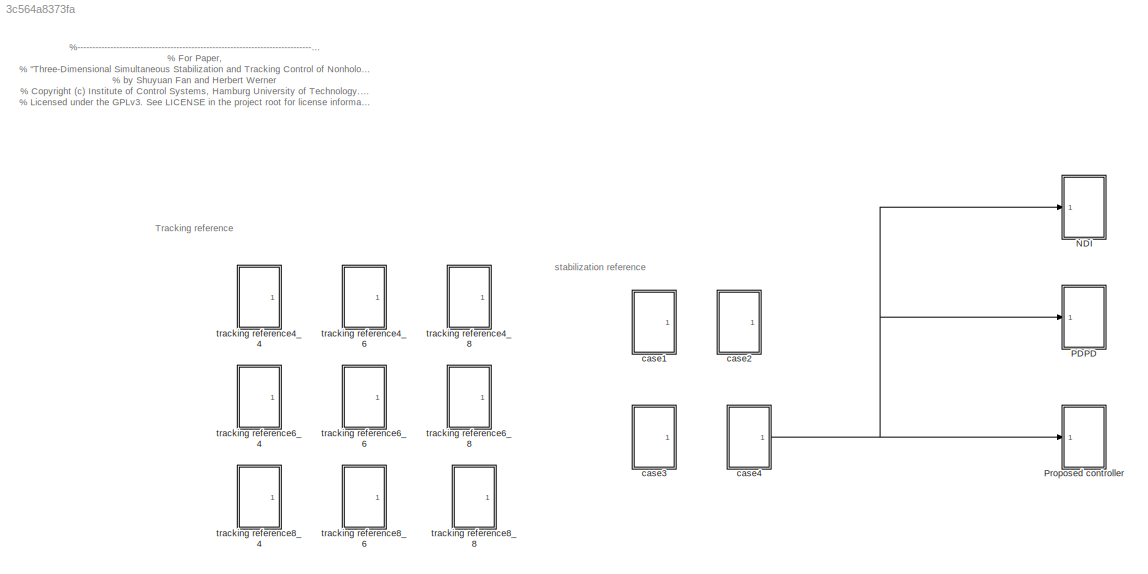
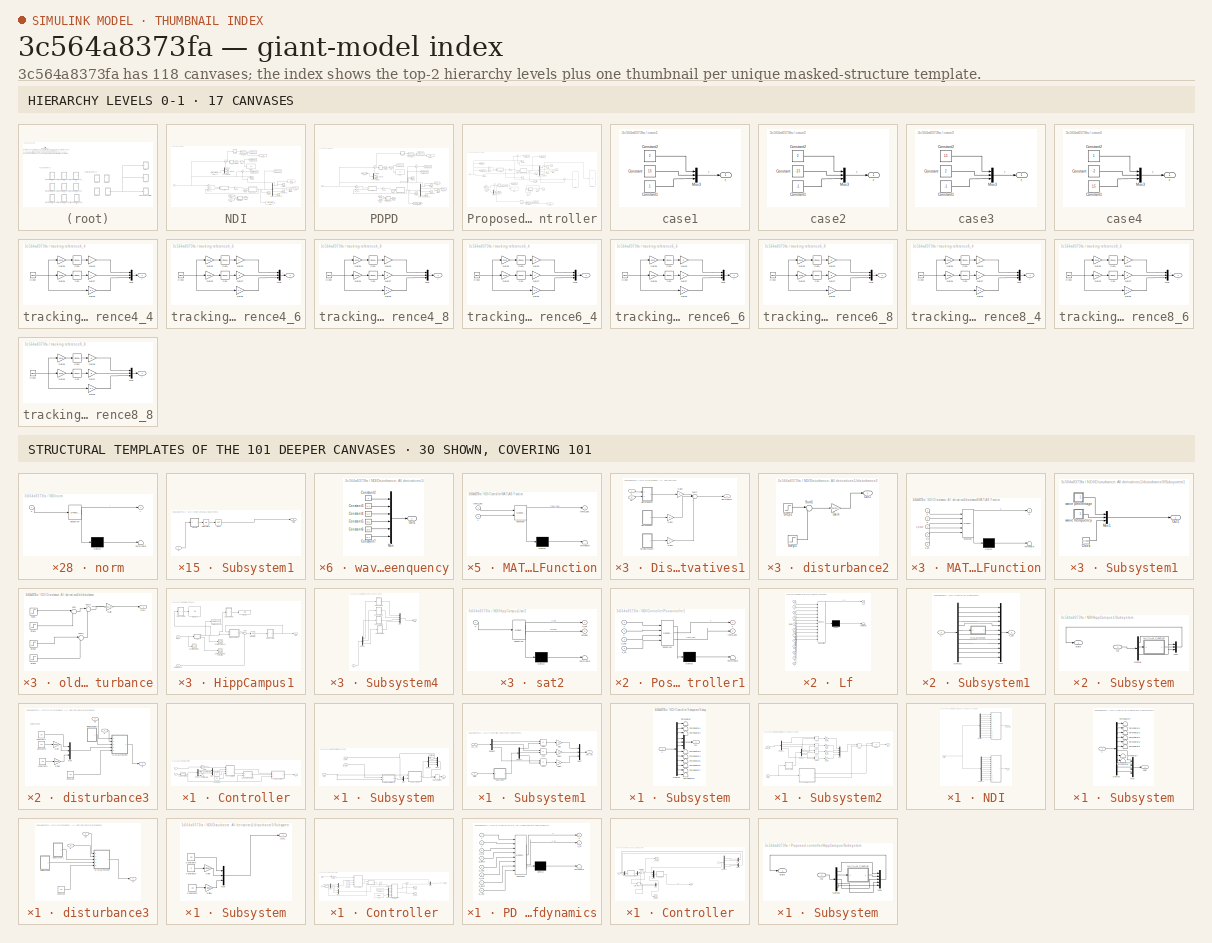
[diagram: thumbnail index - top-2 hierarchy levels (17 canvases) + 30 structural-template representatives of the remaining 101 canvases]
MODEL slx_3c564a8373fa
KIND model
CONFIG AbsTol = auto
CONFIG EnableMultiTasking = off
CONFIG FixedStep = 0.00001
CONFIG MaxStep = 0.1
CONFIG MinStep = 0.00001
CONFIG RelTol = 1e-5
CONFIG SampleTimeConstraint = Unconstrained
CONFIG SolverName = ode45
CONFIG StartTime = 0.0
CONFIG StopTime = 50
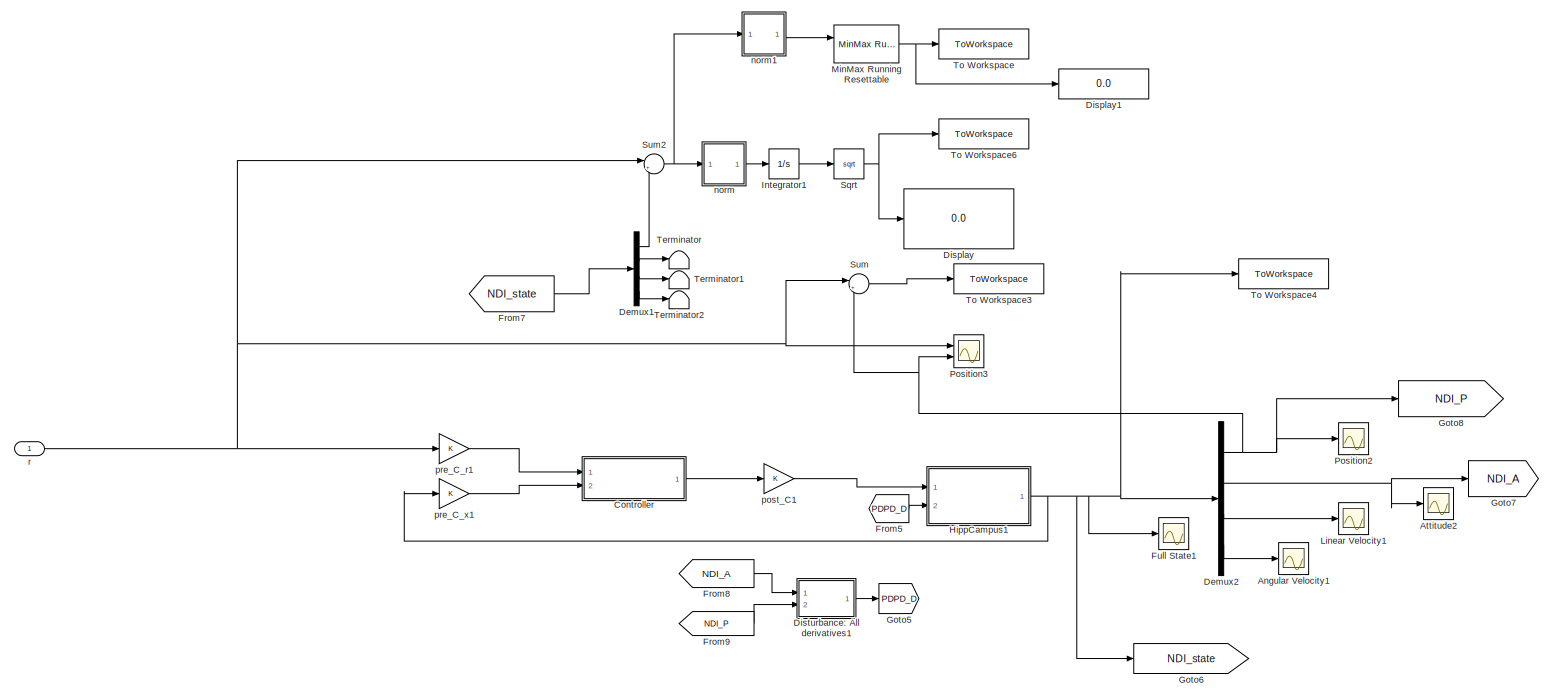
[diagram: NDI - part 1/1, most of the canvas]
BLOCK [SubSystem] NDI
  Ports = [1]
  RequestExecContextInheritance = off
BLOCK [Scope] NDI/Angular Velocity1
  Floating = off
  NumInputPorts = 1
  Ports = [1]
  ScopeSpecificationString = Simulink.scopes.TimeScopeBlockCfg('CurrentConfiguration', extmgr.ConfigurationSet(extmgr.Configuration('Core','General UI',true),extmgr.Configuration('Core','Source UI',true),extmgr.Configuration('Sources','WiredSimulink',true,'DataLoggingVariableName','ScopeData2'),extmgr.Configuration('Visuals','Time Domain',true,'SerializedDisplays',{struct('MinYLimReal','-5.23399','MaxYLimReal','5.89102','YLab...<+1421ch>
BLOCK [Scope] NDI/Attitude2
  Floating = off
  NumInputPorts = 1
  Ports = [1]
  ScopeSpecificationString = Simulink.scopes.TimeScopeBlockCfg('CurrentConfiguration', extmgr.ConfigurationSet(extmgr.Configuration('Core','General UI',true),extmgr.Configuration('Core','Source UI',true),extmgr.Configuration('Sources','WiredSimulink',true,'DataLoggingVariableName','ScopeData3'),extmgr.Configuration('Visuals','Time Domain',true,'SerializedDisplays',{struct('MinYLimReal','-3.92697','MaxYLimReal','3.92693','YLab...<+1443ch>
BLOCK [SubSystem] NDI/Controller
  Ports = [2, 1]
  RequestExecContextInheritance = off
BLOCK [Constant] NDI/Controller/Constant
  Value = 6
BLOCK [Constant] NDI/Controller/Constant1
  Value = 5.4
BLOCK [Demux] NDI/Controller/Demux1
  Outputs = [3 3 3 3]
  Ports = [1, 4]
BLOCK [Gain] NDI/Controller/Gain
  Gain = [ eye(3); zeros(3) ]
  Multiplication = Matrix(K*u) (u vector)
BLOCK [SubSystem] NDI/Controller/MATLAB Function
  ErrorFcn = Stateflow.Translate.translate
  PermitHierarchicalResolution = ExplicitOnly
  Ports = [2, 1]
  RequestExecContextInheritance = off
  SFBlockType = MATLAB Function
  TreatAsAtomicUnit = on
BLOCK [Demux] NDI/Controller/MATLAB Function/ Demux 
  Outputs = 1
  Ports = [1, 1]
BLOCK [S-Function] NDI/Controller/MATLAB Function/ SFunction 
  EnableBusSupport = on
  FunctionName = sf_sfun
  PortCounts = [2 2]
  Ports = [2, 2]
  SFcnIsStateOwnerBlock = off
  SFunctionDeploymentMode = off
  Tag = Stateflow S-Function 13
BLOCK [Terminator] NDI/Controller/MATLAB Function/ Terminator 
BLOCK [Outport] NDI/Controller/MATLAB Function/theta_des
BLOCK [Inport] NDI/Controller/MATLAB Function/theta_des 
BLOCK [Inport] NDI/Controller/MATLAB Function/x
  Port = 2
BLOCK [Mux] NDI/Controller/Mux1
  DisplayOption = bar
  Inputs = 2
  Ports = [2, 1]
BLOCK [SubSystem] NDI/Controller/Pos controller1
  ErrorFcn = Stateflow.Translate.translate
  PermitHierarchicalResolution = ExplicitOnly
  Ports = [4, 2]
  RequestExecContextInheritance = off
  SFBlockType = MATLAB Function
  TreatAsAtomicUnit = on
BLOCK [Demux] NDI/Controller/Pos controller1/ Demux 
  Outputs = 1
  Ports = [1, 1]
BLOCK [S-Function] NDI/Controller/Pos controller1/ SFunction 
  EnableBusSupport = on
  FunctionName = sf_sfun
  PortCounts = [4 3]
  Ports = [4, 3]
  SFcnIsStateOwnerBlock = off
  SFunctionDeploymentMode = off
  Tag = Stateflow S-Function 15
BLOCK [Terminator] NDI/Controller/Pos controller1/ Terminator 
BLOCK [Inport] NDI/Controller/Pos controller1/k_pos
  Port = 3
BLOCK [Inport] NDI/Controller/Pos controller1/k_vel
  Port = 4
BLOCK [Inport] NDI/Controller/Pos controller1/r
BLOCK [Outport] NDI/Controller/Pos controller1/theta_des
  Port = 2
BLOCK [Outport] NDI/Controller/Pos controller1/u
BLOCK [Inport] NDI/Controller/Pos controller1/x
  Port = 2
BLOCK [SubSystem] NDI/Controller/Subsystem
  Ports = [3, 1]
  RequestExecContextInheritance = off
BLOCK [Demux] NDI/Controller/Subsystem/Demux
  Ports = [1, 4]
BLOCK [ManualSwitch] NDI/Controller/Subsystem/Manual Switch
BLOCK [Mux] NDI/Controller/Subsystem/Mux
  DisplayOption = bar
  Inputs = 2
  Ports = [2, 1]
BLOCK [Mux] NDI/Controller/Subsystem/Mux1
  DisplayOption = bar
  Ports = [4, 1]
BLOCK [SubSystem] NDI/Controller/Subsystem/Subsystem1
  Ports = [2, 1]
  RequestExecContextInheritance = off
BLOCK [Sum] NDI/Controller/Subsystem/Subsystem1/Add1
  IconShape = rectangular
  Inputs = +-
  Ports = [2, 1]
BLOCK [Sum] NDI/Controller/Subsystem/Subsystem1/Add2
  IconShape = rectangular
  Inputs = +-
  Ports = [2, 1]
BLOCK [Sum] NDI/Controller/Subsystem/Subsystem1/Add3
  IconShape = rectangular
  Inputs = +-
  Ports = [2, 1]
BLOCK [Demux] NDI/Controller/Subsystem/Subsystem1/Demux1
  Outputs = 3
  Ports = [1, 3]
BLOCK [Demux] NDI/Controller/Subsystem/Subsystem1/Demux2
  Outputs = 3
  Ports = [1, 3]
BLOCK [Gain] NDI/Controller/Subsystem/Subsystem1/Gain
  Gain = 10
BLOCK [Gain] NDI/Controller/Subsystem/Subsystem1/Gain1
  Gain = 10
BLOCK [Gain] NDI/Controller/Subsystem/Subsystem1/Gain2
  Gain = 10
BLOCK [Mux] NDI/Controller/Subsystem/Subsystem1/Mux2
  DisplayOption = bar
  Inputs = 3
  Ports = [3, 1]
BLOCK [SubSystem] NDI/Controller/Subsystem/Subsystem1/Subsystem
  Ports = [1, 1]
  RequestExecContextInheritance = off
BLOCK [Demux] NDI/Controller/Subsystem/Subsystem1/Subsystem/Demux
  Outputs = 12
  Ports = [1, 12]
BLOCK [Mux] NDI/Controller/Subsystem/Subsystem1/Subsystem/Mux
  DisplayOption = bar
  Inputs = 3
  Ports = [3, 1]
BLOCK [Terminator] NDI/Controller/Subsystem/Subsystem1/Subsystem/Terminator
BLOCK [Terminator] NDI/Controller/Subsystem/Subsystem1/Subsystem/Terminator1
BLOCK [Terminator] NDI/Controller/Subsystem/Subsystem1/Subsystem/Terminator2
BLOCK [Terminator] NDI/Controller/Subsystem/Subsystem1/Subsystem/Terminator3
BLOCK [Terminator] NDI/Controller/Subsystem/Subsystem1/Subsystem/Terminator4
BLOCK [Terminator] NDI/Controller/Subsystem/Subsystem1/Subsystem/Terminator5
BLOCK [Terminator] NDI/Controller/Subsystem/Subsystem1/Subsystem/Terminator6
BLOCK [Terminator] NDI/Controller/Subsystem/Subsystem1/Subsystem/Terminator7
BLOCK [Terminator] NDI/Controller/Subsystem/Subsystem1/Subsystem/Terminator8
BLOCK [Outport] NDI/Controller/Subsystem/Subsystem1/Subsystem/rpy
BLOCK [Inport] NDI/Controller/Subsystem/Subsystem1/Subsystem/x
BLOCK [Outport] NDI/Controller/Subsystem/Subsystem1/pqr_ref
BLOCK [Inport] NDI/Controller/Subsystem/Subsystem1/rpy_ref
BLOCK [Inport] NDI/Controller/Subsystem/Subsystem1/state
  Port = 2
BLOCK [SubSystem] NDI/Controller/Subsystem/Subsystem2
  Ports = [2, 1]
  RequestExecContextInheritance = off
BLOCK [Sum] NDI/Controller/Subsystem/Subsystem2/Add
  IconShape = rectangular
  Inputs = +-
  Ports = [2, 1]
BLOCK [Sum] NDI/Controller/Subsystem/Subsystem2/Add1
  IconShape = rectangular
  Inputs = +-
  Ports = [2, 1]
BLOCK [Sum] NDI/Controller/Subsystem/Subsystem2/Add2
  IconShape = rectangular
  Inputs = +-
  Ports = [2, 1]
BLOCK [Sum] NDI/Controller/Subsystem/Subsystem2/Add3
  IconShape = rectangular
  Inputs = +-
  Ports = [2, 1]
BLOCK [Sum] NDI/Controller/Subsystem/Subsystem2/Add4
  IconShape = rectangular
  Inputs = +-
  Ports = [2, 1]
BLOCK [Demux] NDI/Controller/Subsystem/Subsystem2/Demux
  Ports = [1, 4]
BLOCK [Demux] NDI/Controller/Subsystem/Subsystem2/Demux1
  Ports = [1, 4]
BLOCK [Product] NDI/Controller/Subsystem/Subsystem2/Divide
  Inputs = **
  Multiplication = Matrix(*)
  Ports = [2, 1]
BLOCK [Gain] NDI/Controller/Subsystem/Subsystem2/Gain
  Gain = 20
BLOCK [Gain] NDI/Controller/Subsystem/Subsystem2/Gain1
  Gain = 20
BLOCK [Gain] NDI/Controller/Subsystem/Subsystem2/Gain2
  Gain = 20
BLOCK [Gain] NDI/Controller/Subsystem/Subsystem2/Gain3
  Gain = 5
BLOCK [Mux] NDI/Controller/Subsystem/Subsystem2/Mux
  DisplayOption = bar
  Ports = [4, 1]
BLOCK [SubSystem] NDI/Controller/Subsystem/Subsystem2/NDI
  Ports = [1, 2]
  RequestExecContextInheritance = off
BLOCK [Demux] NDI/Controller/Subsystem/Subsystem2/NDI/Demux
  Outputs = 12
  Ports = [1, 12]
BLOCK [Demux] NDI/Controller/Subsystem/Subsystem2/NDI/Demux1
  Outputs = 12
  Ports = [1, 12]
BLOCK [SubSystem] NDI/Controller/Subsystem/Subsystem2/NDI/Lf
  ErrorFcn = Stateflow.Translate.translate
  PermitHierarchicalResolution = ExplicitOnly
  Ports = [12, 1]
  RequestExecContextInheritance = off
  SFBlockType = MATLAB Function
  TreatAsAtomicUnit = on
BLOCK [Demux] NDI/Controller/Subsystem/Subsystem2/NDI/Lf/ Demux 
  Outputs = 1
  Ports = [1, 1]
BLOCK [S-Function] NDI/Controller/Subsystem/Subsystem2/NDI/Lf/ SFunction 
  EnableBusSupport = on
  FunctionName = sf_sfun
  PortCounts = [12 2]
  Ports = [12, 2]
  SFcnIsStateOwnerBlock = off
  SFunctionDeploymentMode = off
  Tag = Stateflow S-Function 21
BLOCK [Terminator] NDI/Controller/Subsystem/Subsystem2/NDI/Lf/ Terminator 
BLOCK [Outport] NDI/Controller/Subsystem/Subsystem2/NDI/Lf/Lf_h
BLOCK [Inport] NDI/Controller/Subsystem/Subsystem2/NDI/Lf/p
  Port = 10
BLOCK [Inport] NDI/Controller/Subsystem/Subsystem2/NDI/Lf/phi
  Port = 4
BLOCK [Inport] NDI/Controller/Subsystem/Subsystem2/NDI/Lf/psi
  Port = 6
BLOCK [Inport] NDI/Controller/Subsystem/Subsystem2/NDI/Lf/q
  Port = 11
BLOCK [Inport] NDI/Controller/Subsystem/Subsystem2/NDI/Lf/r
  Port = 12
BLOCK [Inport] NDI/Controller/Subsystem/Subsystem2/NDI/Lf/theta
  Port = 5
BLOCK [Inport] NDI/Controller/Subsystem/Subsystem2/NDI/Lf/u
  Port = 7
BLOCK [Inport] NDI/Controller/Subsystem/Subsystem2/NDI/Lf/v
  Port = 8
BLOCK [Inport] NDI/Controller/Subsystem/Subsystem2/NDI/Lf/w
  Port = 9
BLOCK [Inport] NDI/Controller/Subsystem/Subsystem2/NDI/Lf/x
BLOCK [Inport] NDI/Controller/Subsystem/Subsystem2/NDI/Lf/y
  Port = 2
BLOCK [Inport] NDI/Controller/Subsystem/Subsystem2/NDI/Lf/z
  Port = 3
BLOCK [Outport] NDI/Controller/Subsystem/Subsystem2/NDI/Lf_h
  Port = 2
BLOCK [SubSystem] NDI/Controller/Subsystem/Subsystem2/NDI/Lg
  ErrorFcn = Stateflow.Translate.translate
  PermitHierarchicalResolution = ExplicitOnly
  Ports = [12, 1]
  RequestExecContextInheritance = off
  SFBlockType = MATLAB Function
  TreatAsAtomicUnit = on
BLOCK [Demux] NDI/Controller/Subsystem/Subsystem2/NDI/Lg/ Demux 
  Outputs = 1
  Ports = [1, 1]
BLOCK [S-Function] NDI/Controller/Subsystem/Subsystem2/NDI/Lg/ SFunction 
  EnableBusSupport = on
  FunctionName = sf_sfun
  PortCounts = [12 2]
  Ports = [12, 2]
  SFcnIsStateOwnerBlock = off
  SFunctionDeploymentMode = off
  Tag = Stateflow S-Function 22
BLOCK [Terminator] NDI/Controller/Subsystem/Subsystem2/NDI/Lg/ Terminator 
BLOCK [Outport] NDI/Controller/Subsystem/Subsystem2/NDI/Lg/Lg_h_inv
BLOCK [Inport] NDI/Controller/Subsystem/Subsystem2/NDI/Lg/p
  Port = 10
BLOCK [Inport] NDI/Controller/Subsystem/Subsystem2/NDI/Lg/phi
  Port = 4
BLOCK [Inport] NDI/Controller/Subsystem/Subsystem2/NDI/Lg/psi
  Port = 6
BLOCK [Inport] NDI/Controller/Subsystem/Subsystem2/NDI/Lg/q
  Port = 11
BLOCK [Inport] NDI/Controller/Subsystem/Subsystem2/NDI/Lg/r
  Port = 12
BLOCK [Inport] NDI/Controller/Subsystem/Subsystem2/NDI/Lg/theta
  Port = 5
BLOCK [Inport] NDI/Controller/Subsystem/Subsystem2/NDI/Lg/u
  Port = 7
BLOCK [Inport] NDI/Controller/Subsystem/Subsystem2/NDI/Lg/v
  Port = 8
BLOCK [Inport] NDI/Controller/Subsystem/Subsystem2/NDI/Lg/w
  Port = 9
BLOCK [Inport] NDI/Controller/Subsystem/Subsystem2/NDI/Lg/x
BLOCK [Inport] NDI/Controller/Subsystem/Subsystem2/NDI/Lg/y
  Port = 2
BLOCK [Inport] NDI/Controller/Subsystem/Subsystem2/NDI/Lg/z
  Port = 3
BLOCK [Outport] NDI/Controller/Subsystem/Subsystem2/NDI/Lg_h_inv
BLOCK [Inport] NDI/Controller/Subsystem/Subsystem2/NDI/state
BLOCK [SubSystem] NDI/Controller/Subsystem/Subsystem2/Subsystem
  Ports = [1, 1]
  RequestExecContextInheritance = off
BLOCK [Demux] NDI/Controller/Subsystem/Subsystem2/Subsystem/Demux
  Outputs = 12
  Ports = [1, 12]
BLOCK [Mux] NDI/Controller/Subsystem/Subsystem2/Subsystem/Mux
  DisplayOption = bar
  Ports = [4, 1]
BLOCK [Terminator] NDI/Controller/Subsystem/Subsystem2/Subsystem/Terminator1
BLOCK [Terminator] NDI/Controller/Subsystem/Subsystem2/Subsystem/Terminator2
BLOCK [Terminator] NDI/Controller/Subsystem/Subsystem2/Subsystem/Terminator3
BLOCK [Terminator] NDI/Controller/Subsystem/Subsystem2/Subsystem/Terminator4
BLOCK [Terminator] NDI/Controller/Subsystem/Subsystem2/Subsystem/Terminator5
BLOCK [Terminator] NDI/Controller/Subsystem/Subsystem2/Subsystem/Terminator6
BLOCK [Terminator] NDI/Controller/Subsystem/Subsystem2/Subsystem/Terminator7
BLOCK [Terminator] NDI/Controller/Subsystem/Subsystem2/Subsystem/Terminator8
BLOCK [Outport] NDI/Controller/Subsystem/Subsystem2/Subsystem/upqr
BLOCK [Inport] NDI/Controller/Subsystem/Subsystem2/Subsystem/x
BLOCK [Inport] NDI/Controller/Subsystem/Subsystem2/state
BLOCK [Outport] NDI/Controller/Subsystem/Subsystem2/tau
BLOCK [Inport] NDI/Controller/Subsystem/Subsystem2/upqr_ref
  Port = 2
BLOCK [Terminator] NDI/Controller/Subsystem/Terminator
BLOCK [Inport] NDI/Controller/Subsystem/rpy_ref
  Port = 2
BLOCK [Inport] NDI/Controller/Subsystem/state
  Port = 3
BLOCK [Outport] NDI/Controller/Subsystem/tau
BLOCK [Inport] NDI/Controller/Subsystem/u_ref
BLOCK [SubSystem] NDI/Controller/Subsystem1
  Ports = [1, 1]
  RequestExecContextInheritance = off
BLOCK [Demux] NDI/Controller/Subsystem1/Demux1
  Outputs = 12
  Ports = [1, 12]
BLOCK [SubSystem] NDI/Controller/Subsystem1/MATLAB Function
  ErrorFcn = Stateflow.Translate.translate
  PermitHierarchicalResolution = ExplicitOnly
  Ports = [1, 1]
  RequestExecContextInheritance = off
  SFBlockType = MATLAB Function
  TreatAsAtomicUnit = on
BLOCK [Demux] NDI/Controller/Subsystem1/MATLAB Function/ Demux 
  Outputs = 1
  Ports = [1, 1]
BLOCK [S-Function] NDI/Controller/Subsystem1/MATLAB Function/ SFunction 
  EnableBusSupport = on
  FunctionName = sf_sfun
  PortCounts = [1 2]
  Ports = [1, 2]
  SFcnIsStateOwnerBlock = off
  SFunctionDeploymentMode = off
  Tag = Stateflow S-Function 23
BLOCK [Terminator] NDI/Controller/Subsystem1/MATLAB Function/ Terminator 
BLOCK [Inport] NDI/Controller/Subsystem1/MATLAB Function/u
BLOCK [Outport] NDI/Controller/Subsystem1/MATLAB Function/y
BLOCK [Mux] NDI/Controller/Subsystem1/Mux1
  DisplayOption = bar
  Inputs = 12
  Ports = [12, 1]
BLOCK [Inport] NDI/Controller/Subsystem1/x
BLOCK [Outport] NDI/Controller/Subsystem1/x_2pi
BLOCK [Terminator] NDI/Controller/Terminator1
BLOCK [Terminator] NDI/Controller/Terminator4
BLOCK [Inport] NDI/Controller/r
BLOCK [Outport] NDI/Controller/u
BLOCK [Inport] NDI/Controller/x
  Port = 2
BLOCK [Demux] NDI/Demux1
  Outputs = [3 3 3 3]
  Ports = [1, 4]
BLOCK [Demux] NDI/Demux2
  Outputs = [3 3 3 3]
  Ports = [1, 4]
BLOCK [Display] NDI/Display
  Decimation = 1
  Ports = [1]
BLOCK [Display] NDI/Display1
  Decimation = 1
  Ports = [1]
BLOCK [SubSystem] NDI/Disturbance: All derivatives1
  Ports = [2, 1]
  RequestExecContextInheritance = off
BLOCK [Gain] NDI/Disturbance: All derivatives1/Gain1
  Gain = 0
  Multiplication = Matrix(K*u)
BLOCK [Gain] NDI/Disturbance: All derivatives1/Gain2
  Gain = 0
  Multiplication = Matrix(K*u)
BLOCK [Gain] NDI/Disturbance: All derivatives1/Gain3
  Gain = 0
  Multiplication = Matrix(K*u)
BLOCK [Sum] NDI/Disturbance: All derivatives1/Sum2
  Inputs = |+++
  Ports = [3, 1]
BLOCK [Inport] NDI/Disturbance: All derivatives1/a
BLOCK [Inport] NDI/Disturbance: All derivatives1/a1
  Port = 2
BLOCK [Outport] NDI/Disturbance: All derivatives1/disturbance
BLOCK [SubSystem] NDI/Disturbance: All derivatives1/disturbance2
  Ports = [0, 1]
  RequestExecContextInheritance = off
BLOCK [Gain] NDI/Disturbance: All derivatives1/disturbance2/Gain
  Gain = [zeros(6,1);ones(6,1)]
  Multiplication = Matrix(K*u)
BLOCK [Outport] NDI/Disturbance: All derivatives1/disturbance2/Out1
BLOCK [Step] NDI/Disturbance: All derivatives1/disturbance2/Step2
  After = 0.5
  SampleTime = 0
  Time = 50
BLOCK [Step] NDI/Disturbance: All derivatives1/disturbance2/Step3
  After = -0.5
  SampleTime = 0
  Time = 55
BLOCK [Sum] NDI/Disturbance: All derivatives1/disturbance2/Sum1
  Inputs = |++
  Ports = [2, 1]
BLOCK [SubSystem] NDI/Disturbance: All derivatives1/disturbance3
  Ports = [2, 1]
  RequestExecContextInheritance = off
BLOCK [Constant] NDI/Disturbance: All derivatives1/disturbance3/Constant
  Value = 10
BLOCK [SubSystem] NDI/Disturbance: All derivatives1/disturbance3/MATLAB Function
  ErrorFcn = Stateflow.Translate.translate
  PermitHierarchicalResolution = ExplicitOnly
  Ports = [5, 1]
  RequestExecContextInheritance = off
  SFBlockType = MATLAB Function
  TreatAsAtomicUnit = on
BLOCK [Demux] NDI/Disturbance: All derivatives1/disturbance3/MATLAB Function/ Demux 
  Outputs = 1
  Ports = [1, 1]
BLOCK [S-Function] NDI/Disturbance: All derivatives1/disturbance3/MATLAB Function/ SFunction 
  EnableBusSupport = on
  FunctionName = sf_sfun
  PortCounts = [5 2]
  Ports = [5, 2]
  SFcnIsStateOwnerBlock = off
  SFunctionDeploymentMode = off
  Tag = Stateflow S-Function 16
BLOCK [Terminator] NDI/Disturbance: All derivatives1/disturbance3/MATLAB Function/ Terminator 
BLOCK [Inport] NDI/Disturbance: All derivatives1/disturbance3/MATLAB Function/a
  Port = 2
BLOCK [Outport] NDI/Disturbance: All derivatives1/disturbance3/MATLAB Function/d
BLOCK [Inport] NDI/Disturbance: All derivatives1/disturbance3/MATLAB Function/p
BLOCK [Inport] NDI/Disturbance: All derivatives1/disturbance3/MATLAB Function/u_c
  Port = 4
BLOCK [Inport] NDI/Disturbance: All derivatives1/disturbance3/MATLAB Function/u_un
  Port = 5
BLOCK [Inport] NDI/Disturbance: All derivatives1/disturbance3/MATLAB Function/u_wave
  Port = 3
BLOCK [SubSystem] NDI/Disturbance: All derivatives1/disturbance3/Subsystem
  Ports = [0, 1]
  RequestExecContextInheritance = off
BLOCK [Constant] NDI/Disturbance: All derivatives1/disturbance3/Subsystem/Constant2
  Value = 5
BLOCK [Constant] NDI/Disturbance: All derivatives1/disturbance3/Subsystem/Constant3
  Value = 30
BLOCK [Constant] NDI/Disturbance: All derivatives1/disturbance3/Subsystem/Constant4
  Value = 20
BLOCK [Gain] NDI/Disturbance: All derivatives1/disturbance3/Subsystem/Gain
  Gain = pi/180
BLOCK [Gain] NDI/Disturbance: All derivatives1/disturbance3/Subsystem/Gain1
  Gain = pi/180
BLOCK [Mux] NDI/Disturbance: All derivatives1/disturbance3/Subsystem/Mux
  DisplayOption = bar
  Inputs = 3
  Ports = [3, 1]
BLOCK [Outport] NDI/Disturbance: All derivatives1/disturbance3/Subsystem/Out1
BLOCK [SubSystem] NDI/Disturbance: All derivatives1/disturbance3/Subsystem1
  Ports = [0, 1]
  RequestExecContextInheritance = off
BLOCK [Clock] NDI/Disturbance: All derivatives1/disturbance3/Subsystem1/Clock
BLOCK [Mux] NDI/Disturbance: All derivatives1/disturbance3/Subsystem1/Mux1
  DisplayOption = bar
  Inputs = 3
  Ports = [3, 1]
BLOCK [Outport] NDI/Disturbance: All derivatives1/disturbance3/Subsystem1/Out1
BLOCK [SubSystem] NDI/Disturbance: All derivatives1/disturbance3/Subsystem1/wave frenquency
  Ports = [0, 1]
  RequestExecContextInheritance = off
BLOCK [Constant] NDI/Disturbance: All derivatives1/disturbance3/Subsystem1/wave frenquency/Constant2
BLOCK [Constant] NDI/Disturbance: All derivatives1/disturbance3/Subsystem1/wave frenquency/Constant3
  Value = 1.1
BLOCK [Constant] NDI/Disturbance: All derivatives1/disturbance3/Subsystem1/wave frenquency/Constant4
  Value = 1.2
BLOCK [Constant] NDI/Disturbance: All derivatives1/disturbance3/Subsystem1/wave frenquency/Constant5
  Value = 0.5
BLOCK [Constant] NDI/Disturbance: All derivatives1/disturbance3/Subsystem1/wave frenquency/Constant6
  Value = 0.6
BLOCK [Constant] NDI/Disturbance: All derivatives1/disturbance3/Subsystem1/wave frenquency/Constant7
  Value = 0.7
BLOCK [Mux] NDI/Disturbance: All derivatives1/disturbance3/Subsystem1/wave frenquency/Mux
  DisplayOption = bar
  Inputs = 6
  Ports = [6, 1]
BLOCK [Outport] NDI/Disturbance: All derivatives1/disturbance3/Subsystem1/wave frenquency/Out1
BLOCK [SubSystem] NDI/Disturbance: All derivatives1/disturbance3/Subsystem1/wave percentage
  Ports = [0, 1]
  RequestExecContextInheritance = off
BLOCK [Constant] NDI/Disturbance: All derivatives1/disturbance3/Subsystem1/wave percentage/Constant2
  Value = 0
BLOCK [Constant] NDI/Disturbance: All derivatives1/disturbance3/Subsystem1/wave percentage/Constant3
  Value = 0
BLOCK [Constant] NDI/Disturbance: All derivatives1/disturbance3/Subsystem1/wave percentage/Constant4
  Value = 0
BLOCK [Constant] NDI/Disturbance: All derivatives1/disturbance3/Subsystem1/wave percentage/Constant5
  Value = 0
BLOCK [Constant] NDI/Disturbance: All derivatives1/disturbance3/Subsystem1/wave percentage/Constant6
  Value = 0
BLOCK [Constant] NDI/Disturbance: All derivatives1/disturbance3/Subsystem1/wave percentage/Constant7
  Value = 0
BLOCK [Mux] NDI/Disturbance: All derivatives1/disturbance3/Subsystem1/wave percentage/Mux
  DisplayOption = bar
  Inputs = 6
  Ports = [6, 1]
BLOCK [Outport] NDI/Disturbance: All derivatives1/disturbance3/Subsystem1/wave percentage/Out1
BLOCK [Inport] NDI/Disturbance: All derivatives1/disturbance3/a
BLOCK [Inport] NDI/Disturbance: All derivatives1/disturbance3/a1
  Port = 2
BLOCK [Outport] NDI/Disturbance: All derivatives1/disturbance3/d
BLOCK [SubSystem] NDI/Disturbance: All derivatives1/old disturbance
  Ports = [0, 1]
  RequestExecContextInheritance = off
BLOCK [Gain] NDI/Disturbance: All derivatives1/old disturbance/Gain
  Gain = ones(12,1)
  Multiplication = Matrix(K*u)
BLOCK [Outport] NDI/Disturbance: All derivatives1/old disturbance/Out1
BLOCK [Step] NDI/Disturbance: All derivatives1/old disturbance/Step
  After = 0.5
  SampleTime = 0
  Time = 50
BLOCK [Step] NDI/Disturbance: All derivatives1/old disturbance/Step1
  After = -0.5
  SampleTime = 0
  Time = 55
BLOCK [Step] NDI/Disturbance: All derivatives1/old disturbance/Step2
  After = 0.5
  SampleTime = 0
  Time = 100
BLOCK [Step] NDI/Disturbance: All derivatives1/old disturbance/Step3
  After = -0.5
  SampleTime = 0
  Time = 105
BLOCK [Sum] NDI/Disturbance: All derivatives1/old disturbance/Sum
  Inputs = |++
  Ports = [2, 1]
BLOCK [Sum] NDI/Disturbance: All derivatives1/old disturbance/Sum2
  Inputs = |++
  Ports = [2, 1]
BLOCK [Sum] NDI/Disturbance: All derivatives1/old disturbance/Sum3
  Inputs = |++
  Ports = [2, 1]
BLOCK [From] NDI/From5
  GotoTag = PDPD_D
BLOCK [From] NDI/From7
  GotoTag = NDI_state
BLOCK [From] NDI/From8
  GotoTag = NDI_A
BLOCK [From] NDI/From9
  GotoTag = NDI_P
BLOCK [Scope] NDI/Full State1
  Floating = off
  NumInputPorts = 1
  Ports = [1]
  ScopeSpecificationString = Simulink.scopes.TimeScopeBlockCfg('CurrentConfiguration', extmgr.ConfigurationSet(extmgr.Configuration('Core','General UI',true),extmgr.Configuration('Core','Source UI',true),extmgr.Configuration('Sources','WiredSimulink',true,'DataLoggingVariableName','ScopeData4'),extmgr.Configuration('Visuals','Time Domain',true,'SerializedDisplays',{struct('MinYLimReal','-4.84264','MaxYLimReal','4.40087','YLab...<+1862ch>
BLOCK [Goto] NDI/Goto5
  GotoTag = PDPD_D
BLOCK [Goto] NDI/Goto6
  GotoTag = NDI_state
BLOCK [Goto] NDI/Goto7
  GotoTag = NDI_A
BLOCK [Goto] NDI/Goto8
  GotoTag = NDI_P
BLOCK [SubSystem] NDI/HippCampus1
  Ports = [2, 1]
  RequestExecContextInheritance = off
BLOCK [Scope] NDI/HippCampus1/Controls: Angular Velocities
  Floating = off
  NumInputPorts = 1
  Ports = [1]
  ScopeSpecificationString = Simulink.scopes.TimeScopeBlockCfg('CurrentConfiguration', extmgr.ConfigurationSet(extmgr.Configuration('Core','General UI',true),extmgr.Configuration('Core','Source UI',true),extmgr.Configuration('Sources','WiredSimulink',true,'DataLoggingVariableName','ScopeData1'),extmgr.Configuration('Visuals','Time Domain',true,'SerializedDisplays',{struct('MinYLimReal','-3.75','MaxYLimReal','3.75','YLabelReal...<+1560ch>  <repeated x3 — deduplicated; at blocks: Controls: Angular Velocities>
BLOCK [Scope] NDI/HippCampus1/Controls: Rotors1
  Floating = off
  NumInputPorts = 1
  Ports = [1]
  ScopeSpecificationString = Simulink.scopes.TimeScopeBlockCfg('CurrentConfiguration', extmgr.ConfigurationSet(extmgr.Configuration('Core','General UI',true),extmgr.Configuration('Core','Source UI',true),extmgr.Configuration('Sources','WiredSimulink',true,'DataLoggingVariableName','ScopeData1'),extmgr.Configuration('Visuals','Time Domain',true,'SerializedDisplays',{struct('MinYLimReal','-854.05349','MaxYLimReal','132.41942','...<+1599ch>
BLOCK [Scope] NDI/HippCampus1/Controls: Torques
  Floating = off
  NumInputPorts = 1
  Ports = [1]
  ScopeSpecificationString = Simulink.scopes.TimeScopeBlockCfg('CurrentConfiguration', extmgr.ConfigurationSet(extmgr.Configuration('Core','General UI',true),extmgr.Configuration('Core','Source UI',true),extmgr.Configuration('Sources','WiredSimulink',true,'DataLoggingVariableName','ScopeData1'),extmgr.Configuration('Visuals','Time Domain',true,'SerializedDisplays',{struct('MinYLimReal','-2.44363','MaxYLimReal','13.60485','YLa...<+1556ch>  <repeated x3 — deduplicated; at blocks: Controls: Torques>
BLOCK [Display] NDI/HippCampus1/Display
  Decimation = 1
  Ports = [1]
BLOCK [Display] NDI/HippCampus1/Display1
  Decimation = 1
  Ports = [1]
BLOCK [SubSystem] NDI/HippCampus1/HippoCampus
  ErrorFcn = Stateflow.Translate.translate
  PermitHierarchicalResolution = ExplicitOnly
  Ports = [2, 1]
  RequestExecContextInheritance = off
  SFBlockType = MATLAB Function
  TreatAsAtomicUnit = on
BLOCK [Demux] NDI/HippCampus1/HippoCampus/ Demux 
  Outputs = 1
  Ports = [1, 1]
BLOCK [S-Function] NDI/HippCampus1/HippoCampus/ SFunction 
  EnableBusSupport = on
  FunctionName = sf_sfun
  PortCounts = [2 2]
  Ports = [2, 2]
  SFcnIsStateOwnerBlock = off
  SFunctionDeploymentMode = off
  Tag = Stateflow S-Function 17
BLOCK [Terminator] NDI/HippCampus1/HippoCampus/ Terminator 
BLOCK [Outport] NDI/HippCampus1/HippoCampus/dx
BLOCK [Inport] NDI/HippCampus1/HippoCampus/in
  Port = 2
BLOCK [Inport] NDI/HippCampus1/HippoCampus/x
BLOCK [Integrator] NDI/HippCampus1/Integrator
  InitialCondition = [0; 0; 0; 0;0;0;zeros(6,1)]
  NameLocation = top
  Ports = [1, 1]
BLOCK [SubSystem] NDI/HippCampus1/Subsystem
  Ports = [1, 1]
  RequestExecContextInheritance = off
BLOCK [Demux] NDI/HippCampus1/Subsystem/Demux
  Outputs = [5 1 6]
  Ports = [1, 3]
BLOCK [Inport] NDI/HippCampus1/Subsystem/In1
BLOCK [SubSystem] NDI/HippCampus1/Subsystem/MATLAB Function
  ErrorFcn = Stateflow.Translate.translate
  PermitHierarchicalResolution = ExplicitOnly
  Ports = [1, 1]
  RequestExecContextInheritance = off
  SFBlockType = MATLAB Function
  TreatAsAtomicUnit = on
BLOCK [Demux] NDI/HippCampus1/Subsystem/MATLAB Function/ Demux 
  Outputs = 1
  Ports = [1, 1]
BLOCK [S-Function] NDI/HippCampus1/Subsystem/MATLAB Function/ SFunction 
  EnableBusSupport = on
  FunctionName = sf_sfun
  PortCounts = [1 2]
  Ports = [1, 2]
  SFcnIsStateOwnerBlock = off
  SFunctionDeploymentMode = off
  Tag = Stateflow S-Function 18
BLOCK [Terminator] NDI/HippCampus1/Subsystem/MATLAB Function/ Terminator 
BLOCK [Inport] NDI/HippCampus1/Subsystem/MATLAB Function/u
BLOCK [Outport] NDI/HippCampus1/Subsystem/MATLAB Function/y
BLOCK [Mux] NDI/HippCampus1/Subsystem/Mux
  DisplayOption = bar
  Inputs = 3
  Ports = [3, 1]
BLOCK [Outport] NDI/HippCampus1/Subsystem/state
BLOCK [SubSystem] NDI/HippCampus1/Subsystem1
  Ports = [1, 1]
  RequestExecContextInheritance = off
BLOCK [Integrator] NDI/HippCampus1/Subsystem1/Integrator2
  Ports = [1, 1]
BLOCK [Outport] NDI/HippCampus1/Subsystem1/Out1
BLOCK [Sqrt] NDI/HippCampus1/Subsystem1/Sqrt1
BLOCK [SubSystem] NDI/HippCampus1/Subsystem1/norm1
  ErrorFcn = Stateflow.Translate.translate
  PermitHierarchicalResolution = ExplicitOnly
  Ports = [1, 1]
  RequestExecContextInheritance = off
  SFBlockType = MATLAB Function
  TreatAsAtomicUnit = on
BLOCK [Demux] NDI/HippCampus1/Subsystem1/norm1/ Demux 
  Outputs = 1
  Ports = [1, 1]
BLOCK [S-Function] NDI/HippCampus1/Subsystem1/norm1/ SFunction 
  EnableBusSupport = on
  FunctionName = sf_sfun
  PortCounts = [1 2]
  Ports = [1, 2]
  SFcnIsStateOwnerBlock = off
  SFunctionDeploymentMode = off
  Tag = Stateflow S-Function 39
BLOCK [Terminator] NDI/HippCampus1/Subsystem1/norm1/ Terminator 
BLOCK [Inport] NDI/HippCampus1/Subsystem1/norm1/u
BLOCK [Outport] NDI/HippCampus1/Subsystem1/norm1/y
BLOCK [Inport] NDI/HippCampus1/Subsystem1/u
BLOCK [SubSystem] NDI/HippCampus1/Subsystem4
  Ports = [1, 1]
  RequestExecContextInheritance = off
BLOCK [Demux] NDI/HippCampus1/Subsystem4/Demux
  Ports = [1, 4]
BLOCK [Mux] NDI/HippCampus1/Subsystem4/Mux
  DisplayOption = bar
  Ports = [4, 1]
BLOCK [Outport] NDI/HippCampus1/Subsystem4/Out1
BLOCK [SubSystem] NDI/HippCampus1/Subsystem4/Subsystem
  Ports = [1, 1]
  RequestExecContextInheritance = off
BLOCK [Integrator] NDI/HippCampus1/Subsystem4/Subsystem/Integrator2
  Ports = [1, 1]
BLOCK [Outport] NDI/HippCampus1/Subsystem4/Subsystem/Out1
BLOCK [Sqrt] NDI/HippCampus1/Subsystem4/Subsystem/Sqrt1
BLOCK [SubSystem] NDI/HippCampus1/Subsystem4/Subsystem/norm1
  ErrorFcn = Stateflow.Translate.translate
  PermitHierarchicalResolution = ExplicitOnly
  Ports = [1, 1]
  RequestExecContextInheritance = off
  SFBlockType = MATLAB Function
  TreatAsAtomicUnit = on
BLOCK [Demux] NDI/HippCampus1/Subsystem4/Subsystem/norm1/ Demux 
  Outputs = 1
  Ports = [1, 1]
BLOCK [S-Function] NDI/HippCampus1/Subsystem4/Subsystem/norm1/ SFunction 
  EnableBusSupport = on
  FunctionName = sf_sfun
  PortCounts = [1 2]
  Ports = [1, 2]
  SFcnIsStateOwnerBlock = off
  SFunctionDeploymentMode = off
  Tag = Stateflow S-Function 31
BLOCK [Terminator] NDI/HippCampus1/Subsystem4/Subsystem/norm1/ Terminator 
BLOCK [Inport] NDI/HippCampus1/Subsystem4/Subsystem/norm1/u
BLOCK [Outport] NDI/HippCampus1/Subsystem4/Subsystem/norm1/y
BLOCK [Inport] NDI/HippCampus1/Subsystem4/Subsystem/u
BLOCK [SubSystem] NDI/HippCampus1/Subsystem4/Subsystem1
  Ports = [1, 1]
  RequestExecContextInheritance = off
BLOCK [Integrator] NDI/HippCampus1/Subsystem4/Subsystem1/Integrator2
  Ports = [1, 1]
BLOCK [Outport] NDI/HippCampus1/Subsystem4/Subsystem1/Out1
BLOCK [Sqrt] NDI/HippCampus1/Subsystem4/Subsystem1/Sqrt1
BLOCK [SubSystem] NDI/HippCampus1/Subsystem4/Subsystem1/norm1
  ErrorFcn = Stateflow.Translate.translate
  PermitHierarchicalResolution = ExplicitOnly
  Ports = [1, 1]
  RequestExecContextInheritance = off
  SFBlockType = MATLAB Function
  TreatAsAtomicUnit = on
BLOCK [Demux] NDI/HippCampus1/Subsystem4/Subsystem1/norm1/ Demux 
  Outputs = 1
  Ports = [1, 1]
BLOCK [S-Function] NDI/HippCampus1/Subsystem4/Subsystem1/norm1/ SFunction 
  EnableBusSupport = on
  FunctionName = sf_sfun
  PortCounts = [1 2]
  Ports = [1, 2]
  SFcnIsStateOwnerBlock = off
  SFunctionDeploymentMode = off
  Tag = Stateflow S-Function 32
BLOCK [Terminator] NDI/HippCampus1/Subsystem4/Subsystem1/norm1/ Terminator 
BLOCK [Inport] NDI/HippCampus1/Subsystem4/Subsystem1/norm1/u
BLOCK [Outport] NDI/HippCampus1/Subsystem4/Subsystem1/norm1/y
BLOCK [Inport] NDI/HippCampus1/Subsystem4/Subsystem1/u
BLOCK [SubSystem] NDI/HippCampus1/Subsystem4/Subsystem2
  Ports = [1, 1]
  RequestExecContextInheritance = off
BLOCK [Integrator] NDI/HippCampus1/Subsystem4/Subsystem2/Integrator2
  Ports = [1, 1]
BLOCK [Outport] NDI/HippCampus1/Subsystem4/Subsystem2/Out1
BLOCK [Sqrt] NDI/HippCampus1/Subsystem4/Subsystem2/Sqrt1
BLOCK [SubSystem] NDI/HippCampus1/Subsystem4/Subsystem2/norm1
  ErrorFcn = Stateflow.Translate.translate
  PermitHierarchicalResolution = ExplicitOnly
  Ports = [1, 1]
  RequestExecContextInheritance = off
  SFBlockType = MATLAB Function
  TreatAsAtomicUnit = on
BLOCK [Demux] NDI/HippCampus1/Subsystem4/Subsystem2/norm1/ Demux 
  Outputs = 1
  Ports = [1, 1]
BLOCK [S-Function] NDI/HippCampus1/Subsystem4/Subsystem2/norm1/ SFunction 
  EnableBusSupport = on
  FunctionName = sf_sfun
  PortCounts = [1 2]
  Ports = [1, 2]
  SFcnIsStateOwnerBlock = off
  SFunctionDeploymentMode = off
  Tag = Stateflow S-Function 33
BLOCK [Terminator] NDI/HippCampus1/Subsystem4/Subsystem2/norm1/ Terminator 
BLOCK [Inport] NDI/HippCampus1/Subsystem4/Subsystem2/norm1/u
BLOCK [Outport] NDI/HippCampus1/Subsystem4/Subsystem2/norm1/y
BLOCK [Inport] NDI/HippCampus1/Subsystem4/Subsystem2/u
BLOCK [SubSystem] NDI/HippCampus1/Subsystem4/Subsystem3
  Ports = [1, 1]
  RequestExecContextInheritance = off
BLOCK [Integrator] NDI/HippCampus1/Subsystem4/Subsystem3/Integrator2
  Ports = [1, 1]
BLOCK [Outport] NDI/HippCampus1/Subsystem4/Subsystem3/Out1
BLOCK [Sqrt] NDI/HippCampus1/Subsystem4/Subsystem3/Sqrt1
BLOCK [SubSystem] NDI/HippCampus1/Subsystem4/Subsystem3/norm1
  ErrorFcn = Stateflow.Translate.translate
  PermitHierarchicalResolution = ExplicitOnly
  Ports = [1, 1]
  RequestExecContextInheritance = off
  SFBlockType = MATLAB Function
  TreatAsAtomicUnit = on
BLOCK [Demux] NDI/HippCampus1/Subsystem4/Subsystem3/norm1/ Demux 
  Outputs = 1
  Ports = [1, 1]
BLOCK [S-Function] NDI/HippCampus1/Subsystem4/Subsystem3/norm1/ SFunction 
  EnableBusSupport = on
  FunctionName = sf_sfun
  PortCounts = [1 2]
  Ports = [1, 2]
  SFcnIsStateOwnerBlock = off
  SFunctionDeploymentMode = off
  Tag = Stateflow S-Function 34
BLOCK [Terminator] NDI/HippCampus1/Subsystem4/Subsystem3/norm1/ Terminator 
BLOCK [Inport] NDI/HippCampus1/Subsystem4/Subsystem3/norm1/u
BLOCK [Outport] NDI/HippCampus1/Subsystem4/Subsystem3/norm1/y
BLOCK [Inport] NDI/HippCampus1/Subsystem4/Subsystem3/u
BLOCK [Inport] NDI/HippCampus1/Subsystem4/u
BLOCK [Sum] NDI/HippCampus1/Sum
  Inputs = |++
  Ports = [2, 1]
BLOCK [ToWorkspace] NDI/HippCampus1/To Workspace8
  FixptAsFi = on
  MaxDataPoints = inf
  Ports = [1]
  SampleTime = -1
  SaveFormat = Timeseries
  VariableName = u_NDI
BLOCK [Inport] NDI/HippCampus1/disturbance
  NameLocation = top
  Port = 2
BLOCK [Inport] NDI/HippCampus1/input
BLOCK [SubSystem] NDI/HippCampus1/sat2
  ErrorFcn = Stateflow.Translate.translate
  PermitHierarchicalResolution = ExplicitOnly
  Ports = [1, 2]
  RequestExecContextInheritance = off
  SFBlockType = MATLAB Function
  TreatAsAtomicUnit = on
BLOCK [Demux] NDI/HippCampus1/sat2/ Demux 
  Outputs = 1
  Ports = [1, 1]
BLOCK [S-Function] NDI/HippCampus1/sat2/ SFunction 
  EnableBusSupport = on
  FunctionName = sf_sfun
  PortCounts = [1 3]
  Ports = [1, 3]
  SFcnIsStateOwnerBlock = off
  SFunctionDeploymentMode = off
  Tag = Stateflow S-Function 19
BLOCK [Terminator] NDI/HippCampus1/sat2/ Terminator 
BLOCK [Outport] NDI/HippCampus1/sat2/omega
  Port = 2
BLOCK [Inport] NDI/HippCampus1/sat2/u
BLOCK [Outport] NDI/HippCampus1/sat2/u_sat
BLOCK [Outport] NDI/HippCampus1/state
BLOCK [Integrator] NDI/Integrator1
  Ports = [1, 1]
BLOCK [Scope] NDI/Linear Velocity1
  Floating = off
  NumInputPorts = 1
  Ports = [1]
  ScopeSpecificationString = Simulink.scopes.TimeScopeBlockCfg('CurrentConfiguration', extmgr.ConfigurationSet(extmgr.Configuration('Core','General UI',true),extmgr.Configuration('Core','Source UI',true),extmgr.Configuration('Sources','WiredSimulink',true,'DataLoggingVariableName','ScopeData5'),extmgr.Configuration('Visuals','Time Domain',true,'SerializedDisplays',{struct('MinYLimReal','-0.38735','MaxYLimReal','1.5595','YLabe...<+1439ch>
BLOCK [Reference] NDI/MinMax Running Resettable  REF=simulink/Math
Operations/MinMax
Running
Resettable
  Ports = [2, 1]
  SourceBlock = simulink/Math\nOperations/MinMax\nRunning\nResettable
  SourceProductBaseCode = SL
  SourceType = MinMax Running Resettable
BLOCK [Scope] NDI/Position2
  Floating = off
  NumInputPorts = 1
  Ports = [1]
  ScopeSpecificationString = Simulink.scopes.TimeScopeBlockCfg('CurrentConfiguration', extmgr.ConfigurationSet(extmgr.Configuration('Core','General UI',true),extmgr.Configuration('Core','Source UI',true),extmgr.Configuration('Sources','WiredSimulink',true,'DataLoggingVariableName','ScopeData6'),extmgr.Configuration('Visuals','Time Domain',true,'SerializedDisplays',{struct('MinYLimReal','-10.87452','MaxYLimReal','17.86568','YL...<+1452ch>
BLOCK [Scope] NDI/Position3
  Floating = off
  NumInputPorts = 2
  Ports = [2]
  ScopeSpecificationString = Simulink.scopes.TimeScopeBlockCfg('CurrentConfiguration', extmgr.ConfigurationSet(extmgr.Configuration('Core','General UI',true),extmgr.Configuration('Core','Source UI',true),extmgr.Configuration('Sources','WiredSimulink',true,'DataLoggingVariableName','ScopeData7'),extmgr.Configuration('Visuals','Time Domain',true,'SerializedDisplays',{struct('MinYLimReal','-11.25','MaxYLimReal','21.25','YLabelRe...<+1452ch>
BLOCK [Sqrt] NDI/Sqrt
BLOCK [Sum] NDI/Sum
  Inputs = |+-
  Ports = [2, 1]
BLOCK [Sum] NDI/Sum2
  Inputs = |+-
  Ports = [2, 1]
BLOCK [Terminator] NDI/Terminator
BLOCK [Terminator] NDI/Terminator1
BLOCK [Terminator] NDI/Terminator2
BLOCK [ToWorkspace] NDI/To Workspace
  FixptAsFi = on
  MaxDataPoints = inf
  Ports = [1]
  SampleTime = -1
  SaveFormat = Timeseries
  VariableName = NDI_MAX_e
BLOCK [ToWorkspace] NDI/To Workspace3
  FixptAsFi = on
  MaxDataPoints = inf
  Ports = [1]
  SampleTime = -1
  SaveFormat = Timeseries
  VariableName = NDI_error_time
BLOCK [ToWorkspace] NDI/To Workspace4
  FixptAsFi = on
  MaxDataPoints = inf
  Ports = [1]
  SampleTime = -1
  SaveFormat = Timeseries
  VariableName = NDI_state
BLOCK [ToWorkspace] NDI/To Workspace6
  FixptAsFi = on
  MaxDataPoints = 1
  Ports = [1]
  SampleTime = -1
  SaveFormat = Timeseries
  VariableName = error_l2_NDI
BLOCK [SubSystem] NDI/norm
  ErrorFcn = Stateflow.Translate.translate
  PermitHierarchicalResolution = ExplicitOnly
  Ports = [1, 1]
  RequestExecContextInheritance = off
  SFBlockType = MATLAB Function
  TreatAsAtomicUnit = on
BLOCK [Demux] NDI/norm/ Demux 
  Outputs = 1
  Ports = [1, 1]
BLOCK [S-Function] NDI/norm/ SFunction 
  EnableBusSupport = on
  FunctionName = sf_sfun
  PortCounts = [1 2]
  Ports = [1, 2]
  SFcnIsStateOwnerBlock = off
  SFunctionDeploymentMode = off
  Tag = Stateflow S-Function 20
BLOCK [Terminator] NDI/norm/ Terminator 
BLOCK [Inport] NDI/norm/u
BLOCK [Outport] NDI/norm/y
BLOCK [SubSystem] NDI/norm1
  ErrorFcn = Stateflow.Translate.translate
  PermitHierarchicalResolution = ExplicitOnly
  Ports = [1, 1]
  RequestExecContextInheritance = off
  SFBlockType = MATLAB Function
  TreatAsAtomicUnit = on
BLOCK [Demux] NDI/norm1/ Demux 
  Outputs = 1
  Ports = [1, 1]
BLOCK [S-Function] NDI/norm1/ SFunction 
  EnableBusSupport = on
  FunctionName = sf_sfun
  PortCounts = [1 2]
  Ports = [1, 2]
  SFcnIsStateOwnerBlock = off
  SFunctionDeploymentMode = off
  Tag = Stateflow S-Function 44
BLOCK [Terminator] NDI/norm1/ Terminator 
BLOCK [Inport] NDI/norm1/u
BLOCK [Outport] NDI/norm1/y
BLOCK [Gain] NDI/post_C1
BLOCK [Gain] NDI/pre_C_r1
BLOCK [Gain] NDI/pre_C_x1
BLOCK [Inport] NDI/r
BLOCK [SubSystem] PDPD
  Ports = [1]
  RequestExecContextInheritance = off
BLOCK [Scope] PDPD/Angular Velocity1
  Floating = off
  NumInputPorts = 1
  Ports = [1]
  ScopeSpecificationString = Simulink.scopes.TimeScopeBlockCfg('CurrentConfiguration', extmgr.ConfigurationSet(extmgr.Configuration('Core','General UI',true),extmgr.Configuration('Core','Source UI',true),extmgr.Configuration('Sources','WiredSimulink',true,'DataLoggingVariableName','ScopeData2'),extmgr.Configuration('Visuals','Time Domain',true,'SerializedDisplays',{struct('MinYLimReal','-6.34016','MaxYLimReal','6.25198','YLab...<+1452ch>
BLOCK [Scope] PDPD/Attitude2
  Floating = off
  NumInputPorts = 1
  Ports = [1]
  ScopeSpecificationString = Simulink.scopes.TimeScopeBlockCfg('CurrentConfiguration', extmgr.ConfigurationSet(extmgr.Configuration('Core','General UI',true),extmgr.Configuration('Core','Source UI',true),extmgr.Configuration('Sources','WiredSimulink',true,'DataLoggingVariableName','ScopeData3'),extmgr.Configuration('Visuals','Time Domain',true,'SerializedDisplays',{struct('MinYLimReal','-3.92697','MaxYLimReal','3.92693','YLab...<+1443ch>
BLOCK [SubSystem] PDPD/Controller
  Ports = [2, 1]
  RequestExecContextInheritance = off
BLOCK [Constant] PDPD/Controller/Constant
  Value = 8
BLOCK [Constant] PDPD/Controller/Constant1
  Value = 8
BLOCK [Demux] PDPD/Controller/Demux
  Outputs = 3
  Ports = [1, 3]
BLOCK [Demux] PDPD/Controller/Demux1
  Outputs = [3 3 3 3]
  Ports = [1, 4]
BLOCK [Demux] PDPD/Controller/Demux2
  Outputs = 3
  Ports = [1, 3]
BLOCK [Gain] PDPD/Controller/Gain
  Gain = [ eye(3); zeros(3) ]
  Multiplication = Matrix(K*u) (u vector)
BLOCK [Gain] PDPD/Controller/Gain1
  Gain = [ eye(3); zeros(3) ]
  Multiplication = Matrix(K*u) (u vector)
BLOCK [SubSystem] PDPD/Controller/MATLAB Function
  ErrorFcn = Stateflow.Translate.translate
  PermitHierarchicalResolution = ExplicitOnly
  Ports = [2, 1]
  RequestExecContextInheritance = off
  SFBlockType = MATLAB Function
  TreatAsAtomicUnit = on
BLOCK [Demux] PDPD/Controller/MATLAB Function/ Demux 
  Outputs = 1
  Ports = [1, 1]
BLOCK [S-Function] PDPD/Controller/MATLAB Function/ SFunction 
  EnableBusSupport = on
  FunctionName = sf_sfun
  PortCounts = [2 2]
  Ports = [2, 2]
  SFcnIsStateOwnerBlock = off
  SFunctionDeploymentMode = off
  Tag = Stateflow S-Function 5
BLOCK [Terminator] PDPD/Controller/MATLAB Function/ Terminator 
BLOCK [Outport] PDPD/Controller/MATLAB Function/theta_des
BLOCK [Inport] PDPD/Controller/MATLAB Function/theta_des 
BLOCK [Inport] PDPD/Controller/MATLAB Function/x
  Port = 2
BLOCK [Mux] PDPD/Controller/Mux1
  DisplayOption = bar
  Inputs = 2
  Ports = [2, 1]
BLOCK [Mux] PDPD/Controller/Mux2
  DisplayOption = bar
  Inputs = 2
  Ports = [2, 1]
BLOCK [Mux] PDPD/Controller/Mux4
  DisplayOption = bar
  Inputs = 2
  Ports = [2, 1]
BLOCK [SubSystem] PDPD/Controller/PD for linearized attitude dynamics
  ErrorFcn = Stateflow.Translate.translate
  PermitHierarchicalResolution = ExplicitOnly
  Ports = [8, 2]
  RequestExecContextInheritance = off
  SFBlockType = MATLAB Function
  TreatAsAtomicUnit = on
BLOCK [Demux] PDPD/Controller/PD for linearized attitude dynamics/ Demux 
  Outputs = 1
  Ports = [1, 1]
BLOCK [S-Function] PDPD/Controller/PD for linearized attitude dynamics/ SFunction 
  EnableBusSupport = on
  FunctionName = sf_sfun
  PortCounts = [8 3]
  Ports = [8, 3]
  SFcnIsStateOwnerBlock = off
  SFunctionDeploymentMode = off
  Tag = Stateflow S-Function 6
BLOCK [Terminator] PDPD/Controller/PD for linearized attitude dynamics/ Terminator 
BLOCK [Inport] PDPD/Controller/PD for linearized attitude dynamics/d_pitch
  Port = 7
BLOCK [Inport] PDPD/Controller/PD for linearized attitude dynamics/d_roll
  Port = 6
BLOCK [Inport] PDPD/Controller/PD for linearized attitude dynamics/d_yaw
  Port = 8
BLOCK [Inport] PDPD/Controller/PD for linearized attitude dynamics/p_pitch
  Port = 4
BLOCK [Inport] PDPD/Controller/PD for linearized attitude dynamics/p_roll
  Port = 3
BLOCK [Inport] PDPD/Controller/PD for linearized attitude dynamics/p_yaw
  Port = 5
BLOCK [Inport] PDPD/Controller/PD for linearized attitude dynamics/r
BLOCK [Outport] PDPD/Controller/PD for linearized attitude dynamics/u
BLOCK [Outport] PDPD/Controller/PD for linearized attitude dynamics/u_hs
  Port = 2
  VectorParamsAs1DForOutWhenUnconnected = off
BLOCK [Inport] PDPD/Controller/PD for linearized attitude dynamics/x
  Port = 2
BLOCK [SubSystem] PDPD/Controller/Pos controller
  ErrorFcn = Stateflow.Translate.translate
  PermitHierarchicalResolution = ExplicitOnly
  Ports = [4, 2]
  RequestExecContextInheritance = off
  SFBlockType = MATLAB Function
  TreatAsAtomicUnit = on
BLOCK [Demux] PDPD/Controller/Pos controller/ Demux 
  Outputs = 1
  Ports = [1, 1]
BLOCK [S-Function] PDPD/Controller/Pos controller/ SFunction 
  EnableBusSupport = on
  FunctionName = sf_sfun
  PortCounts = [4 3]
  Ports = [4, 3]
  SFcnIsStateOwnerBlock = off
  SFunctionDeploymentMode = off
  Tag = Stateflow S-Function 24
BLOCK [Terminator] PDPD/Controller/Pos controller/ Terminator 
BLOCK [Inport] PDPD/Controller/Pos controller/k_pos
  Port = 3
BLOCK [Inport] PDPD/Controller/Pos controller/k_vel
  Port = 4
BLOCK [Inport] PDPD/Controller/Pos controller/r
BLOCK [Outport] PDPD/Controller/Pos controller/theta_des
  Port = 2
BLOCK [Outport] PDPD/Controller/Pos controller/u
BLOCK [Inport] PDPD/Controller/Pos controller/x
  Port = 2
BLOCK [Scope] PDPD/Controller/Scope
  Floating = off
  NumInputPorts = 1
  Ports = [1]
  ScopeSpecificationString = Simulink.scopes.TimeScopeBlockCfg('CurrentConfiguration', extmgr.ConfigurationSet(extmgr.Configuration('Core','General UI',true),extmgr.Configuration('Core','Source UI',true),extmgr.Configuration('Sources','WiredSimulink',true,'DataLoggingVariableName','ScopeData1'),extmgr.Configuration('Visuals','Time Domain',true),extmgr.Configuration('Tools','Plot Navigation',true),extmgr.Configuration('Tools',...<+40ch>
BLOCK [Scope] PDPD/Controller/Scope1
  Floating = off
  NumInputPorts = 1
  Ports = [1]
  ScopeSpecificationString = Simulink.scopes.TimeScopeBlockCfg('CurrentConfiguration', extmgr.ConfigurationSet(extmgr.Configuration('Core','General UI',true),extmgr.Configuration('Core','Source UI',true),extmgr.Configuration('Sources','WiredSimulink',true,'DataLoggingVariableName','ScopeData2'),extmgr.Configuration('Visuals','Time Domain',true,'SerializedDisplays',{struct('MinYLimReal','-0.78801','MaxYLimReal','0.86134','YLab...<+1597ch>
BLOCK [SubSystem] PDPD/Controller/Subsystem1
  Ports = [1, 1]
  RequestExecContextInheritance = off
BLOCK [Demux] PDPD/Controller/Subsystem1/Demux1
  Outputs = 12
  Ports = [1, 12]
BLOCK [SubSystem] PDPD/Controller/Subsystem1/MATLAB Function
  ErrorFcn = Stateflow.Translate.translate
  PermitHierarchicalResolution = ExplicitOnly
  Ports = [1, 1]
  RequestExecContextInheritance = off
  SFBlockType = MATLAB Function
  TreatAsAtomicUnit = on
BLOCK [Demux] PDPD/Controller/Subsystem1/MATLAB Function/ Demux 
  Outputs = 1
  Ports = [1, 1]
BLOCK [S-Function] PDPD/Controller/Subsystem1/MATLAB Function/ SFunction 
  EnableBusSupport = on
  FunctionName = sf_sfun
  PortCounts = [1 2]
  Ports = [1, 2]
  SFcnIsStateOwnerBlock = off
  SFunctionDeploymentMode = off
  Tag = Stateflow S-Function 25
BLOCK [Terminator] PDPD/Controller/Subsystem1/MATLAB Function/ Terminator 
BLOCK [Inport] PDPD/Controller/Subsystem1/MATLAB Function/u
BLOCK [Outport] PDPD/Controller/Subsystem1/MATLAB Function/y
BLOCK [Mux] PDPD/Controller/Subsystem1/Mux1
  DisplayOption = bar
  Inputs = 12
  Ports = [12, 1]
BLOCK [Inport] PDPD/Controller/Subsystem1/x
BLOCK [Outport] PDPD/Controller/Subsystem1/x_2pi
BLOCK [Sum] PDPD/Controller/Sum
  Inputs = |+-
  Ports = [2, 1]
BLOCK [Constant] PDPD/Controller/d gains
  Value = [3;8;8]
BLOCK [Constant] PDPD/Controller/p gains
  Value = [20;20;20]
BLOCK [Inport] PDPD/Controller/r
BLOCK [Outport] PDPD/Controller/u
BLOCK [Inport] PDPD/Controller/x
  Port = 2
BLOCK [Demux] PDPD/Demux1
  Outputs = [3 3 3 3]
  Ports = [1, 4]
BLOCK [Demux] PDPD/Demux2
  Outputs = [3 3 3 3]
  Ports = [1, 4]
BLOCK [Display] PDPD/Display
  Decimation = 1
  Ports = [1]
BLOCK [Display] PDPD/Display1
  Decimation = 1
  Ports = [1]
BLOCK [SubSystem] PDPD/Disturbance: All derivatives1
  Ports = [2, 1]
  RequestExecContextInheritance = off
BLOCK [Gain] PDPD/Disturbance: All derivatives1/Gain1
  Gain = 0
  Multiplication = Matrix(K*u)
BLOCK [Gain] PDPD/Disturbance: All derivatives1/Gain2
  Gain = 0
  Multiplication = Matrix(K*u)
BLOCK [Gain] PDPD/Disturbance: All derivatives1/Gain3
  Gain = 0
  Multiplication = Matrix(K*u)
BLOCK [Sum] PDPD/Disturbance: All derivatives1/Sum2
  Inputs = |+++
  Ports = [3, 1]
BLOCK [Inport] PDPD/Disturbance: All derivatives1/a
BLOCK [Inport] PDPD/Disturbance: All derivatives1/a1
  Port = 2
BLOCK [Outport] PDPD/Disturbance: All derivatives1/disturbance
BLOCK [SubSystem] PDPD/Disturbance: All derivatives1/disturbance2
  Ports = [0, 1]
  RequestExecContextInheritance = off
BLOCK [Gain] PDPD/Disturbance: All derivatives1/disturbance2/Gain
  Gain = [zeros(6,1);ones(6,1)]
  Multiplication = Matrix(K*u)
BLOCK [Outport] PDPD/Disturbance: All derivatives1/disturbance2/Out1
BLOCK [Step] PDPD/Disturbance: All derivatives1/disturbance2/Step2
  After = 0.5
  SampleTime = 0
  Time = 50
BLOCK [Step] PDPD/Disturbance: All derivatives1/disturbance2/Step3
  After = -0.5
  SampleTime = 0
  Time = 55
BLOCK [Sum] PDPD/Disturbance: All derivatives1/disturbance2/Sum1
  Inputs = |++
  Ports = [2, 1]
BLOCK [SubSystem] PDPD/Disturbance: All derivatives1/disturbance3
  Ports = [2, 1]
  RequestExecContextInheritance = off
BLOCK [Constant] PDPD/Disturbance: All derivatives1/disturbance3/Constant
  Value = 10
BLOCK [Constant] PDPD/Disturbance: All derivatives1/disturbance3/Constant2
  Value = 10
BLOCK [Constant] PDPD/Disturbance: All derivatives1/disturbance3/Constant3
  Value = 45
BLOCK [Constant] PDPD/Disturbance: All derivatives1/disturbance3/Constant4
  Value = 20
BLOCK [Gain] PDPD/Disturbance: All derivatives1/disturbance3/Gain
  Gain = pi/180
BLOCK [Gain] PDPD/Disturbance: All derivatives1/disturbance3/Gain1
  Gain = pi/180
BLOCK [SubSystem] PDPD/Disturbance: All derivatives1/disturbance3/MATLAB Function
  ErrorFcn = Stateflow.Translate.translate
  PermitHierarchicalResolution = ExplicitOnly
  Ports = [5, 1]
  RequestExecContextInheritance = off
  SFBlockType = MATLAB Function
  TreatAsAtomicUnit = on
BLOCK [Demux] PDPD/Disturbance: All derivatives1/disturbance3/MATLAB Function/ Demux 
  Outputs = 1
  Ports = [1, 1]
BLOCK [S-Function] PDPD/Disturbance: All derivatives1/disturbance3/MATLAB Function/ SFunction 
  EnableBusSupport = on
  FunctionName = sf_sfun
  PortCounts = [5 2]
  Ports = [5, 2]
  SFcnIsStateOwnerBlock = off
  SFunctionDeploymentMode = off
  Tag = Stateflow S-Function 12
BLOCK [Terminator] PDPD/Disturbance: All derivatives1/disturbance3/MATLAB Function/ Terminator 
BLOCK [Inport] PDPD/Disturbance: All derivatives1/disturbance3/MATLAB Function/a
  Port = 2
BLOCK [Outport] PDPD/Disturbance: All derivatives1/disturbance3/MATLAB Function/d
BLOCK [Inport] PDPD/Disturbance: All derivatives1/disturbance3/MATLAB Function/p
BLOCK [Inport] PDPD/Disturbance: All derivatives1/disturbance3/MATLAB Function/u_c
  Port = 4
BLOCK [Inport] PDPD/Disturbance: All derivatives1/disturbance3/MATLAB Function/u_un
  Port = 5
BLOCK [Inport] PDPD/Disturbance: All derivatives1/disturbance3/MATLAB Function/u_wave
  Port = 3
BLOCK [Mux] PDPD/Disturbance: All derivatives1/disturbance3/Mux
  DisplayOption = bar
  Inputs = 3
  Ports = [3, 1]
BLOCK [SubSystem] PDPD/Disturbance: All derivatives1/disturbance3/Subsystem1
  Ports = [0, 1]
  RequestExecContextInheritance = off
BLOCK [Clock] PDPD/Disturbance: All derivatives1/disturbance3/Subsystem1/Clock
BLOCK [Mux] PDPD/Disturbance: All derivatives1/disturbance3/Subsystem1/Mux1
  DisplayOption = bar
  Inputs = 3
  Ports = [3, 1]
BLOCK [Outport] PDPD/Disturbance: All derivatives1/disturbance3/Subsystem1/Out1
BLOCK [SubSystem] PDPD/Disturbance: All derivatives1/disturbance3/Subsystem1/wave frenquency
  Ports = [0, 1]
  RequestExecContextInheritance = off
BLOCK [Constant] PDPD/Disturbance: All derivatives1/disturbance3/Subsystem1/wave frenquency/Constant2
BLOCK [Constant] PDPD/Disturbance: All derivatives1/disturbance3/Subsystem1/wave frenquency/Constant3
  Value = 1.1
BLOCK [Constant] PDPD/Disturbance: All derivatives1/disturbance3/Subsystem1/wave frenquency/Constant4
  Value = 1.2
BLOCK [Constant] PDPD/Disturbance: All derivatives1/disturbance3/Subsystem1/wave frenquency/Constant5
  Value = 0.5
BLOCK [Constant] PDPD/Disturbance: All derivatives1/disturbance3/Subsystem1/wave frenquency/Constant6
  Value = 0.6
BLOCK [Constant] PDPD/Disturbance: All derivatives1/disturbance3/Subsystem1/wave frenquency/Constant7
  Value = 0.7
BLOCK [Mux] PDPD/Disturbance: All derivatives1/disturbance3/Subsystem1/wave frenquency/Mux
  DisplayOption = bar
  Inputs = 6
  Ports = [6, 1]
BLOCK [Outport] PDPD/Disturbance: All derivatives1/disturbance3/Subsystem1/wave frenquency/Out1
BLOCK [SubSystem] PDPD/Disturbance: All derivatives1/disturbance3/Subsystem1/wave percentage
  Ports = [0, 1]
  RequestExecContextInheritance = off
BLOCK [Constant] PDPD/Disturbance: All derivatives1/disturbance3/Subsystem1/wave percentage/Constant2
  Value = 0
BLOCK [Constant] PDPD/Disturbance: All derivatives1/disturbance3/Subsystem1/wave percentage/Constant3
  Value = 0
BLOCK [Constant] PDPD/Disturbance: All derivatives1/disturbance3/Subsystem1/wave percentage/Constant4
  Value = 0
BLOCK [Constant] PDPD/Disturbance: All derivatives1/disturbance3/Subsystem1/wave percentage/Constant5
  Value = 0
BLOCK [Constant] PDPD/Disturbance: All derivatives1/disturbance3/Subsystem1/wave percentage/Constant6
  Value = 0
BLOCK [Constant] PDPD/Disturbance: All derivatives1/disturbance3/Subsystem1/wave percentage/Constant7
  Value = 0
BLOCK [Mux] PDPD/Disturbance: All derivatives1/disturbance3/Subsystem1/wave percentage/Mux
  DisplayOption = bar
  Inputs = 6
  Ports = [6, 1]
BLOCK [Outport] PDPD/Disturbance: All derivatives1/disturbance3/Subsystem1/wave percentage/Out1
BLOCK [Inport] PDPD/Disturbance: All derivatives1/disturbance3/a
BLOCK [Inport] PDPD/Disturbance: All derivatives1/disturbance3/a1
  Port = 2
BLOCK [Outport] PDPD/Disturbance: All derivatives1/disturbance3/d
BLOCK [SubSystem] PDPD/Disturbance: All derivatives1/old disturbance
  Ports = [0, 1]
  RequestExecContextInheritance = off
BLOCK [Gain] PDPD/Disturbance: All derivatives1/old disturbance/Gain
  Gain = ones(12,1)
  Multiplication = Matrix(K*u)
BLOCK [Outport] PDPD/Disturbance: All derivatives1/old disturbance/Out1
BLOCK [Step] PDPD/Disturbance: All derivatives1/old disturbance/Step
  After = 0.5
  SampleTime = 0
  Time = 50
BLOCK [Step] PDPD/Disturbance: All derivatives1/old disturbance/Step1
  After = -0.5
  SampleTime = 0
  Time = 55
BLOCK [Step] PDPD/Disturbance: All derivatives1/old disturbance/Step2
  After = 0.5
  SampleTime = 0
  Time = 100
BLOCK [Step] PDPD/Disturbance: All derivatives1/old disturbance/Step3
  After = -0.5
  SampleTime = 0
  Time = 105
BLOCK [Sum] PDPD/Disturbance: All derivatives1/old disturbance/Sum
  Inputs = |++
  Ports = [2, 1]
BLOCK [Sum] PDPD/Disturbance: All derivatives1/old disturbance/Sum2
  Inputs = |++
  Ports = [2, 1]
BLOCK [Sum] PDPD/Disturbance: All derivatives1/old disturbance/Sum3
  Inputs = |++
  Ports = [2, 1]
BLOCK [From] PDPD/From5
  GotoTag = PDPD_D
BLOCK [From] PDPD/From7
  GotoTag = PDPD_state
BLOCK [From] PDPD/From8
  GotoTag = PDPD_A
BLOCK [From] PDPD/From9
  GotoTag = PDPD_P
BLOCK [Scope] PDPD/Full State1
  Floating = off
  NumInputPorts = 1
  Ports = [1]
  ScopeSpecificationString = Simulink.scopes.TimeScopeBlockCfg('CurrentConfiguration', extmgr.ConfigurationSet(extmgr.Configuration('Core','General UI',true),extmgr.Configuration('Core','Source UI',true),extmgr.Configuration('Sources','WiredSimulink',true,'DataLoggingVariableName','ScopeData4'),extmgr.Configuration('Visuals','Time Domain',true,'SerializedDisplays',{struct('MinYLimReal','-4.84264','MaxYLimReal','4.40087','YLab...<+1862ch>
BLOCK [Goto] PDPD/Goto5
  GotoTag = PDPD_D
BLOCK [Goto] PDPD/Goto6
  GotoTag = PDPD_state
BLOCK [Goto] PDPD/Goto7
  GotoTag = PDPD_A
BLOCK [Goto] PDPD/Goto8
  GotoTag = PDPD_P
BLOCK [SubSystem] PDPD/HippCampus1
  Ports = [2, 1]
  RequestExecContextInheritance = off
BLOCK [Scope] PDPD/HippCampus1/Controls: Angular Velocities
  Floating = off
  NumInputPorts = 1
  Ports = [1]
BLOCK [Scope] PDPD/HippCampus1/Controls: Rotors1
  Floating = off
  NumInputPorts = 1
  Ports = [1]
  ScopeSpecificationString = Simulink.scopes.TimeScopeBlockCfg('CurrentConfiguration', extmgr.ConfigurationSet(extmgr.Configuration('Core','General UI',true),extmgr.Configuration('Core','Source UI',true),extmgr.Configuration('Sources','WiredSimulink',true,'DataLoggingVariableName','ScopeData1'),extmgr.Configuration('Visuals','Time Domain',true,'SerializedDisplays',{struct('MinYLimReal','-854.05349','MaxYLimReal','132.41942','...<+1599ch>
BLOCK [Scope] PDPD/HippCampus1/Controls: Torques
  Floating = off
  NumInputPorts = 1
  Ports = [1]
BLOCK [Display] PDPD/HippCampus1/Display
  Decimation = 1
  Ports = [1]
BLOCK [Display] PDPD/HippCampus1/Display1
  Decimation = 1
  Ports = [1]
BLOCK [SubSystem] PDPD/HippCampus1/HippoCampus
  ErrorFcn = Stateflow.Translate.translate
  PermitHierarchicalResolution = ExplicitOnly
  Ports = [2, 1]
  RequestExecContextInheritance = off
  SFBlockType = MATLAB Function
  TreatAsAtomicUnit = on
BLOCK [Demux] PDPD/HippCampus1/HippoCampus/ Demux 
  Outputs = 1
  Ports = [1, 1]
BLOCK [S-Function] PDPD/HippCampus1/HippoCampus/ SFunction 
  EnableBusSupport = on
  FunctionName = sf_sfun
  PortCounts = [2 2]
  Ports = [2, 2]
  SFcnIsStateOwnerBlock = off
  SFunctionDeploymentMode = off
  Tag = Stateflow S-Function 7
BLOCK [Terminator] PDPD/HippCampus1/HippoCampus/ Terminator 
BLOCK [Outport] PDPD/HippCampus1/HippoCampus/dx
BLOCK [Inport] PDPD/HippCampus1/HippoCampus/in
  Port = 2
BLOCK [Inport] PDPD/HippCampus1/HippoCampus/x
BLOCK [Integrator] PDPD/HippCampus1/Integrator
  InitialCondition = [0; 0; 0; 0;0;0;zeros(6,1)]
  NameLocation = top
  Ports = [1, 1]
BLOCK [SubSystem] PDPD/HippCampus1/Subsystem
  Ports = [1, 1]
  RequestExecContextInheritance = off
BLOCK [Demux] PDPD/HippCampus1/Subsystem/Demux
  Outputs = [5 1 6]
  Ports = [1, 3]
BLOCK [Inport] PDPD/HippCampus1/Subsystem/In1
BLOCK [SubSystem] PDPD/HippCampus1/Subsystem/MATLAB Function
  ErrorFcn = Stateflow.Translate.translate
  PermitHierarchicalResolution = ExplicitOnly
  Ports = [1, 1]
  RequestExecContextInheritance = off
  SFBlockType = MATLAB Function
  TreatAsAtomicUnit = on
BLOCK [Demux] PDPD/HippCampus1/Subsystem/MATLAB Function/ Demux 
  Outputs = 1
  Ports = [1, 1]
BLOCK [S-Function] PDPD/HippCampus1/Subsystem/MATLAB Function/ SFunction 
  EnableBusSupport = on
  FunctionName = sf_sfun
  PortCounts = [1 2]
  Ports = [1, 2]
  SFcnIsStateOwnerBlock = off
  SFunctionDeploymentMode = off
  Tag = Stateflow S-Function 9
BLOCK [Terminator] PDPD/HippCampus1/Subsystem/MATLAB Function/ Terminator 
BLOCK [Inport] PDPD/HippCampus1/Subsystem/MATLAB Function/u
BLOCK [Outport] PDPD/HippCampus1/Subsystem/MATLAB Function/y
BLOCK [Mux] PDPD/HippCampus1/Subsystem/Mux
  DisplayOption = bar
  Inputs = 3
  Ports = [3, 1]
BLOCK [Outport] PDPD/HippCampus1/Subsystem/state
BLOCK [SubSystem] PDPD/HippCampus1/Subsystem1
  Ports = [1, 1]
  RequestExecContextInheritance = off
BLOCK [Integrator] PDPD/HippCampus1/Subsystem1/Integrator2
  Ports = [1, 1]
BLOCK [Outport] PDPD/HippCampus1/Subsystem1/Out1
BLOCK [Sqrt] PDPD/HippCampus1/Subsystem1/Sqrt1
BLOCK [SubSystem] PDPD/HippCampus1/Subsystem1/norm1
  ErrorFcn = Stateflow.Translate.translate
  PermitHierarchicalResolution = ExplicitOnly
  Ports = [1, 1]
  RequestExecContextInheritance = off
  SFBlockType = MATLAB Function
  TreatAsAtomicUnit = on
BLOCK [Demux] PDPD/HippCampus1/Subsystem1/norm1/ Demux 
  Outputs = 1
  Ports = [1, 1]
BLOCK [S-Function] PDPD/HippCampus1/Subsystem1/norm1/ SFunction 
  EnableBusSupport = on
  FunctionName = sf_sfun
  PortCounts = [1 2]
  Ports = [1, 2]
  SFcnIsStateOwnerBlock = off
  SFunctionDeploymentMode = off
  Tag = Stateflow S-Function 40
BLOCK [Terminator] PDPD/HippCampus1/Subsystem1/norm1/ Terminator 
BLOCK [Inport] PDPD/HippCampus1/Subsystem1/norm1/u
BLOCK [Outport] PDPD/HippCampus1/Subsystem1/norm1/y
BLOCK [Inport] PDPD/HippCampus1/Subsystem1/u
BLOCK [SubSystem] PDPD/HippCampus1/Subsystem4
  Ports = [1, 1]
  RequestExecContextInheritance = off
BLOCK [Demux] PDPD/HippCampus1/Subsystem4/Demux
  Ports = [1, 4]
BLOCK [Mux] PDPD/HippCampus1/Subsystem4/Mux
  DisplayOption = bar
  Ports = [4, 1]
BLOCK [Outport] PDPD/HippCampus1/Subsystem4/Out1
BLOCK [SubSystem] PDPD/HippCampus1/Subsystem4/Subsystem
  Ports = [1, 1]
  RequestExecContextInheritance = off
BLOCK [Integrator] PDPD/HippCampus1/Subsystem4/Subsystem/Integrator2
  Ports = [1, 1]
BLOCK [Outport] PDPD/HippCampus1/Subsystem4/Subsystem/Out1
BLOCK [Sqrt] PDPD/HippCampus1/Subsystem4/Subsystem/Sqrt1
BLOCK [SubSystem] PDPD/HippCampus1/Subsystem4/Subsystem/norm1
  ErrorFcn = Stateflow.Translate.translate
  PermitHierarchicalResolution = ExplicitOnly
  Ports = [1, 1]
  RequestExecContextInheritance = off
  SFBlockType = MATLAB Function
  TreatAsAtomicUnit = on
BLOCK [Demux] PDPD/HippCampus1/Subsystem4/Subsystem/norm1/ Demux 
  Outputs = 1
  Ports = [1, 1]
BLOCK [S-Function] PDPD/HippCampus1/Subsystem4/Subsystem/norm1/ SFunction 
  EnableBusSupport = on
  FunctionName = sf_sfun
  PortCounts = [1 2]
  Ports = [1, 2]
  SFcnIsStateOwnerBlock = off
  SFunctionDeploymentMode = off
  Tag = Stateflow S-Function 35
BLOCK [Terminator] PDPD/HippCampus1/Subsystem4/Subsystem/norm1/ Terminator 
BLOCK [Inport] PDPD/HippCampus1/Subsystem4/Subsystem/norm1/u
BLOCK [Outport] PDPD/HippCampus1/Subsystem4/Subsystem/norm1/y
BLOCK [Inport] PDPD/HippCampus1/Subsystem4/Subsystem/u
BLOCK [SubSystem] PDPD/HippCampus1/Subsystem4/Subsystem1
  Ports = [1, 1]
  RequestExecContextInheritance = off
BLOCK [Integrator] PDPD/HippCampus1/Subsystem4/Subsystem1/Integrator2
  Ports = [1, 1]
BLOCK [Outport] PDPD/HippCampus1/Subsystem4/Subsystem1/Out1
BLOCK [Sqrt] PDPD/HippCampus1/Subsystem4/Subsystem1/Sqrt1
BLOCK [SubSystem] PDPD/HippCampus1/Subsystem4/Subsystem1/norm1
  ErrorFcn = Stateflow.Translate.translate
  PermitHierarchicalResolution = ExplicitOnly
  Ports = [1, 1]
  RequestExecContextInheritance = off
  SFBlockType = MATLAB Function
  TreatAsAtomicUnit = on
BLOCK [Demux] PDPD/HippCampus1/Subsystem4/Subsystem1/norm1/ Demux 
  Outputs = 1
  Ports = [1, 1]
BLOCK [S-Function] PDPD/HippCampus1/Subsystem4/Subsystem1/norm1/ SFunction 
  EnableBusSupport = on
  FunctionName = sf_sfun
  PortCounts = [1 2]
  Ports = [1, 2]
  SFcnIsStateOwnerBlock = off
  SFunctionDeploymentMode = off
  Tag = Stateflow S-Function 36
BLOCK [Terminator] PDPD/HippCampus1/Subsystem4/Subsystem1/norm1/ Terminator 
BLOCK [Inport] PDPD/HippCampus1/Subsystem4/Subsystem1/norm1/u
BLOCK [Outport] PDPD/HippCampus1/Subsystem4/Subsystem1/norm1/y
BLOCK [Inport] PDPD/HippCampus1/Subsystem4/Subsystem1/u
BLOCK [SubSystem] PDPD/HippCampus1/Subsystem4/Subsystem2
  Ports = [1, 1]
  RequestExecContextInheritance = off
BLOCK [Integrator] PDPD/HippCampus1/Subsystem4/Subsystem2/Integrator2
  Ports = [1, 1]
BLOCK [Outport] PDPD/HippCampus1/Subsystem4/Subsystem2/Out1
BLOCK [Sqrt] PDPD/HippCampus1/Subsystem4/Subsystem2/Sqrt1
BLOCK [SubSystem] PDPD/HippCampus1/Subsystem4/Subsystem2/norm1
  ErrorFcn = Stateflow.Translate.translate
  PermitHierarchicalResolution = ExplicitOnly
  Ports = [1, 1]
  RequestExecContextInheritance = off
  SFBlockType = MATLAB Function
  TreatAsAtomicUnit = on
BLOCK [Demux] PDPD/HippCampus1/Subsystem4/Subsystem2/norm1/ Demux 
  Outputs = 1
  Ports = [1, 1]
BLOCK [S-Function] PDPD/HippCampus1/Subsystem4/Subsystem2/norm1/ SFunction 
  EnableBusSupport = on
  FunctionName = sf_sfun
  PortCounts = [1 2]
  Ports = [1, 2]
  SFcnIsStateOwnerBlock = off
  SFunctionDeploymentMode = off
  Tag = Stateflow S-Function 37
BLOCK [Terminator] PDPD/HippCampus1/Subsystem4/Subsystem2/norm1/ Terminator 
BLOCK [Inport] PDPD/HippCampus1/Subsystem4/Subsystem2/norm1/u
BLOCK [Outport] PDPD/HippCampus1/Subsystem4/Subsystem2/norm1/y
BLOCK [Inport] PDPD/HippCampus1/Subsystem4/Subsystem2/u
BLOCK [SubSystem] PDPD/HippCampus1/Subsystem4/Subsystem3
  Ports = [1, 1]
  RequestExecContextInheritance = off
BLOCK [Integrator] PDPD/HippCampus1/Subsystem4/Subsystem3/Integrator2
  Ports = [1, 1]
BLOCK [Outport] PDPD/HippCampus1/Subsystem4/Subsystem3/Out1
BLOCK [Sqrt] PDPD/HippCampus1/Subsystem4/Subsystem3/Sqrt1
BLOCK [SubSystem] PDPD/HippCampus1/Subsystem4/Subsystem3/norm1
  ErrorFcn = Stateflow.Translate.translate
  PermitHierarchicalResolution = ExplicitOnly
  Ports = [1, 1]
  RequestExecContextInheritance = off
  SFBlockType = MATLAB Function
  TreatAsAtomicUnit = on
BLOCK [Demux] PDPD/HippCampus1/Subsystem4/Subsystem3/norm1/ Demux 
  Outputs = 1
  Ports = [1, 1]
BLOCK [S-Function] PDPD/HippCampus1/Subsystem4/Subsystem3/norm1/ SFunction 
  EnableBusSupport = on
  FunctionName = sf_sfun
  PortCounts = [1 2]
  Ports = [1, 2]
  SFcnIsStateOwnerBlock = off
  SFunctionDeploymentMode = off
  Tag = Stateflow S-Function 38
BLOCK [Terminator] PDPD/HippCampus1/Subsystem4/Subsystem3/norm1/ Terminator 
BLOCK [Inport] PDPD/HippCampus1/Subsystem4/Subsystem3/norm1/u
BLOCK [Outport] PDPD/HippCampus1/Subsystem4/Subsystem3/norm1/y
BLOCK [Inport] PDPD/HippCampus1/Subsystem4/Subsystem3/u
BLOCK [Inport] PDPD/HippCampus1/Subsystem4/u
BLOCK [Sum] PDPD/HippCampus1/Sum
  Inputs = |++
  Ports = [2, 1]
BLOCK [ToWorkspace] PDPD/HippCampus1/To Workspace8
  FixptAsFi = on
  MaxDataPoints = inf
  Ports = [1]
  SampleTime = -1
  SaveFormat = Timeseries
  VariableName = u_PDPD
BLOCK [Inport] PDPD/HippCampus1/disturbance
  NameLocation = top
  Port = 2
BLOCK [Inport] PDPD/HippCampus1/input
BLOCK [SubSystem] PDPD/HippCampus1/sat2
  ErrorFcn = Stateflow.Translate.translate
  PermitHierarchicalResolution = ExplicitOnly
  Ports = [1, 2]
  RequestExecContextInheritance = off
  SFBlockType = MATLAB Function
  TreatAsAtomicUnit = on
BLOCK [Demux] PDPD/HippCampus1/sat2/ Demux 
  Outputs = 1
  Ports = [1, 1]
BLOCK [S-Function] PDPD/HippCampus1/sat2/ SFunction 
  EnableBusSupport = on
  FunctionName = sf_sfun
  PortCounts = [1 3]
  Ports = [1, 3]
  SFcnIsStateOwnerBlock = off
  SFunctionDeploymentMode = off
  Tag = Stateflow S-Function 10
BLOCK [Terminator] PDPD/HippCampus1/sat2/ Terminator 
BLOCK [Outport] PDPD/HippCampus1/sat2/omega
  Port = 2
BLOCK [Inport] PDPD/HippCampus1/sat2/u
BLOCK [Outport] PDPD/HippCampus1/sat2/u_sat
BLOCK [Outport] PDPD/HippCampus1/state
BLOCK [Integrator] PDPD/Integrator1
  Ports = [1, 1]
BLOCK [Scope] PDPD/Linear Velocity1
  Floating = off
  NumInputPorts = 1
  Ports = [1]
  ScopeSpecificationString = Simulink.scopes.TimeScopeBlockCfg('CurrentConfiguration', extmgr.ConfigurationSet(extmgr.Configuration('Core','General UI',true),extmgr.Configuration('Core','Source UI',true),extmgr.Configuration('Sources','WiredSimulink',true,'DataLoggingVariableName','ScopeData5'),extmgr.Configuration('Visuals','Time Domain',true,'SerializedDisplays',{struct('MinYLimReal','-0.38735','MaxYLimReal','1.5595','YLabe...<+1439ch>
BLOCK [Reference] PDPD/MinMax Running Resettable  REF=simulink/Math
Operations/MinMax
Running
Resettable
  Ports = [2, 1]
  SourceBlock = simulink/Math\nOperations/MinMax\nRunning\nResettable
  SourceProductBaseCode = SL
  SourceType = MinMax Running Resettable
BLOCK [Scope] PDPD/Position2
  Floating = off
  NumInputPorts = 1
  Ports = [1]
  ScopeSpecificationString = Simulink.scopes.TimeScopeBlockCfg('CurrentConfiguration', extmgr.ConfigurationSet(extmgr.Configuration('Core','General UI',true),extmgr.Configuration('Core','Source UI',true),extmgr.Configuration('Sources','WiredSimulink',true,'DataLoggingVariableName','ScopeData6'),extmgr.Configuration('Visuals','Time Domain',true,'SerializedDisplays',{struct('MinYLimReal','-10.87452','MaxYLimReal','17.86568','YL...<+1452ch>
BLOCK [Scope] PDPD/Position3
  Floating = off
  NumInputPorts = 2
  Ports = [2]
  ScopeSpecificationString = Simulink.scopes.TimeScopeBlockCfg('CurrentConfiguration', extmgr.ConfigurationSet(extmgr.Configuration('Core','General UI',true),extmgr.Configuration('Core','Source UI',true),extmgr.Configuration('Sources','WiredSimulink',true,'DataLoggingVariableName','ScopeData7'),extmgr.Configuration('Visuals','Time Domain',true,'SerializedDisplays',{struct('MinYLimReal','-11.28218','MaxYLimReal','21.25024','YL...<+1470ch>
BLOCK [Sqrt] PDPD/Sqrt
BLOCK [Sum] PDPD/Sum
  Inputs = |+-
  Ports = [2, 1]
BLOCK [Sum] PDPD/Sum2
  Inputs = |+-
  Ports = [2, 1]
BLOCK [Terminator] PDPD/Terminator
BLOCK [Terminator] PDPD/Terminator1
BLOCK [Terminator] PDPD/Terminator2
BLOCK [ToWorkspace] PDPD/To Workspace
  FixptAsFi = on
  MaxDataPoints = inf
  Ports = [1]
  SampleTime = -1
  SaveFormat = Timeseries
  VariableName = PDPD_MAX_e
BLOCK [ToWorkspace] PDPD/To Workspace1
  FixptAsFi = on
  MaxDataPoints = inf
  Ports = [1]
  SampleTime = -1
  SaveFormat = Timeseries
  VariableName = PDPD_error_time
BLOCK [ToWorkspace] PDPD/To Workspace3
  FixptAsFi = on
  MaxDataPoints = inf
  Ports = [1]
  SampleTime = -1
  SaveFormat = Timeseries
  VariableName = PDPD_state
BLOCK [ToWorkspace] PDPD/To Workspace5
  FixptAsFi = on
  MaxDataPoints = 1
  Ports = [1]
  SampleTime = -1
  SaveFormat = Timeseries
  VariableName = error_l2_PDPD
BLOCK [SubSystem] PDPD/norm
  ErrorFcn = Stateflow.Translate.translate
  PermitHierarchicalResolution = ExplicitOnly
  Ports = [1, 1]
  RequestExecContextInheritance = off
  SFBlockType = MATLAB Function
  TreatAsAtomicUnit = on
BLOCK [Demux] PDPD/norm/ Demux 
  Outputs = 1
  Ports = [1, 1]
BLOCK [S-Function] PDPD/norm/ SFunction 
  EnableBusSupport = on
  FunctionName = sf_sfun
  PortCounts = [1 2]
  Ports = [1, 2]
  SFcnIsStateOwnerBlock = off
  SFunctionDeploymentMode = off
  Tag = Stateflow S-Function 11
BLOCK [Terminator] PDPD/norm/ Terminator 
BLOCK [Inport] PDPD/norm/u
BLOCK [Outport] PDPD/norm/y
BLOCK [SubSystem] PDPD/norm1
  ErrorFcn = Stateflow.Translate.translate
  PermitHierarchicalResolution = ExplicitOnly
  Ports = [1, 1]
  RequestExecContextInheritance = off
  SFBlockType = MATLAB Function
  TreatAsAtomicUnit = on
BLOCK [Demux] PDPD/norm1/ Demux 
  Outputs = 1
  Ports = [1, 1]
BLOCK [S-Function] PDPD/norm1/ SFunction 
  EnableBusSupport = on
  FunctionName = sf_sfun
  PortCounts = [1 2]
  Ports = [1, 2]
  SFcnIsStateOwnerBlock = off
  SFunctionDeploymentMode = off
  Tag = Stateflow S-Function 43
BLOCK [Terminator] PDPD/norm1/ Terminator 
BLOCK [Inport] PDPD/norm1/u
BLOCK [Outport] PDPD/norm1/y
BLOCK [Gain] PDPD/post_C1
BLOCK [Gain] PDPD/pre_C_r1
BLOCK [Gain] PDPD/pre_C_x1
BLOCK [Inport] PDPD/r
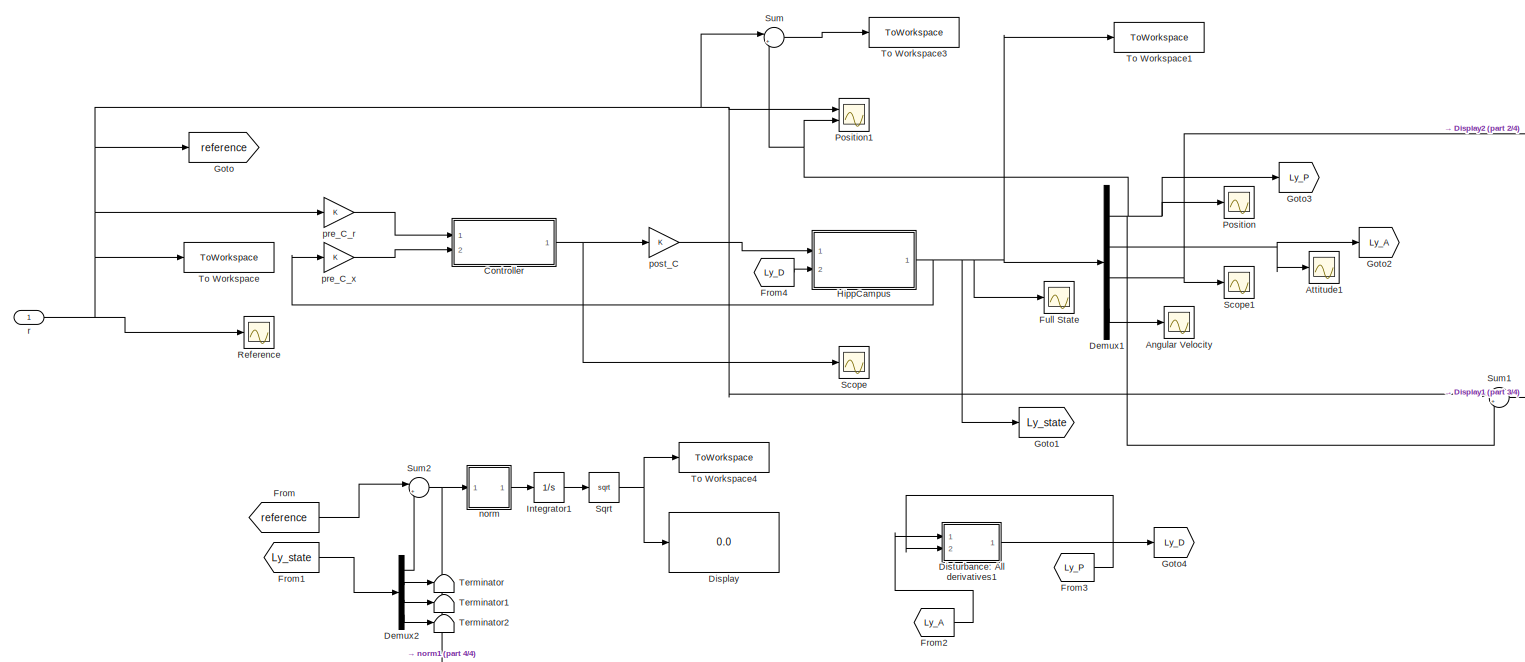
[diagram: Proposed controller - part 1/4, most of the canvas]
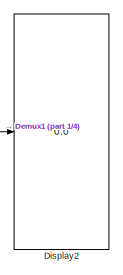
[diagram: Proposed controller - part 2/4, middle right region]
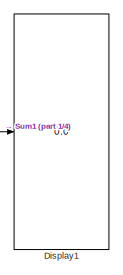
[diagram: Proposed controller - part 3/4, middle right region]
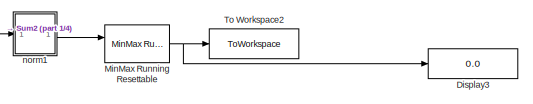
[diagram: Proposed controller - part 4/4, bottom center region]
BLOCK [SubSystem] Proposed controller
  Ports = [1]
  RequestExecContextInheritance = off
BLOCK [Scope] Proposed controller/Angular Velocity
  Floating = off
  NumInputPorts = 1
  Ports = [1]
  ScopeSpecificationString = Simulink.scopes.TimeScopeBlockCfg('CurrentConfiguration', extmgr.ConfigurationSet(extmgr.Configuration('Core','General UI',true),extmgr.Configuration('Core','Source UI',true),extmgr.Configuration('Sources','WiredSimulink',true,'DataLoggingVariableName','ScopeData2'),extmgr.Configuration('Visuals','Time Domain',true,'SerializedDisplays',{struct('MinYLimReal','-7.75504','MaxYLimReal','8.32797','YLab...<+1440ch>
BLOCK [Scope] Proposed controller/Attitude1
  Floating = off
  NumInputPorts = 1
  Ports = [1]
  ScopeSpecificationString = Simulink.scopes.TimeScopeBlockCfg('CurrentConfiguration', extmgr.ConfigurationSet(extmgr.Configuration('Core','General UI',true),extmgr.Configuration('Core','Source UI',true),extmgr.Configuration('Sources','WiredSimulink',true,'DataLoggingVariableName','ScopeData1'),extmgr.Configuration('Visuals','Time Domain',true,'SerializedDisplays',{struct('MinYLimReal','-3.92692','MaxYLimReal','3.92674','YLab...<+1464ch>
BLOCK [SubSystem] Proposed controller/Controller
  Ports = [2, 1]
  RequestExecContextInheritance = off
BLOCK [Demux] Proposed controller/Controller/Demux
  Outputs = [4 4]
  Ports = [1, 2]
BLOCK [Demux] Proposed controller/Controller/Demux4
  Outputs = [3 3 3 3]
  Ports = [1, 4]
BLOCK [Derivative] Proposed controller/Controller/Derivative1
  CoefficientInTFapproximation = 1
BLOCK [Inport] Proposed controller/Controller/In4
BLOCK [SubSystem] Proposed controller/Controller/Kinematic1
  ErrorFcn = Stateflow.Translate.translate
  PermitHierarchicalResolution = ExplicitOnly
  Ports = [1, 1]
  RequestExecContextInheritance = off
  SFBlockType = MATLAB Function
  TreatAsAtomicUnit = on
BLOCK [Demux] Proposed controller/Controller/Kinematic1/ Demux 
  Outputs = 1
  Ports = [1, 1]
BLOCK [S-Function] Proposed controller/Controller/Kinematic1/ SFunction 
  EnableBusSupport = on
  FunctionName = sf_sfun
  PortCounts = [1 2]
  Ports = [1, 2]
  SFcnIsStateOwnerBlock = off
  SFunctionDeploymentMode = off
  Tag = Stateflow S-Function 3
BLOCK [Terminator] Proposed controller/Controller/Kinematic1/ Terminator 
BLOCK [Outport] Proposed controller/Controller/Kinematic1/output
BLOCK [Inport] Proposed controller/Controller/Kinematic1/s
BLOCK [SubSystem] Proposed controller/Controller/MATLAB Function1
  ErrorFcn = Stateflow.Translate.translate
  PermitHierarchicalResolution = ExplicitOnly
  Ports = [1, 1]
  RequestExecContextInheritance = off
  SFBlockType = MATLAB Function
  TreatAsAtomicUnit = on
BLOCK [Demux] Proposed controller/Controller/MATLAB Function1/ Demux 
  Outputs = 1
  Ports = [1, 1]
BLOCK [S-Function] Proposed controller/Controller/MATLAB Function1/ SFunction 
  EnableBusSupport = on
  FunctionName = sf_sfun
  PortCounts = [1 2]
  Ports = [1, 2]
  SFcnIsStateOwnerBlock = off
  SFunctionDeploymentMode = off
  Tag = Stateflow S-Function 29
BLOCK [Terminator] Proposed controller/Controller/MATLAB Function1/ Terminator 
BLOCK [Outport] Proposed controller/Controller/MATLAB Function1/K
BLOCK [Inport] Proposed controller/Controller/MATLAB Function1/s
BLOCK [Mux] Proposed controller/Controller/Mux
  DisplayOption = bar
  Inputs = 2
  Ports = [2, 1]
BLOCK [Mux] Proposed controller/Controller/Mux1
  DisplayOption = bar
  Inputs = 2
  Ports = [2, 1]
BLOCK [Mux] Proposed controller/Controller/Mux2
  DisplayOption = bar
  Inputs = 3
  Ports = [3, 1]
BLOCK [Mux] Proposed controller/Controller/Mux3
  DisplayOption = bar
  Inputs = 3
  Ports = [3, 1]
BLOCK [Mux] Proposed controller/Controller/Mux8
  DisplayOption = bar
  Inputs = 2
  Ports = [2, 1]
BLOCK [Saturate] Proposed controller/Controller/Saturation
  LowerLimit = -[10;10;10;10]
  UpperLimit = [5;5;5;5]
BLOCK [Scope] Proposed controller/Controller/Scope
  Floating = off
  NumInputPorts = 1
  Ports = [1]
  ScopeSpecificationString = Simulink.scopes.TimeScopeBlockCfg('CurrentConfiguration', extmgr.ConfigurationSet(extmgr.Configuration('Core','General UI',true),extmgr.Configuration('Core','Source UI',true),extmgr.Configuration('Sources','WiredSimulink',true,'DataLoggingVariableName','ScopeData1'),extmgr.Configuration('Visuals','Time Domain',true,'SerializedDisplays',{struct('MinYLimReal','-86.85256','MaxYLimReal','119.13431','Y...<+1687ch>
BLOCK [Scope] Proposed controller/Controller/Scope1
  Floating = off
  NumInputPorts = 1
  Ports = [1]
  ScopeSpecificationString = Simulink.scopes.TimeScopeBlockCfg('CurrentConfiguration', extmgr.ConfigurationSet(extmgr.Configuration('Core','General UI',true),extmgr.Configuration('Core','Source UI',true),extmgr.Configuration('Sources','WiredSimulink',true,'DataLoggingVariableName','ScopeData2'),extmgr.Configuration('Visuals','Time Domain',true,'SerializedDisplays',{struct('MinYLimReal','-45.39417','MaxYLimReal','7.324','YLabe...<+1577ch>
BLOCK [Outport] Proposed controller/Controller/u1
BLOCK [Inport] Proposed controller/Controller/x
  Port = 2
BLOCK [Demux] Proposed controller/Demux1
  Outputs = [3 3 3 3]
  Ports = [1, 4]
BLOCK [Demux] Proposed controller/Demux2
  Outputs = [3 3 3 3]
  Ports = [1, 4]
BLOCK [Display] Proposed controller/Display
  Decimation = 1
  Ports = [1]
BLOCK [Display] Proposed controller/Display1
  Decimation = 1
  Ports = [1]
BLOCK [Display] Proposed controller/Display2
  Decimation = 1
  Ports = [1]
BLOCK [Display] Proposed controller/Display3
  Decimation = 1
  Ports = [1]
BLOCK [SubSystem] Proposed controller/Disturbance: All derivatives1
  Ports = [2, 1]
  RequestExecContextInheritance = off
BLOCK [Gain] Proposed controller/Disturbance: All derivatives1/Gain1
  Gain = 0
  Multiplication = Matrix(K*u)
BLOCK [Gain] Proposed controller/Disturbance: All derivatives1/Gain2
  Gain = 0
  Multiplication = Matrix(K*u)
BLOCK [Gain] Proposed controller/Disturbance: All derivatives1/Gain3
  Gain = 0
  Multiplication = Matrix(K*u)
BLOCK [Sum] Proposed controller/Disturbance: All derivatives1/Sum2
  Inputs = |+++
  Ports = [3, 1]
BLOCK [Inport] Proposed controller/Disturbance: All derivatives1/a
BLOCK [Inport] Proposed controller/Disturbance: All derivatives1/a1
  Port = 2
BLOCK [Outport] Proposed controller/Disturbance: All derivatives1/disturbance
BLOCK [SubSystem] Proposed controller/Disturbance: All derivatives1/disturbance2
  Ports = [0, 1]
  RequestExecContextInheritance = off
BLOCK [Gain] Proposed controller/Disturbance: All derivatives1/disturbance2/Gain
  Gain = [zeros(6,1);ones(6,1)]
  Multiplication = Matrix(K*u)
BLOCK [Outport] Proposed controller/Disturbance: All derivatives1/disturbance2/Out1
BLOCK [Step] Proposed controller/Disturbance: All derivatives1/disturbance2/Step2
  After = 0.5
  SampleTime = 0
  Time = 50
BLOCK [Step] Proposed controller/Disturbance: All derivatives1/disturbance2/Step3
  After = -0.5
  SampleTime = 0
  Time = 55
BLOCK [Sum] Proposed controller/Disturbance: All derivatives1/disturbance2/Sum1
  Inputs = |++
  Ports = [2, 1]
BLOCK [SubSystem] Proposed controller/Disturbance: All derivatives1/disturbance3
  Ports = [2, 1]
  RequestExecContextInheritance = off
BLOCK [Constant] Proposed controller/Disturbance: All derivatives1/disturbance3/Constant
  Value = 10
BLOCK [Constant] Proposed controller/Disturbance: All derivatives1/disturbance3/Constant2
  Value = 10
BLOCK [Constant] Proposed controller/Disturbance: All derivatives1/disturbance3/Constant3
  Value = 45
BLOCK [Constant] Proposed controller/Disturbance: All derivatives1/disturbance3/Constant4
  Value = 20
BLOCK [Gain] Proposed controller/Disturbance: All derivatives1/disturbance3/Gain
  Gain = pi/180
BLOCK [Gain] Proposed controller/Disturbance: All derivatives1/disturbance3/Gain1
  Gain = pi/180
BLOCK [SubSystem] Proposed controller/Disturbance: All derivatives1/disturbance3/MATLAB Function
  ErrorFcn = Stateflow.Translate.translate
  PermitHierarchicalResolution = ExplicitOnly
  Ports = [5, 1]
  RequestExecContextInheritance = off
  SFBlockType = MATLAB Function
  TreatAsAtomicUnit = on
BLOCK [Demux] Proposed controller/Disturbance: All derivatives1/disturbance3/MATLAB Function/ Demux 
  Outputs = 1
  Ports = [1, 1]
BLOCK [S-Function] Proposed controller/Disturbance: All derivatives1/disturbance3/MATLAB Function/ SFunction 
  EnableBusSupport = on
  FunctionName = sf_sfun
  PortCounts = [5 2]
  Ports = [5, 2]
  SFcnIsStateOwnerBlock = off
  SFunctionDeploymentMode = off
  Tag = Stateflow S-Function 1
BLOCK [Terminator] Proposed controller/Disturbance: All derivatives1/disturbance3/MATLAB Function/ Terminator 
BLOCK [Inport] Proposed controller/Disturbance: All derivatives1/disturbance3/MATLAB Function/a
  Port = 2
BLOCK [Outport] Proposed controller/Disturbance: All derivatives1/disturbance3/MATLAB Function/d
BLOCK [Inport] Proposed controller/Disturbance: All derivatives1/disturbance3/MATLAB Function/p
BLOCK [Inport] Proposed controller/Disturbance: All derivatives1/disturbance3/MATLAB Function/u_c
  Port = 4
BLOCK [Inport] Proposed controller/Disturbance: All derivatives1/disturbance3/MATLAB Function/u_un
  Port = 5
BLOCK [Inport] Proposed controller/Disturbance: All derivatives1/disturbance3/MATLAB Function/u_wave
  Port = 3
BLOCK [Mux] Proposed controller/Disturbance: All derivatives1/disturbance3/Mux
  DisplayOption = bar
  Inputs = 3
  Ports = [3, 1]
BLOCK [SubSystem] Proposed controller/Disturbance: All derivatives1/disturbance3/Subsystem1
  Ports = [0, 1]
  RequestExecContextInheritance = off
BLOCK [Clock] Proposed controller/Disturbance: All derivatives1/disturbance3/Subsystem1/Clock
BLOCK [Mux] Proposed controller/Disturbance: All derivatives1/disturbance3/Subsystem1/Mux1
  DisplayOption = bar
  Inputs = 3
  Ports = [3, 1]
BLOCK [Outport] Proposed controller/Disturbance: All derivatives1/disturbance3/Subsystem1/Out1
BLOCK [SubSystem] Proposed controller/Disturbance: All derivatives1/disturbance3/Subsystem1/wave frenquency
  Ports = [0, 1]
  RequestExecContextInheritance = off
BLOCK [Constant] Proposed controller/Disturbance: All derivatives1/disturbance3/Subsystem1/wave frenquency/Constant2
BLOCK [Constant] Proposed controller/Disturbance: All derivatives1/disturbance3/Subsystem1/wave frenquency/Constant3
  Value = 1.1
BLOCK [Constant] Proposed controller/Disturbance: All derivatives1/disturbance3/Subsystem1/wave frenquency/Constant4
  Value = 1.2
BLOCK [Constant] Proposed controller/Disturbance: All derivatives1/disturbance3/Subsystem1/wave frenquency/Constant5
  Value = 0.5
BLOCK [Constant] Proposed controller/Disturbance: All derivatives1/disturbance3/Subsystem1/wave frenquency/Constant6
  Value = 0.6
BLOCK [Constant] Proposed controller/Disturbance: All derivatives1/disturbance3/Subsystem1/wave frenquency/Constant7
  Value = 0.7
BLOCK [Mux] Proposed controller/Disturbance: All derivatives1/disturbance3/Subsystem1/wave frenquency/Mux
  DisplayOption = bar
  Inputs = 6
  Ports = [6, 1]
BLOCK [Outport] Proposed controller/Disturbance: All derivatives1/disturbance3/Subsystem1/wave frenquency/Out1
BLOCK [SubSystem] Proposed controller/Disturbance: All derivatives1/disturbance3/Subsystem1/wave percentage
  Ports = [0, 1]
  RequestExecContextInheritance = off
BLOCK [Constant] Proposed controller/Disturbance: All derivatives1/disturbance3/Subsystem1/wave percentage/Constant2
  Value = 0
BLOCK [Constant] Proposed controller/Disturbance: All derivatives1/disturbance3/Subsystem1/wave percentage/Constant3
  Value = 0
BLOCK [Constant] Proposed controller/Disturbance: All derivatives1/disturbance3/Subsystem1/wave percentage/Constant4
  Value = 0
BLOCK [Constant] Proposed controller/Disturbance: All derivatives1/disturbance3/Subsystem1/wave percentage/Constant5
  Value = 0
BLOCK [Constant] Proposed controller/Disturbance: All derivatives1/disturbance3/Subsystem1/wave percentage/Constant6
  Value = 0
BLOCK [Constant] Proposed controller/Disturbance: All derivatives1/disturbance3/Subsystem1/wave percentage/Constant7
  Value = 0
BLOCK [Mux] Proposed controller/Disturbance: All derivatives1/disturbance3/Subsystem1/wave percentage/Mux
  DisplayOption = bar
  Inputs = 6
  Ports = [6, 1]
BLOCK [Outport] Proposed controller/Disturbance: All derivatives1/disturbance3/Subsystem1/wave percentage/Out1
BLOCK [Inport] Proposed controller/Disturbance: All derivatives1/disturbance3/a
BLOCK [Inport] Proposed controller/Disturbance: All derivatives1/disturbance3/a1
  Port = 2
BLOCK [Outport] Proposed controller/Disturbance: All derivatives1/disturbance3/d
BLOCK [SubSystem] Proposed controller/Disturbance: All derivatives1/old disturbance
  Ports = [0, 1]
  RequestExecContextInheritance = off
BLOCK [Gain] Proposed controller/Disturbance: All derivatives1/old disturbance/Gain
  Gain = ones(12,1)
  Multiplication = Matrix(K*u)
BLOCK [Outport] Proposed controller/Disturbance: All derivatives1/old disturbance/Out1
BLOCK [Step] Proposed controller/Disturbance: All derivatives1/old disturbance/Step
  After = 0.5
  SampleTime = 0
  Time = 50
BLOCK [Step] Proposed controller/Disturbance: All derivatives1/old disturbance/Step1
  After = -0.5
  SampleTime = 0
  Time = 55
BLOCK [Step] Proposed controller/Disturbance: All derivatives1/old disturbance/Step2
  After = 0.5
  SampleTime = 0
  Time = 100
BLOCK [Step] Proposed controller/Disturbance: All derivatives1/old disturbance/Step3
  After = -0.5
  SampleTime = 0
  Time = 105
BLOCK [Sum] Proposed controller/Disturbance: All derivatives1/old disturbance/Sum
  Inputs = |++
  Ports = [2, 1]
BLOCK [Sum] Proposed controller/Disturbance: All derivatives1/old disturbance/Sum2
  Inputs = |++
  Ports = [2, 1]
BLOCK [Sum] Proposed controller/Disturbance: All derivatives1/old disturbance/Sum3
  Inputs = |++
  Ports = [2, 1]
BLOCK [From] Proposed controller/From
  GotoTag = reference
BLOCK [From] Proposed controller/From1
  GotoTag = Ly_state
BLOCK [From] Proposed controller/From2
  GotoTag = Ly_A
BLOCK [From] Proposed controller/From3
  GotoTag = Ly_P
BLOCK [From] Proposed controller/From4
  GotoTag = Ly_D
BLOCK [Scope] Proposed controller/Full State
  Floating = off
  NumInputPorts = 1
  Ports = [1]
  ScopeSpecificationString = Simulink.scopes.TimeScopeBlockCfg('CurrentConfiguration', extmgr.ConfigurationSet(extmgr.Configuration('Core','General UI',true),extmgr.Configuration('Core','Source UI',true),extmgr.Configuration('Sources','WiredSimulink',true,'DataLoggingVariableName','ScopeData3'),extmgr.Configuration('Visuals','Time Domain',true,'SerializedDisplays',{struct('MinYLimReal','-4.84264','MaxYLimReal','4.40087','YLab...<+1861ch>
BLOCK [Goto] Proposed controller/Goto
  GotoTag = reference
BLOCK [Goto] Proposed controller/Goto1
  GotoTag = Ly_state
BLOCK [Goto] Proposed controller/Goto2
  GotoTag = Ly_A
BLOCK [Goto] Proposed controller/Goto3
  GotoTag = Ly_P
BLOCK [Goto] Proposed controller/Goto4
  GotoTag = Ly_D
BLOCK [SubSystem] Proposed controller/HippCampus
  Ports = [2, 1]
  RequestExecContextInheritance = off
BLOCK [Scope] Proposed controller/HippCampus/Controls: Angular Velocities
  Floating = off
  NumInputPorts = 1
  Ports = [1]
BLOCK [Scope] Proposed controller/HippCampus/Controls: Rotors1
  Floating = off
  NumInputPorts = 1
  Ports = [1]
  ScopeSpecificationString = Simulink.scopes.TimeScopeBlockCfg('CurrentConfiguration', extmgr.ConfigurationSet(extmgr.Configuration('Core','General UI',true),extmgr.Configuration('Core','Source UI',true),extmgr.Configuration('Sources','WiredSimulink',true,'DataLoggingVariableName','ScopeData1'),extmgr.Configuration('Visuals','Time Domain',true,'SerializedDisplays',{struct('MinYLimReal','-2.6283','MaxYLimReal','13.62537','YLab...<+1582ch>
BLOCK [Scope] Proposed controller/HippCampus/Controls: Torques
  Floating = off
  NumInputPorts = 1
  Ports = [1]
BLOCK [Display] Proposed controller/HippCampus/Display
  Decimation = 1
  Ports = [1]
BLOCK [Display] Proposed controller/HippCampus/Display1
  Decimation = 1
  Ports = [1]
BLOCK [SubSystem] Proposed controller/HippCampus/HippoCampus
  ErrorFcn = Stateflow.Translate.translate
  PermitHierarchicalResolution = ExplicitOnly
  Ports = [2, 1]
  RequestExecContextInheritance = off
  SFBlockType = MATLAB Function
  TreatAsAtomicUnit = on
BLOCK [Demux] Proposed controller/HippCampus/HippoCampus/ Demux 
  Outputs = 1
  Ports = [1, 1]
BLOCK [S-Function] Proposed controller/HippCampus/HippoCampus/ SFunction 
  EnableBusSupport = on
  FunctionName = sf_sfun
  PortCounts = [2 2]
  Ports = [2, 2]
  SFcnIsStateOwnerBlock = off
  SFunctionDeploymentMode = off
  Tag = Stateflow S-Function 2
BLOCK [Terminator] Proposed controller/HippCampus/HippoCampus/ Terminator 
BLOCK [Outport] Proposed controller/HippCampus/HippoCampus/dx
BLOCK [Inport] Proposed controller/HippCampus/HippoCampus/in
  Port = 2
BLOCK [Inport] Proposed controller/HippCampus/HippoCampus/x
BLOCK [Integrator] Proposed controller/HippCampus/Integrator
  InitialCondition = [0; 0; 0; 0;0;0;zeros(6,1)]
  NameLocation = top
  Ports = [1, 1]
BLOCK [SubSystem] Proposed controller/HippCampus/Subsystem
  Ports = [1, 1]
  RequestExecContextInheritance = off
BLOCK [Demux] Proposed controller/HippCampus/Subsystem/Demux
  Outputs = [5 1 1 1 4]
  Ports = [1, 5]
BLOCK [Inport] Proposed controller/HippCampus/Subsystem/In1
BLOCK [SubSystem] Proposed controller/HippCampus/Subsystem/MATLAB Function
  ErrorFcn = Stateflow.Translate.translate
  PermitHierarchicalResolution = ExplicitOnly
  Ports = [1, 1]
  RequestExecContextInheritance = off
  SFBlockType = MATLAB Function
  TreatAsAtomicUnit = on
BLOCK [Demux] Proposed controller/HippCampus/Subsystem/MATLAB Function/ Demux 
  Outputs = 1
  Ports = [1, 1]
BLOCK [S-Function] Proposed controller/HippCampus/Subsystem/MATLAB Function/ SFunction 
  EnableBusSupport = on
  FunctionName = sf_sfun
  PortCounts = [1 2]
  Ports = [1, 2]
  SFcnIsStateOwnerBlock = off
  SFunctionDeploymentMode = off
  Tag = Stateflow S-Function 4
BLOCK [Terminator] Proposed controller/HippCampus/Subsystem/MATLAB Function/ Terminator 
BLOCK [Inport] Proposed controller/HippCampus/Subsystem/MATLAB Function/u
BLOCK [Outport] Proposed controller/HippCampus/Subsystem/MATLAB Function/y
BLOCK [Mux] Proposed controller/HippCampus/Subsystem/Mux
  DisplayOption = bar
  Inputs = 5
  Ports = [5, 1]
BLOCK [Outport] Proposed controller/HippCampus/Subsystem/state
BLOCK [SubSystem] Proposed controller/HippCampus/Subsystem1
  Ports = [1, 1]
  RequestExecContextInheritance = off
BLOCK [Integrator] Proposed controller/HippCampus/Subsystem1/Integrator2
  Ports = [1, 1]
BLOCK [Outport] Proposed controller/HippCampus/Subsystem1/Out1
BLOCK [Sqrt] Proposed controller/HippCampus/Subsystem1/Sqrt1
BLOCK [SubSystem] Proposed controller/HippCampus/Subsystem1/norm1
  ErrorFcn = Stateflow.Translate.translate
  PermitHierarchicalResolution = ExplicitOnly
  Ports = [1, 1]
  RequestExecContextInheritance = off
  SFBlockType = MATLAB Function
  TreatAsAtomicUnit = on
BLOCK [Demux] Proposed controller/HippCampus/Subsystem1/norm1/ Demux 
  Outputs = 1
  Ports = [1, 1]
BLOCK [S-Function] Proposed controller/HippCampus/Subsystem1/norm1/ SFunction 
  EnableBusSupport = on
  FunctionName = sf_sfun
  PortCounts = [1 2]
  Ports = [1, 2]
  SFcnIsStateOwnerBlock = off
  SFunctionDeploymentMode = off
  Tag = Stateflow S-Function 41
BLOCK [Terminator] Proposed controller/HippCampus/Subsystem1/norm1/ Terminator 
BLOCK [Inport] Proposed controller/HippCampus/Subsystem1/norm1/u
BLOCK [Outport] Proposed controller/HippCampus/Subsystem1/norm1/y
BLOCK [Inport] Proposed controller/HippCampus/Subsystem1/u
BLOCK [SubSystem] Proposed controller/HippCampus/Subsystem4
  Ports = [1, 1]
  RequestExecContextInheritance = off
BLOCK [Demux] Proposed controller/HippCampus/Subsystem4/Demux
  Ports = [1, 4]
BLOCK [Mux] Proposed controller/HippCampus/Subsystem4/Mux
  DisplayOption = bar
  Ports = [4, 1]
BLOCK [Outport] Proposed controller/HippCampus/Subsystem4/Out1
BLOCK [SubSystem] Proposed controller/HippCampus/Subsystem4/Subsystem
  Ports = [1, 1]
  RequestExecContextInheritance = off
BLOCK [Integrator] Proposed controller/HippCampus/Subsystem4/Subsystem/Integrator2
  Ports = [1, 1]
BLOCK [Outport] Proposed controller/HippCampus/Subsystem4/Subsystem/Out1
BLOCK [Sqrt] Proposed controller/HippCampus/Subsystem4/Subsystem/Sqrt1
BLOCK [SubSystem] Proposed controller/HippCampus/Subsystem4/Subsystem/norm1
  ErrorFcn = Stateflow.Translate.translate
  PermitHierarchicalResolution = ExplicitOnly
  Ports = [1, 1]
  RequestExecContextInheritance = off
  SFBlockType = MATLAB Function
  TreatAsAtomicUnit = on
BLOCK [Demux] Proposed controller/HippCampus/Subsystem4/Subsystem/norm1/ Demux 
  Outputs = 1
  Ports = [1, 1]
BLOCK [S-Function] Proposed controller/HippCampus/Subsystem4/Subsystem/norm1/ SFunction 
  EnableBusSupport = on
  FunctionName = sf_sfun
  PortCounts = [1 2]
  Ports = [1, 2]
  SFcnIsStateOwnerBlock = off
  SFunctionDeploymentMode = off
  Tag = Stateflow S-Function 26
BLOCK [Terminator] Proposed controller/HippCampus/Subsystem4/Subsystem/norm1/ Terminator 
BLOCK [Inport] Proposed controller/HippCampus/Subsystem4/Subsystem/norm1/u
BLOCK [Outport] Proposed controller/HippCampus/Subsystem4/Subsystem/norm1/y
BLOCK [Inport] Proposed controller/HippCampus/Subsystem4/Subsystem/u
BLOCK [SubSystem] Proposed controller/HippCampus/Subsystem4/Subsystem1
  Ports = [1, 1]
  RequestExecContextInheritance = off
BLOCK [Integrator] Proposed controller/HippCampus/Subsystem4/Subsystem1/Integrator2
  Ports = [1, 1]
BLOCK [Outport] Proposed controller/HippCampus/Subsystem4/Subsystem1/Out1
BLOCK [Sqrt] Proposed controller/HippCampus/Subsystem4/Subsystem1/Sqrt1
BLOCK [SubSystem] Proposed controller/HippCampus/Subsystem4/Subsystem1/norm1
  ErrorFcn = Stateflow.Translate.translate
  PermitHierarchicalResolution = ExplicitOnly
  Ports = [1, 1]
  RequestExecContextInheritance = off
  SFBlockType = MATLAB Function
  TreatAsAtomicUnit = on
BLOCK [Demux] Proposed controller/HippCampus/Subsystem4/Subsystem1/norm1/ Demux 
  Outputs = 1
  Ports = [1, 1]
BLOCK [S-Function] Proposed controller/HippCampus/Subsystem4/Subsystem1/norm1/ SFunction 
  EnableBusSupport = on
  FunctionName = sf_sfun
  PortCounts = [1 2]
  Ports = [1, 2]
  SFcnIsStateOwnerBlock = off
  SFunctionDeploymentMode = off
  Tag = Stateflow S-Function 27
BLOCK [Terminator] Proposed controller/HippCampus/Subsystem4/Subsystem1/norm1/ Terminator 
BLOCK [Inport] Proposed controller/HippCampus/Subsystem4/Subsystem1/norm1/u
BLOCK [Outport] Proposed controller/HippCampus/Subsystem4/Subsystem1/norm1/y
BLOCK [Inport] Proposed controller/HippCampus/Subsystem4/Subsystem1/u
BLOCK [SubSystem] Proposed controller/HippCampus/Subsystem4/Subsystem2
  Ports = [1, 1]
  RequestExecContextInheritance = off
BLOCK [Integrator] Proposed controller/HippCampus/Subsystem4/Subsystem2/Integrator2
  Ports = [1, 1]
BLOCK [Outport] Proposed controller/HippCampus/Subsystem4/Subsystem2/Out1
BLOCK [Sqrt] Proposed controller/HippCampus/Subsystem4/Subsystem2/Sqrt1
BLOCK [SubSystem] Proposed controller/HippCampus/Subsystem4/Subsystem2/norm1
  ErrorFcn = Stateflow.Translate.translate
  PermitHierarchicalResolution = ExplicitOnly
  Ports = [1, 1]
  RequestExecContextInheritance = off
  SFBlockType = MATLAB Function
  TreatAsAtomicUnit = on
BLOCK [Demux] Proposed controller/HippCampus/Subsystem4/Subsystem2/norm1/ Demux 
  Outputs = 1
  Ports = [1, 1]
BLOCK [S-Function] Proposed controller/HippCampus/Subsystem4/Subsystem2/norm1/ SFunction 
  EnableBusSupport = on
  FunctionName = sf_sfun
  PortCounts = [1 2]
  Ports = [1, 2]
  SFcnIsStateOwnerBlock = off
  SFunctionDeploymentMode = off
  Tag = Stateflow S-Function 28
BLOCK [Terminator] Proposed controller/HippCampus/Subsystem4/Subsystem2/norm1/ Terminator 
BLOCK [Inport] Proposed controller/HippCampus/Subsystem4/Subsystem2/norm1/u
BLOCK [Outport] Proposed controller/HippCampus/Subsystem4/Subsystem2/norm1/y
BLOCK [Inport] Proposed controller/HippCampus/Subsystem4/Subsystem2/u
BLOCK [SubSystem] Proposed controller/HippCampus/Subsystem4/Subsystem3
  Ports = [1, 1]
  RequestExecContextInheritance = off
BLOCK [Integrator] Proposed controller/HippCampus/Subsystem4/Subsystem3/Integrator2
  Ports = [1, 1]
BLOCK [Outport] Proposed controller/HippCampus/Subsystem4/Subsystem3/Out1
BLOCK [Sqrt] Proposed controller/HippCampus/Subsystem4/Subsystem3/Sqrt1
BLOCK [SubSystem] Proposed controller/HippCampus/Subsystem4/Subsystem3/norm1
  ErrorFcn = Stateflow.Translate.translate
  PermitHierarchicalResolution = ExplicitOnly
  Ports = [1, 1]
  RequestExecContextInheritance = off
  SFBlockType = MATLAB Function
  TreatAsAtomicUnit = on
BLOCK [Demux] Proposed controller/HippCampus/Subsystem4/Subsystem3/norm1/ Demux 
  Outputs = 1
  Ports = [1, 1]
BLOCK [S-Function] Proposed controller/HippCampus/Subsystem4/Subsystem3/norm1/ SFunction 
  EnableBusSupport = on
  FunctionName = sf_sfun
  PortCounts = [1 2]
  Ports = [1, 2]
  SFcnIsStateOwnerBlock = off
  SFunctionDeploymentMode = off
  Tag = Stateflow S-Function 30
BLOCK [Terminator] Proposed controller/HippCampus/Subsystem4/Subsystem3/norm1/ Terminator 
BLOCK [Inport] Proposed controller/HippCampus/Subsystem4/Subsystem3/norm1/u
BLOCK [Outport] Proposed controller/HippCampus/Subsystem4/Subsystem3/norm1/y
BLOCK [Inport] Proposed controller/HippCampus/Subsystem4/Subsystem3/u
BLOCK [Inport] Proposed controller/HippCampus/Subsystem4/u
BLOCK [Sum] Proposed controller/HippCampus/Sum
  Inputs = |++
  Ports = [2, 1]
BLOCK [ToWorkspace] Proposed controller/HippCampus/To Workspace7
  FixptAsFi = on
  MaxDataPoints = inf
  Ports = [1]
  SampleTime = -1
  SaveFormat = Timeseries
  VariableName = u
BLOCK [Inport] Proposed controller/HippCampus/disturbance
  NameLocation = top
  Port = 2
BLOCK [Inport] Proposed controller/HippCampus/input
BLOCK [SubSystem] Proposed controller/HippCampus/sat1
  ErrorFcn = Stateflow.Translate.translate
  PermitHierarchicalResolution = ExplicitOnly
  Ports = [1, 2]
  RequestExecContextInheritance = off
  SFBlockType = MATLAB Function
  TreatAsAtomicUnit = on
BLOCK [Demux] Proposed controller/HippCampus/sat1/ Demux 
  Outputs = 1
  Ports = [1, 1]
BLOCK [S-Function] Proposed controller/HippCampus/sat1/ SFunction 
  EnableBusSupport = on
  FunctionName = sf_sfun
  PortCounts = [1 3]
  Ports = [1, 3]
  SFcnIsStateOwnerBlock = off
  SFunctionDeploymentMode = off
  Tag = Stateflow S-Function 45
BLOCK [Terminator] Proposed controller/HippCampus/sat1/ Terminator 
BLOCK [Outport] Proposed controller/HippCampus/sat1/omega
  Port = 2
BLOCK [Inport] Proposed controller/HippCampus/sat1/u
BLOCK [Outport] Proposed controller/HippCampus/sat1/u_sat
BLOCK [Outport] Proposed controller/HippCampus/state
BLOCK [Integrator] Proposed controller/Integrator1
  Ports = [1, 1]
BLOCK [Reference] Proposed controller/MinMax Running Resettable  REF=simulink/Math
Operations/MinMax
Running
Resettable
  Ports = [2, 1]
  SourceBlock = simulink/Math\nOperations/MinMax\nRunning\nResettable
  SourceProductBaseCode = SL
  SourceType = MinMax Running Resettable
BLOCK [Scope] Proposed controller/Position
  Floating = off
  NumInputPorts = 1
  Ports = [1]
  ScopeSpecificationString = Simulink.scopes.TimeScopeBlockCfg('CurrentConfiguration', extmgr.ConfigurationSet(extmgr.Configuration('Core','General UI',true),extmgr.Configuration('Core','Source UI',true),extmgr.Configuration('Sources','WiredSimulink',true),extmgr.Configuration('Visuals','Time Domain',true,'SerializedDisplays',{struct('MinYLimReal','-1.12246','MaxYLimReal','1.91852','YLabelReal','','MinYLimMag','0.00000','MaxY...<+1429ch>
BLOCK [Scope] Proposed controller/Position1
  Floating = off
  NumInputPorts = 2
  Ports = [2]
  ScopeSpecificationString = Simulink.scopes.TimeScopeBlockCfg('CurrentConfiguration', extmgr.ConfigurationSet(extmgr.Configuration('Core','General UI',true),extmgr.Configuration('Core','Source UI',true),extmgr.Configuration('Sources','WiredSimulink',true,'DataLoggingVariableName','ScopeData1'),extmgr.Configuration('Visuals','Time Domain',true,'SerializedDisplays',{struct('MinYLimReal','-2.57829','MaxYLimReal','2.01608','YLab...<+1462ch>
BLOCK [Scope] Proposed controller/Reference
  Floating = off
  NumInputPorts = 1
  Ports = [1]
  ScopeSpecificationString = Simulink.scopes.TimeScopeBlockCfg('CurrentConfiguration', extmgr.ConfigurationSet(extmgr.Configuration('Core','General UI',true),extmgr.Configuration('Core','Source UI',true),extmgr.Configuration('Sources','WiredSimulink',true,'DataLoggingVariableName','ScopeData1'),extmgr.Configuration('Visuals','Time Domain',true,'SerializedDisplays',{struct('MinYLimReal','-65.875','MaxYLimReal','562.875','YLabe...<+1401ch>
BLOCK [Scope] Proposed controller/Scope
  Floating = off
  NumInputPorts = 1
  Ports = [1]
  ScopeSpecificationString = Simulink.scopes.TimeScopeBlockCfg('CurrentConfiguration', extmgr.ConfigurationSet(extmgr.Configuration('Core','General UI',true),extmgr.Configuration('Core','Source UI',true),extmgr.Configuration('Sources','WiredSimulink',true,'DataLoggingVariableName','ScopeData9'),extmgr.Configuration('Visuals','Time Domain',true,'SerializedDisplays',{struct('MinYLimReal','-61.42554','MaxYLimReal','204.83612','Y...<+1452ch>
BLOCK [Scope] Proposed controller/Scope1
  Floating = off
  NumInputPorts = 1
  Ports = [1]
  ScopeSpecificationString = Simulink.scopes.TimeScopeBlockCfg('CurrentConfiguration', extmgr.ConfigurationSet(extmgr.Configuration('Core','General UI',true),extmgr.Configuration('Core','Source UI',true),extmgr.Configuration('Sources','WiredSimulink',true,'DataLoggingVariableName','ScopeData3'),extmgr.Configuration('Visuals','Time Domain',true,'SerializedDisplays',{struct('MinYLimReal','-0.57853','MaxYLimReal','1.34923','YLab...<+1425ch>
BLOCK [Sqrt] Proposed controller/Sqrt
BLOCK [Sum] Proposed controller/Sum
  Inputs = |+-
  Ports = [2, 1]
BLOCK [Sum] Proposed controller/Sum1
  Inputs = |+-
  Ports = [2, 1]
BLOCK [Sum] Proposed controller/Sum2
  Inputs = |+-
  Ports = [2, 1]
BLOCK [Terminator] Proposed controller/Terminator
BLOCK [Terminator] Proposed controller/Terminator1
BLOCK [Terminator] Proposed controller/Terminator2
BLOCK [ToWorkspace] Proposed controller/To Workspace
  FixptAsFi = on
  MaxDataPoints = inf
  Ports = [1]
  SampleTime = -1
  SaveFormat = Timeseries
  VariableName = ref
BLOCK [ToWorkspace] Proposed controller/To Workspace1
  FixptAsFi = on
  MaxDataPoints = inf
  Ports = [1]
  SampleTime = -1
  SaveFormat = Timeseries
  VariableName = Ly_state
BLOCK [ToWorkspace] Proposed controller/To Workspace2
  FixptAsFi = on
  MaxDataPoints = inf
  Ports = [1]
  SampleTime = -1
  SaveFormat = Timeseries
  VariableName = LYA_MAX_e
BLOCK [ToWorkspace] Proposed controller/To Workspace3
  FixptAsFi = on
  MaxDataPoints = inf
  Ports = [1]
  SampleTime = -1
  SaveFormat = Timeseries
  VariableName = LYA_error_time
BLOCK [ToWorkspace] Proposed controller/To Workspace4
  FixptAsFi = on
  MaxDataPoints = 1
  Ports = [1]
  SampleTime = -1
  SaveFormat = Timeseries
  VariableName = error_l2
BLOCK [SubSystem] Proposed controller/norm
  ErrorFcn = Stateflow.Translate.translate
  PermitHierarchicalResolution = ExplicitOnly
  Ports = [1, 1]
  RequestExecContextInheritance = off
  SFBlockType = MATLAB Function
  TreatAsAtomicUnit = on
BLOCK [Demux] Proposed controller/norm/ Demux 
  Outputs = 1
  Ports = [1, 1]
BLOCK [S-Function] Proposed controller/norm/ SFunction 
  EnableBusSupport = on
  FunctionName = sf_sfun
  PortCounts = [1 2]
  Ports = [1, 2]
  SFcnIsStateOwnerBlock = off
  SFunctionDeploymentMode = off
  Tag = Stateflow S-Function 14
BLOCK [Terminator] Proposed controller/norm/ Terminator 
BLOCK [Inport] Proposed controller/norm/u
BLOCK [Outport] Proposed controller/norm/y
BLOCK [SubSystem] Proposed controller/norm1
  ErrorFcn = Stateflow.Translate.translate
  PermitHierarchicalResolution = ExplicitOnly
  Ports = [1, 1]
  RequestExecContextInheritance = off
  SFBlockType = MATLAB Function
  TreatAsAtomicUnit = on
BLOCK [Demux] Proposed controller/norm1/ Demux 
  Outputs = 1
  Ports = [1, 1]
BLOCK [S-Function] Proposed controller/norm1/ SFunction 
  EnableBusSupport = on
  FunctionName = sf_sfun
  PortCounts = [1 2]
  Ports = [1, 2]
  SFcnIsStateOwnerBlock = off
  SFunctionDeploymentMode = off
  Tag = Stateflow S-Function 42
BLOCK [Terminator] Proposed controller/norm1/ Terminator 
BLOCK [Inport] Proposed controller/norm1/u
BLOCK [Outport] Proposed controller/norm1/y
BLOCK [Gain] Proposed controller/post_C
BLOCK [Gain] Proposed controller/pre_C_r
BLOCK [Gain] Proposed controller/pre_C_x
BLOCK [Inport] Proposed controller/r
BLOCK [SubSystem] case1
  Ports = [0, 1]
  RequestExecContextInheritance = off
BLOCK [Constant] case1/Constant
  Value = 1.5
BLOCK [Constant] case1/Constant1
BLOCK [Constant] case1/Constant2
  Value = 2
BLOCK [Mux] case1/Mux3
  DisplayOption = bar
  Inputs = [1 1 1]
  Ports = [3, 1]
BLOCK [Outport] case1/r
BLOCK [SubSystem] case2
  Ports = [0, 1]
  RequestExecContextInheritance = off
BLOCK [Constant] case2/Constant
  Value = -1.5
BLOCK [Constant] case2/Constant1
  Value = -1
BLOCK [Constant] case2/Constant2
  Value = 2
BLOCK [Mux] case2/Mux3
  DisplayOption = bar
  Inputs = [1 1 1]
  Ports = [3, 1]
BLOCK [Outport] case2/r
BLOCK [SubSystem] case3
  Ports = [0, 1]
  RequestExecContextInheritance = off
BLOCK [Constant] case3/Constant
  Value = 2
BLOCK [Constant] case3/Constant1
  Value = -1
BLOCK [Constant] case3/Constant2
  Value = 1.5
BLOCK [Mux] case3/Mux3
  DisplayOption = bar
  Inputs = [1 1 1]
  Ports = [3, 1]
BLOCK [Outport] case3/r
BLOCK [SubSystem] case4
  Ports = [0, 1]
  RequestExecContextInheritance = off
BLOCK [Constant] case4/Constant
  Value = -2
BLOCK [Constant] case4/Constant1
  Value = 1.5
BLOCK [Constant] case4/Constant2
BLOCK [Mux] case4/Mux3
  DisplayOption = bar
  Inputs = [1 1 1]
  Ports = [3, 1]
BLOCK [Outport] case4/r
BLOCK [SubSystem] tracking reference4_4
  Ports = [0, 1]
  RequestExecContextInheritance = off
BLOCK [Clock] tracking reference4_4/Clock
BLOCK [Trigonometry] tracking reference4_4/Cos
  Ports = [1, 1]
BLOCK [Trigonometry] tracking reference4_4/Cos1
  Ports = [1, 1]
BLOCK [Gain] tracking reference4_4/Gain5
  Gain = 0.1
BLOCK [Gain] tracking reference4_4/Gain6
  Gain = 4
BLOCK [Gain] tracking reference4_4/Gain7
  Gain = 4
BLOCK [Gain] tracking reference4_4/Gain8
  Gain = pi/15
BLOCK [Gain] tracking reference4_4/Gain9
  Gain = pi/30
BLOCK [Mux] tracking reference4_4/Mux
  DisplayOption = bar
  Inputs = 3
  Ports = [3, 1]
BLOCK [Outport] tracking reference4_4/r
BLOCK [SubSystem] tracking reference4_6
  Ports = [0, 1]
  RequestExecContextInheritance = off
BLOCK [Clock] tracking reference4_6/Clock
BLOCK [Trigonometry] tracking reference4_6/Cos
  Ports = [1, 1]
BLOCK [Trigonometry] tracking reference4_6/Cos1
  Ports = [1, 1]
BLOCK [Gain] tracking reference4_6/Gain5
  Gain = 0.1
BLOCK [Gain] tracking reference4_6/Gain6
  Gain = 4
BLOCK [Gain] tracking reference4_6/Gain7
  Gain = 6
BLOCK [Gain] tracking reference4_6/Gain8
  Gain = pi/15
BLOCK [Gain] tracking reference4_6/Gain9
  Gain = pi/30
BLOCK [Mux] tracking reference4_6/Mux
  DisplayOption = bar
  Inputs = 3
  Ports = [3, 1]
BLOCK [Outport] tracking reference4_6/r
BLOCK [SubSystem] tracking reference4_8
  Ports = [0, 1]
  RequestExecContextInheritance = off
BLOCK [Clock] tracking reference4_8/Clock
BLOCK [Trigonometry] tracking reference4_8/Cos
  Ports = [1, 1]
BLOCK [Trigonometry] tracking reference4_8/Cos1
  Ports = [1, 1]
BLOCK [Gain] tracking reference4_8/Gain5
  Gain = 0.1
BLOCK [Gain] tracking reference4_8/Gain6
  Gain = 4
BLOCK [Gain] tracking reference4_8/Gain7
  Gain = 8
BLOCK [Gain] tracking reference4_8/Gain8
  Gain = pi/15
BLOCK [Gain] tracking reference4_8/Gain9
  Gain = pi/30
BLOCK [Mux] tracking reference4_8/Mux
  DisplayOption = bar
  Inputs = 3
  Ports = [3, 1]
BLOCK [Outport] tracking reference4_8/r
BLOCK [SubSystem] tracking reference6_4
  Ports = [0, 1]
  RequestExecContextInheritance = off
BLOCK [Clock] tracking reference6_4/Clock
BLOCK [Trigonometry] tracking reference6_4/Cos
  Ports = [1, 1]
BLOCK [Trigonometry] tracking reference6_4/Cos1
  Ports = [1, 1]
BLOCK [Gain] tracking reference6_4/Gain5
  Gain = 0.1
BLOCK [Gain] tracking reference6_4/Gain6
  Gain = 6
BLOCK [Gain] tracking reference6_4/Gain7
  Gain = 4
BLOCK [Gain] tracking reference6_4/Gain8
  Gain = pi/15
BLOCK [Gain] tracking reference6_4/Gain9
  Gain = pi/30
BLOCK [Mux] tracking reference6_4/Mux
  DisplayOption = bar
  Inputs = 3
  Ports = [3, 1]
BLOCK [Outport] tracking reference6_4/r
BLOCK [SubSystem] tracking reference6_6
  Ports = [0, 1]
  RequestExecContextInheritance = off
BLOCK [Clock] tracking reference6_6/Clock
BLOCK [Trigonometry] tracking reference6_6/Cos
  Ports = [1, 1]
BLOCK [Trigonometry] tracking reference6_6/Cos1
  Ports = [1, 1]
BLOCK [Gain] tracking reference6_6/Gain5
  Gain = 0.1
BLOCK [Gain] tracking reference6_6/Gain6
  Gain = 6
BLOCK [Gain] tracking reference6_6/Gain7
  Gain = 6
BLOCK [Gain] tracking reference6_6/Gain8
  Gain = pi/15
BLOCK [Gain] tracking reference6_6/Gain9
  Gain = pi/30
BLOCK [Mux] tracking reference6_6/Mux
  DisplayOption = bar
  Inputs = 3
  Ports = [3, 1]
BLOCK [Outport] tracking reference6_6/r
BLOCK [SubSystem] tracking reference6_8
  Ports = [0, 1]
  RequestExecContextInheritance = off
BLOCK [Clock] tracking reference6_8/Clock
BLOCK [Trigonometry] tracking reference6_8/Cos
  Ports = [1, 1]
BLOCK [Trigonometry] tracking reference6_8/Cos1
  Ports = [1, 1]
BLOCK [Gain] tracking reference6_8/Gain5
  Gain = 0.1
BLOCK [Gain] tracking reference6_8/Gain6
  Gain = 6
BLOCK [Gain] tracking reference6_8/Gain7
  Gain = 8
BLOCK [Gain] tracking reference6_8/Gain8
  Gain = pi/15
BLOCK [Gain] tracking reference6_8/Gain9
  Gain = pi/30
BLOCK [Mux] tracking reference6_8/Mux
  DisplayOption = bar
  Inputs = 3
  Ports = [3, 1]
BLOCK [Outport] tracking reference6_8/r
BLOCK [SubSystem] tracking reference8_4
  Ports = [0, 1]
  RequestExecContextInheritance = off
BLOCK [Clock] tracking reference8_4/Clock
BLOCK [Trigonometry] tracking reference8_4/Cos
  Ports = [1, 1]
BLOCK [Trigonometry] tracking reference8_4/Cos1
  Ports = [1, 1]
BLOCK [Gain] tracking reference8_4/Gain5
  Gain = 0.1
BLOCK [Gain] tracking reference8_4/Gain6
  Gain = 8
BLOCK [Gain] tracking reference8_4/Gain7
  Gain = 4
BLOCK [Gain] tracking reference8_4/Gain8
  Gain = pi/15
BLOCK [Gain] tracking reference8_4/Gain9
  Gain = pi/30
BLOCK [Mux] tracking reference8_4/Mux
  DisplayOption = bar
  Inputs = 3
  Ports = [3, 1]
BLOCK [Outport] tracking reference8_4/r
BLOCK [SubSystem] tracking reference8_6
  Ports = [0, 1]
  RequestExecContextInheritance = off
BLOCK [Clock] tracking reference8_6/Clock
BLOCK [Trigonometry] tracking reference8_6/Cos
  Ports = [1, 1]
BLOCK [Trigonometry] tracking reference8_6/Cos1
  Ports = [1, 1]
BLOCK [Gain] tracking reference8_6/Gain5
  Gain = 0.1
BLOCK [Gain] tracking reference8_6/Gain6
  Gain = 8
BLOCK [Gain] tracking reference8_6/Gain7
  Gain = 6
BLOCK [Gain] tracking reference8_6/Gain8
  Gain = pi/15
BLOCK [Gain] tracking reference8_6/Gain9
  Gain = pi/30
BLOCK [Mux] tracking reference8_6/Mux
  DisplayOption = bar
  Inputs = 3
  Ports = [3, 1]
BLOCK [Outport] tracking reference8_6/r
BLOCK [SubSystem] tracking reference8_8
  Ports = [0, 1]
  RequestExecContextInheritance = off
BLOCK [Clock] tracking reference8_8/Clock
BLOCK [Trigonometry] tracking reference8_8/Cos
  Ports = [1, 1]
BLOCK [Trigonometry] tracking reference8_8/Cos1
  Ports = [1, 1]
BLOCK [Gain] tracking reference8_8/Gain5
  Gain = 0.1
BLOCK [Gain] tracking reference8_8/Gain6
  Gain = 8
BLOCK [Gain] tracking reference8_8/Gain7
  Gain = 8
BLOCK [Gain] tracking reference8_8/Gain8
  Gain = pi/15
BLOCK [Gain] tracking reference8_8/Gain9
  Gain = pi/30
BLOCK [Mux] tracking reference8_8/Mux
  DisplayOption = bar
  Inputs = 3
  Ports = [3, 1]
BLOCK [Outport] tracking reference8_8/r
ANNOTATION (root): Tracking reference
ANNOTATION (root): %--------------------------------------------------------------------------------------------- % For Paper, % "Three-Dimensional Simultaneous Stabilization and Tracking Control of Nonholonomic Autonomous Underwater Vehicles" % by Shuyuan Fan and Herbert Werner % <copyright redacted>
ANNOTATION (root): stabilization reference
ANNOTATION PDPD/Disturbance: All derivatives1/disturbance3: Subsystem
ANNOTATION Proposed controller/Disturbance: All derivatives1/disturbance3: Subsystem
LINE NDI/Controller/Constant1:1 -> NDI/Controller/Pos controller1:4
LINE NDI/Controller/Constant:1 -> NDI/Controller/Pos controller1:3
LINE NDI/Controller/Demux1:1 -> NDI/Controller/Mux1:1
LINE NDI/Controller/Demux1:2 -> NDI/Controller/Terminator4:1
LINE NDI/Controller/Demux1:3 -> NDI/Controller/Mux1:2
LINE NDI/Controller/Demux1:4 -> NDI/Controller/Terminator1:1
LINE NDI/Controller/Gain:1 -> NDI/Controller/Pos controller1:1
LINE NDI/Controller/MATLAB Function:1 -> NDI/Controller/Subsystem:2
LINE NDI/Controller/Mux1:1 -> NDI/Controller/Pos controller1:2
LINE NDI/Controller/Pos controller1:1 -> NDI/Controller/Subsystem:1
LINE NDI/Controller/Pos controller1:2 -> NDI/Controller/MATLAB Function:1
LINE NDI/Controller/Subsystem/Demux:1 -> NDI/Controller/Subsystem/Terminator:1
LINE NDI/Controller/Subsystem/Demux:2 -> NDI/Controller/Subsystem/Mux1:2
LINE NDI/Controller/Subsystem/Demux:3 -> NDI/Controller/Subsystem/Mux1:3
LINE NDI/Controller/Subsystem/Demux:4 -> NDI/Controller/Subsystem/Mux1:4
LINE NDI/Controller/Subsystem/Manual Switch:1 -> NDI/Controller/Subsystem/tau:1
LINE NDI/Controller/Subsystem/Mux1:1 -> NDI/Controller/Subsystem/Manual Switch:1
LINE NDI/Controller/Subsystem/Mux:1 -> NDI/Controller/Subsystem/Subsystem2:2
LINE NDI/Controller/Subsystem/Subsystem1/Add1:1 -> NDI/Controller/Subsystem/Subsystem1/Gain:1
LINE NDI/Controller/Subsystem/Subsystem1/Add2:1 -> NDI/Controller/Subsystem/Subsystem1/Gain2:1
LINE NDI/Controller/Subsystem/Subsystem1/Add3:1 -> NDI/Controller/Subsystem/Subsystem1/Gain1:1
LINE NDI/Controller/Subsystem/Subsystem1/Demux1:1 -> NDI/Controller/Subsystem/Subsystem1/Add1:2
LINE NDI/Controller/Subsystem/Subsystem1/Demux1:2 -> NDI/Controller/Subsystem/Subsystem1/Add2:2
LINE NDI/Controller/Subsystem/Subsystem1/Demux1:3 -> NDI/Controller/Subsystem/Subsystem1/Add3:2
LINE NDI/Controller/Subsystem/Subsystem1/Demux2:1 -> NDI/Controller/Subsystem/Subsystem1/Add1:1
LINE NDI/Controller/Subsystem/Subsystem1/Demux2:2 -> NDI/Controller/Subsystem/Subsystem1/Add2:1
LINE NDI/Controller/Subsystem/Subsystem1/Demux2:3 -> NDI/Controller/Subsystem/Subsystem1/Add3:1
LINE NDI/Controller/Subsystem/Subsystem1/Gain1:1 -> NDI/Controller/Subsystem/Subsystem1/Mux2:3
LINE NDI/Controller/Subsystem/Subsystem1/Gain2:1 -> NDI/Controller/Subsystem/Subsystem1/Mux2:2
LINE NDI/Controller/Subsystem/Subsystem1/Gain:1 -> NDI/Controller/Subsystem/Subsystem1/Mux2:1
LINE NDI/Controller/Subsystem/Subsystem1/Mux2:1 -> NDI/Controller/Subsystem/Subsystem1/pqr_ref:1
LINE NDI/Controller/Subsystem/Subsystem1/Subsystem/Demux:1 -> NDI/Controller/Subsystem/Subsystem1/Subsystem/Terminator:1
LINE NDI/Controller/Subsystem/Subsystem1/Subsystem/Demux:10 -> NDI/Controller/Subsystem/Subsystem1/Subsystem/Terminator6:1
LINE NDI/Controller/Subsystem/Subsystem1/Subsystem/Demux:11 -> NDI/Controller/Subsystem/Subsystem1/Subsystem/Terminator7:1
LINE NDI/Controller/Subsystem/Subsystem1/Subsystem/Demux:12 -> NDI/Controller/Subsystem/Subsystem1/Subsystem/Terminator8:1
LINE NDI/Controller/Subsystem/Subsystem1/Subsystem/Demux:2 -> NDI/Controller/Subsystem/Subsystem1/Subsystem/Terminator1:1
LINE NDI/Controller/Subsystem/Subsystem1/Subsystem/Demux:3 -> NDI/Controller/Subsystem/Subsystem1/Subsystem/Terminator2:1
LINE NDI/Controller/Subsystem/Subsystem1/Subsystem/Demux:4 -> NDI/Controller/Subsystem/Subsystem1/Subsystem/Mux:1
LINE NDI/Controller/Subsystem/Subsystem1/Subsystem/Demux:5 -> NDI/Controller/Subsystem/Subsystem1/Subsystem/Mux:2
LINE NDI/Controller/Subsystem/Subsystem1/Subsystem/Demux:6 -> NDI/Controller/Subsystem/Subsystem1/Subsystem/Mux:3
LINE NDI/Controller/Subsystem/Subsystem1/Subsystem/Demux:7 -> NDI/Controller/Subsystem/Subsystem1/Subsystem/Terminator3:1
LINE NDI/Controller/Subsystem/Subsystem1/Subsystem/Demux:8 -> NDI/Controller/Subsystem/Subsystem1/Subsystem/Terminator4:1
LINE NDI/Controller/Subsystem/Subsystem1/Subsystem/Demux:9 -> NDI/Controller/Subsystem/Subsystem1/Subsystem/Terminator5:1
LINE NDI/Controller/Subsystem/Subsystem1/Subsystem/Mux:1 -> NDI/Controller/Subsystem/Subsystem1/Subsystem/rpy:1
LINE NDI/Controller/Subsystem/Subsystem1/Subsystem/x:1 -> NDI/Controller/Subsystem/Subsystem1/Subsystem/Demux:1
LINE NDI/Controller/Subsystem/Subsystem1/Subsystem:1 -> NDI/Controller/Subsystem/Subsystem1/Demux1:1
LINE NDI/Controller/Subsystem/Subsystem1/rpy_ref:1 -> NDI/Controller/Subsystem/Subsystem1/Demux2:1
LINE NDI/Controller/Subsystem/Subsystem1/state:1 -> NDI/Controller/Subsystem/Subsystem1/Subsystem:1
LINE NDI/Controller/Subsystem/Subsystem1:1 -> NDI/Controller/Subsystem/Mux:2
LINE NDI/Controller/Subsystem/Subsystem2/Add1:1 -> NDI/Controller/Subsystem/Subsystem2/Gain:1
LINE NDI/Controller/Subsystem/Subsystem2/Add2:1 -> NDI/Controller/Subsystem/Subsystem2/Gain2:1
LINE NDI/Controller/Subsystem/Subsystem2/Add3:1 -> NDI/Controller/Subsystem/Subsystem2/Gain1:1
LINE NDI/Controller/Subsystem/Subsystem2/Add4:1 -> NDI/Controller/Subsystem/Subsystem2/Gain3:1
LINE NDI/Controller/Subsystem/Subsystem2/Add:1 -> NDI/Controller/Subsystem/Subsystem2/Divide:2
LINE NDI/Controller/Subsystem/Subsystem2/Demux1:1 -> NDI/Controller/Subsystem/Subsystem2/Add4:1
LINE NDI/Controller/Subsystem/Subsystem2/Demux1:2 -> NDI/Controller/Subsystem/Subsystem2/Add1:1
LINE NDI/Controller/Subsystem/Subsystem2/Demux1:3 -> NDI/Controller/Subsystem/Subsystem2/Add2:1
LINE NDI/Controller/Subsystem/Subsystem2/Demux1:4 -> NDI/Controller/Subsystem/Subsystem2/Add3:1
LINE NDI/Controller/Subsystem/Subsystem2/Demux:1 -> NDI/Controller/Subsystem/Subsystem2/Add4:2
LINE NDI/Controller/Subsystem/Subsystem2/Demux:2 -> NDI/Controller/Subsystem/Subsystem2/Add1:2
LINE NDI/Controller/Subsystem/Subsystem2/Demux:3 -> NDI/Controller/Subsystem/Subsystem2/Add2:2
LINE NDI/Controller/Subsystem/Subsystem2/Demux:4 -> NDI/Controller/Subsystem/Subsystem2/Add3:2
LINE NDI/Controller/Subsystem/Subsystem2/Divide:1 -> NDI/Controller/Subsystem/Subsystem2/tau:1
LINE NDI/Controller/Subsystem/Subsystem2/Gain1:1 -> NDI/Controller/Subsystem/Subsystem2/Mux:4
LINE NDI/Controller/Subsystem/Subsystem2/Gain2:1 -> NDI/Controller/Subsystem/Subsystem2/Mux:3
LINE NDI/Controller/Subsystem/Subsystem2/Gain3:1 -> NDI/Controller/Subsystem/Subsystem2/Mux:1
LINE NDI/Controller/Subsystem/Subsystem2/Gain:1 -> NDI/Controller/Subsystem/Subsystem2/Mux:2
LINE NDI/Controller/Subsystem/Subsystem2/Mux:1 -> NDI/Controller/Subsystem/Subsystem2/Add:1
LINE NDI/Controller/Subsystem/Subsystem2/NDI/Demux1:1 -> NDI/Controller/Subsystem/Subsystem2/NDI/Lf:1
LINE NDI/Controller/Subsystem/Subsystem2/NDI/Demux1:10 -> NDI/Controller/Subsystem/Subsystem2/NDI/Lf:10
LINE NDI/Controller/Subsystem/Subsystem2/NDI/Demux1:11 -> NDI/Controller/Subsystem/Subsystem2/NDI/Lf:11
LINE NDI/Controller/Subsystem/Subsystem2/NDI/Demux1:12 -> NDI/Controller/Subsystem/Subsystem2/NDI/Lf:12
LINE NDI/Controller/Subsystem/Subsystem2/NDI/Demux1:2 -> NDI/Controller/Subsystem/Subsystem2/NDI/Lf:2
LINE NDI/Controller/Subsystem/Subsystem2/NDI/Demux1:3 -> NDI/Controller/Subsystem/Subsystem2/NDI/Lf:3
LINE NDI/Controller/Subsystem/Subsystem2/NDI/Demux1:4 -> NDI/Controller/Subsystem/Subsystem2/NDI/Lf:4
LINE NDI/Controller/Subsystem/Subsystem2/NDI/Demux1:5 -> NDI/Controller/Subsystem/Subsystem2/NDI/Lf:5
LINE NDI/Controller/Subsystem/Subsystem2/NDI/Demux1:6 -> NDI/Controller/Subsystem/Subsystem2/NDI/Lf:6
LINE NDI/Controller/Subsystem/Subsystem2/NDI/Demux1:7 -> NDI/Controller/Subsystem/Subsystem2/NDI/Lf:7
LINE NDI/Controller/Subsystem/Subsystem2/NDI/Demux1:8 -> NDI/Controller/Subsystem/Subsystem2/NDI/Lf:8
LINE NDI/Controller/Subsystem/Subsystem2/NDI/Demux1:9 -> NDI/Controller/Subsystem/Subsystem2/NDI/Lf:9
LINE NDI/Controller/Subsystem/Subsystem2/NDI/Demux:1 -> NDI/Controller/Subsystem/Subsystem2/NDI/Lg:1
LINE NDI/Controller/Subsystem/Subsystem2/NDI/Demux:10 -> NDI/Controller/Subsystem/Subsystem2/NDI/Lg:10
LINE NDI/Controller/Subsystem/Subsystem2/NDI/Demux:11 -> NDI/Controller/Subsystem/Subsystem2/NDI/Lg:11
LINE NDI/Controller/Subsystem/Subsystem2/NDI/Demux:12 -> NDI/Controller/Subsystem/Subsystem2/NDI/Lg:12
LINE NDI/Controller/Subsystem/Subsystem2/NDI/Demux:2 -> NDI/Controller/Subsystem/Subsystem2/NDI/Lg:2
LINE NDI/Controller/Subsystem/Subsystem2/NDI/Demux:3 -> NDI/Controller/Subsystem/Subsystem2/NDI/Lg:3
LINE NDI/Controller/Subsystem/Subsystem2/NDI/Demux:4 -> NDI/Controller/Subsystem/Subsystem2/NDI/Lg:4
LINE NDI/Controller/Subsystem/Subsystem2/NDI/Demux:5 -> NDI/Controller/Subsystem/Subsystem2/NDI/Lg:5
LINE NDI/Controller/Subsystem/Subsystem2/NDI/Demux:6 -> NDI/Controller/Subsystem/Subsystem2/NDI/Lg:6
LINE NDI/Controller/Subsystem/Subsystem2/NDI/Demux:7 -> NDI/Controller/Subsystem/Subsystem2/NDI/Lg:7
LINE NDI/Controller/Subsystem/Subsystem2/NDI/Demux:8 -> NDI/Controller/Subsystem/Subsystem2/NDI/Lg:8
LINE NDI/Controller/Subsystem/Subsystem2/NDI/Demux:9 -> NDI/Controller/Subsystem/Subsystem2/NDI/Lg:9
LINE NDI/Controller/Subsystem/Subsystem2/NDI/Lf:1 -> NDI/Controller/Subsystem/Subsystem2/NDI/Lf_h:1
LINE NDI/Controller/Subsystem/Subsystem2/NDI/Lg:1 -> NDI/Controller/Subsystem/Subsystem2/NDI/Lg_h_inv:1
NET NDI/Controller/Subsystem/Subsystem2/NDI/state:1 -> NDI/Controller/Subsystem/Subsystem2/NDI/Demux1:1, NDI/Controller/Subsystem/Subsystem2/NDI/Demux:1
LINE NDI/Controller/Subsystem/Subsystem2/NDI:1 -> NDI/Controller/Subsystem/Subsystem2/Divide:1
LINE NDI/Controller/Subsystem/Subsystem2/NDI:2 -> NDI/Controller/Subsystem/Subsystem2/Add:2
LINE NDI/Controller/Subsystem/Subsystem2/Subsystem/Demux:1 -> NDI/Controller/Subsystem/Subsystem2/Subsystem/Terminator4:1
LINE NDI/Controller/Subsystem/Subsystem2/Subsystem/Demux:10 -> NDI/Controller/Subsystem/Subsystem2/Subsystem/Mux:2
LINE NDI/Controller/Subsystem/Subsystem2/Subsystem/Demux:11 -> NDI/Controller/Subsystem/Subsystem2/Subsystem/Mux:3
LINE NDI/Controller/Subsystem/Subsystem2/Subsystem/Demux:12 -> NDI/Controller/Subsystem/Subsystem2/Subsystem/Mux:4
LINE NDI/Controller/Subsystem/Subsystem2/Subsystem/Demux:2 -> NDI/Controller/Subsystem/Subsystem2/Subsystem/Terminator1:1
LINE NDI/Controller/Subsystem/Subsystem2/Subsystem/Demux:3 -> NDI/Controller/Subsystem/Subsystem2/Subsystem/Terminator2:1
LINE NDI/Controller/Subsystem/Subsystem2/Subsystem/Demux:4 -> NDI/Controller/Subsystem/Subsystem2/Subsystem/Terminator3:1
LINE NDI/Controller/Subsystem/Subsystem2/Subsystem/Demux:5 -> NDI/Controller/Subsystem/Subsystem2/Subsystem/Terminator5:1
LINE NDI/Controller/Subsystem/Subsystem2/Subsystem/Demux:6 -> NDI/Controller/Subsystem/Subsystem2/Subsystem/Terminator6:1
LINE NDI/Controller/Subsystem/Subsystem2/Subsystem/Demux:7 -> NDI/Controller/Subsystem/Subsystem2/Subsystem/Mux:1
LINE NDI/Controller/Subsystem/Subsystem2/Subsystem/Demux:8 -> NDI/Controller/Subsystem/Subsystem2/Subsystem/Terminator7:1
LINE NDI/Controller/Subsystem/Subsystem2/Subsystem/Demux:9 -> NDI/Controller/Subsystem/Subsystem2/Subsystem/Terminator8:1
LINE NDI/Controller/Subsystem/Subsystem2/Subsystem/Mux:1 -> NDI/Controller/Subsystem/Subsystem2/Subsystem/upqr:1
LINE NDI/Controller/Subsystem/Subsystem2/Subsystem/x:1 -> NDI/Controller/Subsystem/Subsystem2/Subsystem/Demux:1
LINE NDI/Controller/Subsystem/Subsystem2/Subsystem:1 -> NDI/Controller/Subsystem/Subsystem2/Demux:1
NET NDI/Controller/Subsystem/Subsystem2/state:1 -> NDI/Controller/Subsystem/Subsystem2/NDI:1, NDI/Controller/Subsystem/Subsystem2/Subsystem:1
LINE NDI/Controller/Subsystem/Subsystem2/upqr_ref:1 -> NDI/Controller/Subsystem/Subsystem2/Demux1:1
NET NDI/Controller/Subsystem/Subsystem2:1 -> NDI/Controller/Subsystem/Demux:1, NDI/Controller/Subsystem/Manual Switch:2
LINE NDI/Controller/Subsystem/rpy_ref:1 -> NDI/Controller/Subsystem/Subsystem1:1
NET NDI/Controller/Subsystem/state:1 -> NDI/Controller/Subsystem/Subsystem1:2, NDI/Controller/Subsystem/Subsystem2:1
NET NDI/Controller/Subsystem/u_ref:1 -> NDI/Controller/Subsystem/Mux1:1, NDI/Controller/Subsystem/Mux:1
LINE NDI/Controller/Subsystem1/Demux1:1 -> NDI/Controller/Subsystem1/Mux1:1
LINE NDI/Controller/Subsystem1/Demux1:10 -> NDI/Controller/Subsystem1/Mux1:10
LINE NDI/Controller/Subsystem1/Demux1:11 -> NDI/Controller/Subsystem1/Mux1:11
LINE NDI/Controller/Subsystem1/Demux1:12 -> NDI/Controller/Subsystem1/Mux1:12
LINE NDI/Controller/Subsystem1/Demux1:2 -> NDI/Controller/Subsystem1/Mux1:2
LINE NDI/Controller/Subsystem1/Demux1:3 -> NDI/Controller/Subsystem1/Mux1:3
LINE NDI/Controller/Subsystem1/Demux1:4 -> NDI/Controller/Subsystem1/Mux1:4
LINE NDI/Controller/Subsystem1/Demux1:5 -> NDI/Controller/Subsystem1/Mux1:5
LINE NDI/Controller/Subsystem1/Demux1:6 -> NDI/Controller/Subsystem1/MATLAB Function:1
LINE NDI/Controller/Subsystem1/Demux1:7 -> NDI/Controller/Subsystem1/Mux1:7
LINE NDI/Controller/Subsystem1/Demux1:8 -> NDI/Controller/Subsystem1/Mux1:8
LINE NDI/Controller/Subsystem1/Demux1:9 -> NDI/Controller/Subsystem1/Mux1:9
LINE NDI/Controller/Subsystem1/MATLAB Function:1 -> NDI/Controller/Subsystem1/Mux1:6
LINE NDI/Controller/Subsystem1/Mux1:1 -> NDI/Controller/Subsystem1/x_2pi:1
LINE NDI/Controller/Subsystem1/x:1 -> NDI/Controller/Subsystem1/Demux1:1
NET NDI/Controller/Subsystem1:1 -> NDI/Controller/Demux1:1, NDI/Controller/MATLAB Function:2, NDI/Controller/Subsystem:3
LINE NDI/Controller/Subsystem:1 -> NDI/Controller/u:1
LINE NDI/Controller/r:1 -> NDI/Controller/Gain:1
LINE NDI/Controller/x:1 -> NDI/Controller/Subsystem1:1
LINE NDI/Controller:1 -> NDI/post_C1:1
LINE NDI/Demux1:1 -> NDI/Sum2:2
LINE NDI/Demux1:2 -> NDI/Terminator:1
LINE NDI/Demux1:3 -> NDI/Terminator1:1
LINE NDI/Demux1:4 -> NDI/Terminator2:1
NET NDI/Demux2:1 -> NDI/Goto8:1, NDI/Position2:1, NDI/Position3:2, NDI/Sum:2
NET NDI/Demux2:2 -> NDI/Attitude2:1, NDI/Goto7:1
LINE NDI/Demux2:3 -> NDI/Linear Velocity1:1
LINE NDI/Demux2:4 -> NDI/Angular Velocity1:1
LINE NDI/Disturbance: All derivatives1/Gain1:1 -> NDI/Disturbance: All derivatives1/Sum2:1
LINE NDI/Disturbance: All derivatives1/Gain2:1 -> NDI/Disturbance: All derivatives1/Sum2:2
LINE NDI/Disturbance: All derivatives1/Gain3:1 -> NDI/Disturbance: All derivatives1/Sum2:3
LINE NDI/Disturbance: All derivatives1/Sum2:1 -> NDI/Disturbance: All derivatives1/disturbance:1
LINE NDI/Disturbance: All derivatives1/a1:1 -> NDI/Disturbance: All derivatives1/disturbance3:2
LINE NDI/Disturbance: All derivatives1/a:1 -> NDI/Disturbance: All derivatives1/disturbance3:1
LINE NDI/Disturbance: All derivatives1/disturbance2/Gain:1 -> NDI/Disturbance: All derivatives1/disturbance2/Out1:1
LINE NDI/Disturbance: All derivatives1/disturbance2/Step2:1 -> NDI/Disturbance: All derivatives1/disturbance2/Sum1:1
LINE NDI/Disturbance: All derivatives1/disturbance2/Step3:1 -> NDI/Disturbance: All derivatives1/disturbance2/Sum1:2
LINE NDI/Disturbance: All derivatives1/disturbance2/Sum1:1 -> NDI/Disturbance: All derivatives1/disturbance2/Gain:1
LINE NDI/Disturbance: All derivatives1/disturbance2:1 -> NDI/Disturbance: All derivatives1/Gain2:1
LINE NDI/Disturbance: All derivatives1/disturbance3/Constant:1 -> NDI/Disturbance: All derivatives1/disturbance3/MATLAB Function:5
LINE NDI/Disturbance: All derivatives1/disturbance3/MATLAB Function:1 -> NDI/Disturbance: All derivatives1/disturbance3/d:1
LINE NDI/Disturbance: All derivatives1/disturbance3/Subsystem/Constant2:1 -> NDI/Disturbance: All derivatives1/disturbance3/Subsystem/Gain:1
LINE NDI/Disturbance: All derivatives1/disturbance3/Subsystem/Constant3:1 -> NDI/Disturbance: All derivatives1/disturbance3/Subsystem/Gain1:1
LINE NDI/Disturbance: All derivatives1/disturbance3/Subsystem/Constant4:1 -> NDI/Disturbance: All derivatives1/disturbance3/Subsystem/Mux:1
LINE NDI/Disturbance: All derivatives1/disturbance3/Subsystem/Gain1:1 -> NDI/Disturbance: All derivatives1/disturbance3/Subsystem/Mux:3
LINE NDI/Disturbance: All derivatives1/disturbance3/Subsystem/Gain:1 -> NDI/Disturbance: All derivatives1/disturbance3/Subsystem/Mux:2
LINE NDI/Disturbance: All derivatives1/disturbance3/Subsystem/Mux:1 -> NDI/Disturbance: All derivatives1/disturbance3/Subsystem/Out1:1
LINE NDI/Disturbance: All derivatives1/disturbance3/Subsystem1/Clock:1 -> NDI/Disturbance: All derivatives1/disturbance3/Subsystem1/Mux1:3
LINE NDI/Disturbance: All derivatives1/disturbance3/Subsystem1/Mux1:1 -> NDI/Disturbance: All derivatives1/disturbance3/Subsystem1/Out1:1
LINE NDI/Disturbance: All derivatives1/disturbance3/Subsystem1/wave frenquency/Constant2:1 -> NDI/Disturbance: All derivatives1/disturbance3/Subsystem1/wave frenquency/Mux:1
LINE NDI/Disturbance: All derivatives1/disturbance3/Subsystem1/wave frenquency/Constant3:1 -> NDI/Disturbance: All derivatives1/disturbance3/Subsystem1/wave frenquency/Mux:2
LINE NDI/Disturbance: All derivatives1/disturbance3/Subsystem1/wave frenquency/Constant4:1 -> NDI/Disturbance: All derivatives1/disturbance3/Subsystem1/wave frenquency/Mux:3
LINE NDI/Disturbance: All derivatives1/disturbance3/Subsystem1/wave frenquency/Constant5:1 -> NDI/Disturbance: All derivatives1/disturbance3/Subsystem1/wave frenquency/Mux:4
LINE NDI/Disturbance: All derivatives1/disturbance3/Subsystem1/wave frenquency/Constant6:1 -> NDI/Disturbance: All derivatives1/disturbance3/Subsystem1/wave frenquency/Mux:5
LINE NDI/Disturbance: All derivatives1/disturbance3/Subsystem1/wave frenquency/Constant7:1 -> NDI/Disturbance: All derivatives1/disturbance3/Subsystem1/wave frenquency/Mux:6
LINE NDI/Disturbance: All derivatives1/disturbance3/Subsystem1/wave frenquency/Mux:1 -> NDI/Disturbance: All derivatives1/disturbance3/Subsystem1/wave frenquency/Out1:1
LINE NDI/Disturbance: All derivatives1/disturbance3/Subsystem1/wave frenquency:1 -> NDI/Disturbance: All derivatives1/disturbance3/Subsystem1/Mux1:2
LINE NDI/Disturbance: All derivatives1/disturbance3/Subsystem1/wave percentage/Constant2:1 -> NDI/Disturbance: All derivatives1/disturbance3/Subsystem1/wave percentage/Mux:1
LINE NDI/Disturbance: All derivatives1/disturbance3/Subsystem1/wave percentage/Constant3:1 -> NDI/Disturbance: All derivatives1/disturbance3/Subsystem1/wave percentage/Mux:2
LINE NDI/Disturbance: All derivatives1/disturbance3/Subsystem1/wave percentage/Constant4:1 -> NDI/Disturbance: All derivatives1/disturbance3/Subsystem1/wave percentage/Mux:3
LINE NDI/Disturbance: All derivatives1/disturbance3/Subsystem1/wave percentage/Constant5:1 -> NDI/Disturbance: All derivatives1/disturbance3/Subsystem1/wave percentage/Mux:4
LINE NDI/Disturbance: All derivatives1/disturbance3/Subsystem1/wave percentage/Constant6:1 -> NDI/Disturbance: All derivatives1/disturbance3/Subsystem1/wave percentage/Mux:5
LINE NDI/Disturbance: All derivatives1/disturbance3/Subsystem1/wave percentage/Constant7:1 -> NDI/Disturbance: All derivatives1/disturbance3/Subsystem1/wave percentage/Mux:6
LINE NDI/Disturbance: All derivatives1/disturbance3/Subsystem1/wave percentage/Mux:1 -> NDI/Disturbance: All derivatives1/disturbance3/Subsystem1/wave percentage/Out1:1
LINE NDI/Disturbance: All derivatives1/disturbance3/Subsystem1/wave percentage:1 -> NDI/Disturbance: All derivatives1/disturbance3/Subsystem1/Mux1:1
LINE NDI/Disturbance: All derivatives1/disturbance3/Subsystem1:1 -> NDI/Disturbance: All derivatives1/disturbance3/MATLAB Function:3
LINE NDI/Disturbance: All derivatives1/disturbance3/Subsystem:1 -> NDI/Disturbance: All derivatives1/disturbance3/MATLAB Function:4
LINE NDI/Disturbance: All derivatives1/disturbance3/a1:1 -> NDI/Disturbance: All derivatives1/disturbance3/MATLAB Function:1
LINE NDI/Disturbance: All derivatives1/disturbance3/a:1 -> NDI/Disturbance: All derivatives1/disturbance3/MATLAB Function:2
LINE NDI/Disturbance: All derivatives1/disturbance3:1 -> NDI/Disturbance: All derivatives1/Gain1:1
LINE NDI/Disturbance: All derivatives1/old disturbance/Gain:1 -> NDI/Disturbance: All derivatives1/old disturbance/Out1:1
LINE NDI/Disturbance: All derivatives1/old disturbance/Step1:1 -> NDI/Disturbance: All derivatives1/old disturbance/Sum:2
LINE NDI/Disturbance: All derivatives1/old disturbance/Step2:1 -> NDI/Disturbance: All derivatives1/old disturbance/Sum2:1
LINE NDI/Disturbance: All derivatives1/old disturbance/Step3:1 -> NDI/Disturbance: All derivatives1/old disturbance/Sum2:2
LINE NDI/Disturbance: All derivatives1/old disturbance/Step:1 -> NDI/Disturbance: All derivatives1/old disturbance/Sum:1
LINE NDI/Disturbance: All derivatives1/old disturbance/Sum2:1 -> NDI/Disturbance: All derivatives1/old disturbance/Sum3:2
LINE NDI/Disturbance: All derivatives1/old disturbance/Sum3:1 -> NDI/Disturbance: All derivatives1/old disturbance/Gain:1
LINE NDI/Disturbance: All derivatives1/old disturbance/Sum:1 -> NDI/Disturbance: All derivatives1/old disturbance/Sum3:1
LINE NDI/Disturbance: All derivatives1/old disturbance:1 -> NDI/Disturbance: All derivatives1/Gain3:1
LINE NDI/Disturbance: All derivatives1:1 -> NDI/Goto5:1
LINE NDI/From5:1 -> NDI/HippCampus1:2
LINE NDI/From7:1 -> NDI/Demux1:1
LINE NDI/From8:1 -> NDI/Disturbance: All derivatives1:1
LINE NDI/From9:1 -> NDI/Disturbance: All derivatives1:2
LINE NDI/HippCampus1/HippoCampus:1 -> NDI/HippCampus1/Sum:1
LINE NDI/HippCampus1/Integrator:1 -> NDI/HippCampus1/Subsystem:1
LINE NDI/HippCampus1/Subsystem/Demux:1 -> NDI/HippCampus1/Subsystem/Mux:1
LINE NDI/HippCampus1/Subsystem/Demux:2 -> NDI/HippCampus1/Subsystem/MATLAB Function:1
LINE NDI/HippCampus1/Subsystem/Demux:3 -> NDI/HippCampus1/Subsystem/Mux:3
LINE NDI/HippCampus1/Subsystem/In1:1 -> NDI/HippCampus1/Subsystem/Demux:1
LINE NDI/HippCampus1/Subsystem/MATLAB Function:1 -> NDI/HippCampus1/Subsystem/Mux:2
LINE NDI/HippCampus1/Subsystem/Mux:1 -> NDI/HippCampus1/Subsystem/state:1
LINE NDI/HippCampus1/Subsystem1/Integrator2:1 -> NDI/HippCampus1/Subsystem1/Sqrt1:1
LINE NDI/HippCampus1/Subsystem1/Sqrt1:1 -> NDI/HippCampus1/Subsystem1/Out1:1
LINE NDI/HippCampus1/Subsystem1/norm1:1 -> NDI/HippCampus1/Subsystem1/Integrator2:1
LINE NDI/HippCampus1/Subsystem1/u:1 -> NDI/HippCampus1/Subsystem1/norm1:1
LINE NDI/HippCampus1/Subsystem1:1 -> NDI/HippCampus1/Display:1
LINE NDI/HippCampus1/Subsystem4/Demux:1 -> NDI/HippCampus1/Subsystem4/Subsystem:1
LINE NDI/HippCampus1/Subsystem4/Demux:2 -> NDI/HippCampus1/Subsystem4/Subsystem1:1
LINE NDI/HippCampus1/Subsystem4/Demux:3 -> NDI/HippCampus1/Subsystem4/Subsystem2:1
LINE NDI/HippCampus1/Subsystem4/Demux:4 -> NDI/HippCampus1/Subsystem4/Subsystem3:1
LINE NDI/HippCampus1/Subsystem4/Mux:1 -> NDI/HippCampus1/Subsystem4/Out1:1
LINE NDI/HippCampus1/Subsystem4/Subsystem/Integrator2:1 -> NDI/HippCampus1/Subsystem4/Subsystem/Sqrt1:1
LINE NDI/HippCampus1/Subsystem4/Subsystem/Sqrt1:1 -> NDI/HippCampus1/Subsystem4/Subsystem/Out1:1
LINE NDI/HippCampus1/Subsystem4/Subsystem/norm1:1 -> NDI/HippCampus1/Subsystem4/Subsystem/Integrator2:1
LINE NDI/HippCampus1/Subsystem4/Subsystem/u:1 -> NDI/HippCampus1/Subsystem4/Subsystem/norm1:1
LINE NDI/HippCampus1/Subsystem4/Subsystem1/Integrator2:1 -> NDI/HippCampus1/Subsystem4/Subsystem1/Sqrt1:1
LINE NDI/HippCampus1/Subsystem4/Subsystem1/Sqrt1:1 -> NDI/HippCampus1/Subsystem4/Subsystem1/Out1:1
LINE NDI/HippCampus1/Subsystem4/Subsystem1/norm1:1 -> NDI/HippCampus1/Subsystem4/Subsystem1/Integrator2:1
LINE NDI/HippCampus1/Subsystem4/Subsystem1/u:1 -> NDI/HippCampus1/Subsystem4/Subsystem1/norm1:1
LINE NDI/HippCampus1/Subsystem4/Subsystem1:1 -> NDI/HippCampus1/Subsystem4/Mux:2
LINE NDI/HippCampus1/Subsystem4/Subsystem2/Integrator2:1 -> NDI/HippCampus1/Subsystem4/Subsystem2/Sqrt1:1
LINE NDI/HippCampus1/Subsystem4/Subsystem2/Sqrt1:1 -> NDI/HippCampus1/Subsystem4/Subsystem2/Out1:1
LINE NDI/HippCampus1/Subsystem4/Subsystem2/norm1:1 -> NDI/HippCampus1/Subsystem4/Subsystem2/Integrator2:1
LINE NDI/HippCampus1/Subsystem4/Subsystem2/u:1 -> NDI/HippCampus1/Subsystem4/Subsystem2/norm1:1
LINE NDI/HippCampus1/Subsystem4/Subsystem2:1 -> NDI/HippCampus1/Subsystem4/Mux:3
LINE NDI/HippCampus1/Subsystem4/Subsystem3/Integrator2:1 -> NDI/HippCampus1/Subsystem4/Subsystem3/Sqrt1:1
LINE NDI/HippCampus1/Subsystem4/Subsystem3/Sqrt1:1 -> NDI/HippCampus1/Subsystem4/Subsystem3/Out1:1
LINE NDI/HippCampus1/Subsystem4/Subsystem3/norm1:1 -> NDI/HippCampus1/Subsystem4/Subsystem3/Integrator2:1
LINE NDI/HippCampus1/Subsystem4/Subsystem3/u:1 -> NDI/HippCampus1/Subsystem4/Subsystem3/norm1:1
LINE NDI/HippCampus1/Subsystem4/Subsystem3:1 -> NDI/HippCampus1/Subsystem4/Mux:4
LINE NDI/HippCampus1/Subsystem4/Subsystem:1 -> NDI/HippCampus1/Subsystem4/Mux:1
LINE NDI/HippCampus1/Subsystem4/u:1 -> NDI/HippCampus1/Subsystem4/Demux:1
LINE NDI/HippCampus1/Subsystem4:1 -> NDI/HippCampus1/Display1:1
NET NDI/HippCampus1/Subsystem:1 -> NDI/HippCampus1/HippoCampus:1, NDI/HippCampus1/state:1
LINE NDI/HippCampus1/Sum:1 -> NDI/HippCampus1/Integrator:1
LINE NDI/HippCampus1/disturbance:1 -> NDI/HippCampus1/Sum:2
NET NDI/HippCampus1/input:1 -> NDI/HippCampus1/Controls: Rotors1:1, NDI/HippCampus1/sat2:1
NET NDI/HippCampus1/sat2:1 -> NDI/HippCampus1/Controls: Torques:1, NDI/HippCampus1/HippoCampus:2, NDI/HippCampus1/Subsystem1:1, NDI/HippCampus1/Subsystem4:1, NDI/HippCampus1/To Workspace8:1
LINE NDI/HippCampus1/sat2:2 -> NDI/HippCampus1/Controls: Angular Velocities:1
NET NDI/HippCampus1:1 -> NDI/Demux2:1, NDI/Full State1:1, NDI/Goto6:1, NDI/To Workspace4:1, NDI/pre_C_x1:1
LINE NDI/Integrator1:1 -> NDI/Sqrt:1
NET NDI/MinMax Running Resettable:1 -> NDI/Display1:1, NDI/To Workspace:1
NET NDI/Sqrt:1 -> NDI/Display:1, NDI/To Workspace6:1
NET NDI/Sum2:1 -> NDI/norm1:1, NDI/norm:1
LINE NDI/Sum:1 -> NDI/To Workspace3:1
LINE NDI/norm1:1 -> NDI/MinMax Running Resettable:1
LINE NDI/norm:1 -> NDI/Integrator1:1
LINE NDI/post_C1:1 -> NDI/HippCampus1:1
LINE NDI/pre_C_r1:1 -> NDI/Controller:1
LINE NDI/pre_C_x1:1 -> NDI/Controller:2
NET NDI/r:1 -> NDI/Position3:1, NDI/Sum2:1, NDI/Sum:1, NDI/pre_C_r1:1
LINE PDPD/Controller/Constant1:1 -> PDPD/Controller/Pos controller:4
LINE PDPD/Controller/Constant:1 -> PDPD/Controller/Pos controller:3
LINE PDPD/Controller/Demux1:1 -> PDPD/Controller/Mux4:1
LINE PDPD/Controller/Demux1:2 -> PDPD/Controller/Mux2:1
LINE PDPD/Controller/Demux1:3 -> PDPD/Controller/Mux4:2
LINE PDPD/Controller/Demux1:4 -> PDPD/Controller/Mux2:2
LINE PDPD/Controller/Demux2:1 -> PDPD/Controller/PD for linearized attitude dynamics:6
LINE PDPD/Controller/Demux2:2 -> PDPD/Controller/PD for linearized attitude dynamics:7
LINE PDPD/Controller/Demux2:3 -> PDPD/Controller/PD for linearized attitude dynamics:8
LINE PDPD/Controller/Demux:1 -> PDPD/Controller/PD for linearized attitude dynamics:3
LINE PDPD/Controller/Demux:2 -> PDPD/Controller/PD for linearized attitude dynamics:4
LINE PDPD/Controller/Demux:3 -> PDPD/Controller/PD for linearized attitude dynamics:5
LINE PDPD/Controller/Gain1:1 -> PDPD/Controller/PD for linearized attitude dynamics:1
LINE PDPD/Controller/Gain:1 -> PDPD/Controller/Pos controller:1
LINE PDPD/Controller/MATLAB Function:1 -> PDPD/Controller/Gain1:1
LINE PDPD/Controller/Mux1:1 -> PDPD/Controller/u:1
LINE PDPD/Controller/Mux2:1 -> PDPD/Controller/PD for linearized attitude dynamics:2
LINE PDPD/Controller/Mux4:1 -> PDPD/Controller/Pos controller:2
NET PDPD/Controller/PD for linearized attitude dynamics:1 -> PDPD/Controller/Scope:1, PDPD/Controller/Sum:1
NET PDPD/Controller/PD for linearized attitude dynamics:2 -> PDPD/Controller/Scope1:1, PDPD/Controller/Sum:2
LINE PDPD/Controller/Pos controller:1 -> PDPD/Controller/Mux1:1
LINE PDPD/Controller/Pos controller:2 -> PDPD/Controller/MATLAB Function:1
LINE PDPD/Controller/Subsystem1/Demux1:1 -> PDPD/Controller/Subsystem1/Mux1:1
LINE PDPD/Controller/Subsystem1/Demux1:10 -> PDPD/Controller/Subsystem1/Mux1:10
LINE PDPD/Controller/Subsystem1/Demux1:11 -> PDPD/Controller/Subsystem1/Mux1:11
LINE PDPD/Controller/Subsystem1/Demux1:12 -> PDPD/Controller/Subsystem1/Mux1:12
LINE PDPD/Controller/Subsystem1/Demux1:2 -> PDPD/Controller/Subsystem1/Mux1:2
LINE PDPD/Controller/Subsystem1/Demux1:3 -> PDPD/Controller/Subsystem1/Mux1:3
LINE PDPD/Controller/Subsystem1/Demux1:4 -> PDPD/Controller/Subsystem1/Mux1:4
LINE PDPD/Controller/Subsystem1/Demux1:5 -> PDPD/Controller/Subsystem1/Mux1:5
LINE PDPD/Controller/Subsystem1/Demux1:6 -> PDPD/Controller/Subsystem1/MATLAB Function:1
LINE PDPD/Controller/Subsystem1/Demux1:7 -> PDPD/Controller/Subsystem1/Mux1:7
LINE PDPD/Controller/Subsystem1/Demux1:8 -> PDPD/Controller/Subsystem1/Mux1:8
LINE PDPD/Controller/Subsystem1/Demux1:9 -> PDPD/Controller/Subsystem1/Mux1:9
LINE PDPD/Controller/Subsystem1/MATLAB Function:1 -> PDPD/Controller/Subsystem1/Mux1:6
LINE PDPD/Controller/Subsystem1/Mux1:1 -> PDPD/Controller/Subsystem1/x_2pi:1
LINE PDPD/Controller/Subsystem1/x:1 -> PDPD/Controller/Subsystem1/Demux1:1
NET PDPD/Controller/Subsystem1:1 -> PDPD/Controller/Demux1:1, PDPD/Controller/MATLAB Function:2
LINE PDPD/Controller/Sum:1 -> PDPD/Controller/Mux1:2
LINE PDPD/Controller/d gains:1 -> PDPD/Controller/Demux2:1
LINE PDPD/Controller/p gains:1 -> PDPD/Controller/Demux:1
LINE PDPD/Controller/r:1 -> PDPD/Controller/Gain:1
LINE PDPD/Controller/x:1 -> PDPD/Controller/Subsystem1:1
LINE PDPD/Controller:1 -> PDPD/post_C1:1
LINE PDPD/Demux1:1 -> PDPD/Sum2:2
LINE PDPD/Demux1:2 -> PDPD/Terminator:1
LINE PDPD/Demux1:3 -> PDPD/Terminator1:1
LINE PDPD/Demux1:4 -> PDPD/Terminator2:1
NET PDPD/Demux2:1 -> PDPD/Goto8:1, PDPD/Position2:1, PDPD/Position3:2, PDPD/Sum:2
NET PDPD/Demux2:2 -> PDPD/Attitude2:1, PDPD/Goto7:1
LINE PDPD/Demux2:3 -> PDPD/Linear Velocity1:1
LINE PDPD/Demux2:4 -> PDPD/Angular Velocity1:1
LINE PDPD/Disturbance: All derivatives1/Gain1:1 -> PDPD/Disturbance: All derivatives1/Sum2:1
LINE PDPD/Disturbance: All derivatives1/Gain2:1 -> PDPD/Disturbance: All derivatives1/Sum2:2
LINE PDPD/Disturbance: All derivatives1/Gain3:1 -> PDPD/Disturbance: All derivatives1/Sum2:3
LINE PDPD/Disturbance: All derivatives1/Sum2:1 -> PDPD/Disturbance: All derivatives1/disturbance:1
LINE PDPD/Disturbance: All derivatives1/a1:1 -> PDPD/Disturbance: All derivatives1/disturbance3:2
LINE PDPD/Disturbance: All derivatives1/a:1 -> PDPD/Disturbance: All derivatives1/disturbance3:1
LINE PDPD/Disturbance: All derivatives1/disturbance2/Gain:1 -> PDPD/Disturbance: All derivatives1/disturbance2/Out1:1
LINE PDPD/Disturbance: All derivatives1/disturbance2/Step2:1 -> PDPD/Disturbance: All derivatives1/disturbance2/Sum1:1
LINE PDPD/Disturbance: All derivatives1/disturbance2/Step3:1 -> PDPD/Disturbance: All derivatives1/disturbance2/Sum1:2
LINE PDPD/Disturbance: All derivatives1/disturbance2/Sum1:1 -> PDPD/Disturbance: All derivatives1/disturbance2/Gain:1
LINE PDPD/Disturbance: All derivatives1/disturbance2:1 -> PDPD/Disturbance: All derivatives1/Gain2:1
LINE PDPD/Disturbance: All derivatives1/disturbance3/Constant2:1 -> PDPD/Disturbance: All derivatives1/disturbance3/Gain:1
LINE PDPD/Disturbance: All derivatives1/disturbance3/Constant3:1 -> PDPD/Disturbance: All derivatives1/disturbance3/Gain1:1
LINE PDPD/Disturbance: All derivatives1/disturbance3/Constant4:1 -> PDPD/Disturbance: All derivatives1/disturbance3/Mux:1
LINE PDPD/Disturbance: All derivatives1/disturbance3/Constant:1 -> PDPD/Disturbance: All derivatives1/disturbance3/MATLAB Function:5
LINE PDPD/Disturbance: All derivatives1/disturbance3/Gain1:1 -> PDPD/Disturbance: All derivatives1/disturbance3/Mux:3
LINE PDPD/Disturbance: All derivatives1/disturbance3/Gain:1 -> PDPD/Disturbance: All derivatives1/disturbance3/Mux:2
LINE PDPD/Disturbance: All derivatives1/disturbance3/MATLAB Function:1 -> PDPD/Disturbance: All derivatives1/disturbance3/d:1
LINE PDPD/Disturbance: All derivatives1/disturbance3/Mux:1 -> PDPD/Disturbance: All derivatives1/disturbance3/MATLAB Function:4
LINE PDPD/Disturbance: All derivatives1/disturbance3/Subsystem1/Clock:1 -> PDPD/Disturbance: All derivatives1/disturbance3/Subsystem1/Mux1:3
LINE PDPD/Disturbance: All derivatives1/disturbance3/Subsystem1/Mux1:1 -> PDPD/Disturbance: All derivatives1/disturbance3/Subsystem1/Out1:1
LINE PDPD/Disturbance: All derivatives1/disturbance3/Subsystem1/wave frenquency/Constant2:1 -> PDPD/Disturbance: All derivatives1/disturbance3/Subsystem1/wave frenquency/Mux:1
LINE PDPD/Disturbance: All derivatives1/disturbance3/Subsystem1/wave frenquency/Constant3:1 -> PDPD/Disturbance: All derivatives1/disturbance3/Subsystem1/wave frenquency/Mux:2
LINE PDPD/Disturbance: All derivatives1/disturbance3/Subsystem1/wave frenquency/Constant4:1 -> PDPD/Disturbance: All derivatives1/disturbance3/Subsystem1/wave frenquency/Mux:3
LINE PDPD/Disturbance: All derivatives1/disturbance3/Subsystem1/wave frenquency/Constant5:1 -> PDPD/Disturbance: All derivatives1/disturbance3/Subsystem1/wave frenquency/Mux:4
LINE PDPD/Disturbance: All derivatives1/disturbance3/Subsystem1/wave frenquency/Constant6:1 -> PDPD/Disturbance: All derivatives1/disturbance3/Subsystem1/wave frenquency/Mux:5
LINE PDPD/Disturbance: All derivatives1/disturbance3/Subsystem1/wave frenquency/Constant7:1 -> PDPD/Disturbance: All derivatives1/disturbance3/Subsystem1/wave frenquency/Mux:6
LINE PDPD/Disturbance: All derivatives1/disturbance3/Subsystem1/wave frenquency/Mux:1 -> PDPD/Disturbance: All derivatives1/disturbance3/Subsystem1/wave frenquency/Out1:1
LINE PDPD/Disturbance: All derivatives1/disturbance3/Subsystem1/wave frenquency:1 -> PDPD/Disturbance: All derivatives1/disturbance3/Subsystem1/Mux1:2
LINE PDPD/Disturbance: All derivatives1/disturbance3/Subsystem1/wave percentage/Constant2:1 -> PDPD/Disturbance: All derivatives1/disturbance3/Subsystem1/wave percentage/Mux:1
LINE PDPD/Disturbance: All derivatives1/disturbance3/Subsystem1/wave percentage/Constant3:1 -> PDPD/Disturbance: All derivatives1/disturbance3/Subsystem1/wave percentage/Mux:2
LINE PDPD/Disturbance: All derivatives1/disturbance3/Subsystem1/wave percentage/Constant4:1 -> PDPD/Disturbance: All derivatives1/disturbance3/Subsystem1/wave percentage/Mux:3
LINE PDPD/Disturbance: All derivatives1/disturbance3/Subsystem1/wave percentage/Constant5:1 -> PDPD/Disturbance: All derivatives1/disturbance3/Subsystem1/wave percentage/Mux:4
LINE PDPD/Disturbance: All derivatives1/disturbance3/Subsystem1/wave percentage/Constant6:1 -> PDPD/Disturbance: All derivatives1/disturbance3/Subsystem1/wave percentage/Mux:5
LINE PDPD/Disturbance: All derivatives1/disturbance3/Subsystem1/wave percentage/Constant7:1 -> PDPD/Disturbance: All derivatives1/disturbance3/Subsystem1/wave percentage/Mux:6
LINE PDPD/Disturbance: All derivatives1/disturbance3/Subsystem1/wave percentage/Mux:1 -> PDPD/Disturbance: All derivatives1/disturbance3/Subsystem1/wave percentage/Out1:1
LINE PDPD/Disturbance: All derivatives1/disturbance3/Subsystem1/wave percentage:1 -> PDPD/Disturbance: All derivatives1/disturbance3/Subsystem1/Mux1:1
LINE PDPD/Disturbance: All derivatives1/disturbance3/Subsystem1:1 -> PDPD/Disturbance: All derivatives1/disturbance3/MATLAB Function:3
LINE PDPD/Disturbance: All derivatives1/disturbance3/a1:1 -> PDPD/Disturbance: All derivatives1/disturbance3/MATLAB Function:1
LINE PDPD/Disturbance: All derivatives1/disturbance3/a:1 -> PDPD/Disturbance: All derivatives1/disturbance3/MATLAB Function:2
LINE PDPD/Disturbance: All derivatives1/disturbance3:1 -> PDPD/Disturbance: All derivatives1/Gain1:1
LINE PDPD/Disturbance: All derivatives1/old disturbance/Gain:1 -> PDPD/Disturbance: All derivatives1/old disturbance/Out1:1
LINE PDPD/Disturbance: All derivatives1/old disturbance/Step1:1 -> PDPD/Disturbance: All derivatives1/old disturbance/Sum:2
LINE PDPD/Disturbance: All derivatives1/old disturbance/Step2:1 -> PDPD/Disturbance: All derivatives1/old disturbance/Sum2:1
LINE PDPD/Disturbance: All derivatives1/old disturbance/Step3:1 -> PDPD/Disturbance: All derivatives1/old disturbance/Sum2:2
LINE PDPD/Disturbance: All derivatives1/old disturbance/Step:1 -> PDPD/Disturbance: All derivatives1/old disturbance/Sum:1
LINE PDPD/Disturbance: All derivatives1/old disturbance/Sum2:1 -> PDPD/Disturbance: All derivatives1/old disturbance/Sum3:2
LINE PDPD/Disturbance: All derivatives1/old disturbance/Sum3:1 -> PDPD/Disturbance: All derivatives1/old disturbance/Gain:1
LINE PDPD/Disturbance: All derivatives1/old disturbance/Sum:1 -> PDPD/Disturbance: All derivatives1/old disturbance/Sum3:1
LINE PDPD/Disturbance: All derivatives1/old disturbance:1 -> PDPD/Disturbance: All derivatives1/Gain3:1
LINE PDPD/Disturbance: All derivatives1:1 -> PDPD/Goto5:1
LINE PDPD/From5:1 -> PDPD/HippCampus1:2
LINE PDPD/From7:1 -> PDPD/Demux1:1
LINE PDPD/From8:1 -> PDPD/Disturbance: All derivatives1:1
LINE PDPD/From9:1 -> PDPD/Disturbance: All derivatives1:2
LINE PDPD/HippCampus1/HippoCampus:1 -> PDPD/HippCampus1/Sum:1
LINE PDPD/HippCampus1/Integrator:1 -> PDPD/HippCampus1/Subsystem:1
LINE PDPD/HippCampus1/Subsystem/Demux:1 -> PDPD/HippCampus1/Subsystem/Mux:1
LINE PDPD/HippCampus1/Subsystem/Demux:2 -> PDPD/HippCampus1/Subsystem/MATLAB Function:1
LINE PDPD/HippCampus1/Subsystem/Demux:3 -> PDPD/HippCampus1/Subsystem/Mux:3
LINE PDPD/HippCampus1/Subsystem/In1:1 -> PDPD/HippCampus1/Subsystem/Demux:1
LINE PDPD/HippCampus1/Subsystem/MATLAB Function:1 -> PDPD/HippCampus1/Subsystem/Mux:2
LINE PDPD/HippCampus1/Subsystem/Mux:1 -> PDPD/HippCampus1/Subsystem/state:1
LINE PDPD/HippCampus1/Subsystem1/Integrator2:1 -> PDPD/HippCampus1/Subsystem1/Sqrt1:1
LINE PDPD/HippCampus1/Subsystem1/Sqrt1:1 -> PDPD/HippCampus1/Subsystem1/Out1:1
LINE PDPD/HippCampus1/Subsystem1/norm1:1 -> PDPD/HippCampus1/Subsystem1/Integrator2:1
LINE PDPD/HippCampus1/Subsystem1/u:1 -> PDPD/HippCampus1/Subsystem1/norm1:1
LINE PDPD/HippCampus1/Subsystem1:1 -> PDPD/HippCampus1/Display:1
LINE PDPD/HippCampus1/Subsystem4/Demux:1 -> PDPD/HippCampus1/Subsystem4/Subsystem:1
LINE PDPD/HippCampus1/Subsystem4/Demux:2 -> PDPD/HippCampus1/Subsystem4/Subsystem1:1
LINE PDPD/HippCampus1/Subsystem4/Demux:3 -> PDPD/HippCampus1/Subsystem4/Subsystem2:1
LINE PDPD/HippCampus1/Subsystem4/Demux:4 -> PDPD/HippCampus1/Subsystem4/Subsystem3:1
LINE PDPD/HippCampus1/Subsystem4/Mux:1 -> PDPD/HippCampus1/Subsystem4/Out1:1
LINE PDPD/HippCampus1/Subsystem4/Subsystem/Integrator2:1 -> PDPD/HippCampus1/Subsystem4/Subsystem/Sqrt1:1
LINE PDPD/HippCampus1/Subsystem4/Subsystem/Sqrt1:1 -> PDPD/HippCampus1/Subsystem4/Subsystem/Out1:1
LINE PDPD/HippCampus1/Subsystem4/Subsystem/norm1:1 -> PDPD/HippCampus1/Subsystem4/Subsystem/Integrator2:1
LINE PDPD/HippCampus1/Subsystem4/Subsystem/u:1 -> PDPD/HippCampus1/Subsystem4/Subsystem/norm1:1
LINE PDPD/HippCampus1/Subsystem4/Subsystem1/Integrator2:1 -> PDPD/HippCampus1/Subsystem4/Subsystem1/Sqrt1:1
LINE PDPD/HippCampus1/Subsystem4/Subsystem1/Sqrt1:1 -> PDPD/HippCampus1/Subsystem4/Subsystem1/Out1:1
LINE PDPD/HippCampus1/Subsystem4/Subsystem1/norm1:1 -> PDPD/HippCampus1/Subsystem4/Subsystem1/Integrator2:1
LINE PDPD/HippCampus1/Subsystem4/Subsystem1/u:1 -> PDPD/HippCampus1/Subsystem4/Subsystem1/norm1:1
LINE PDPD/HippCampus1/Subsystem4/Subsystem1:1 -> PDPD/HippCampus1/Subsystem4/Mux:2
LINE PDPD/HippCampus1/Subsystem4/Subsystem2/Integrator2:1 -> PDPD/HippCampus1/Subsystem4/Subsystem2/Sqrt1:1
LINE PDPD/HippCampus1/Subsystem4/Subsystem2/Sqrt1:1 -> PDPD/HippCampus1/Subsystem4/Subsystem2/Out1:1
LINE PDPD/HippCampus1/Subsystem4/Subsystem2/norm1:1 -> PDPD/HippCampus1/Subsystem4/Subsystem2/Integrator2:1
LINE PDPD/HippCampus1/Subsystem4/Subsystem2/u:1 -> PDPD/HippCampus1/Subsystem4/Subsystem2/norm1:1
LINE PDPD/HippCampus1/Subsystem4/Subsystem2:1 -> PDPD/HippCampus1/Subsystem4/Mux:3
LINE PDPD/HippCampus1/Subsystem4/Subsystem3/Integrator2:1 -> PDPD/HippCampus1/Subsystem4/Subsystem3/Sqrt1:1
LINE PDPD/HippCampus1/Subsystem4/Subsystem3/Sqrt1:1 -> PDPD/HippCampus1/Subsystem4/Subsystem3/Out1:1
LINE PDPD/HippCampus1/Subsystem4/Subsystem3/norm1:1 -> PDPD/HippCampus1/Subsystem4/Subsystem3/Integrator2:1
LINE PDPD/HippCampus1/Subsystem4/Subsystem3/u:1 -> PDPD/HippCampus1/Subsystem4/Subsystem3/norm1:1
LINE PDPD/HippCampus1/Subsystem4/Subsystem3:1 -> PDPD/HippCampus1/Subsystem4/Mux:4
LINE PDPD/HippCampus1/Subsystem4/Subsystem:1 -> PDPD/HippCampus1/Subsystem4/Mux:1
LINE PDPD/HippCampus1/Subsystem4/u:1 -> PDPD/HippCampus1/Subsystem4/Demux:1
LINE PDPD/HippCampus1/Subsystem4:1 -> PDPD/HippCampus1/Display1:1
NET PDPD/HippCampus1/Subsystem:1 -> PDPD/HippCampus1/HippoCampus:1, PDPD/HippCampus1/state:1
LINE PDPD/HippCampus1/Sum:1 -> PDPD/HippCampus1/Integrator:1
LINE PDPD/HippCampus1/disturbance:1 -> PDPD/HippCampus1/Sum:2
NET PDPD/HippCampus1/input:1 -> PDPD/HippCampus1/Controls: Rotors1:1, PDPD/HippCampus1/sat2:1
NET PDPD/HippCampus1/sat2:1 -> PDPD/HippCampus1/Controls: Torques:1, PDPD/HippCampus1/HippoCampus:2, PDPD/HippCampus1/Subsystem1:1, PDPD/HippCampus1/Subsystem4:1, PDPD/HippCampus1/To Workspace8:1
LINE PDPD/HippCampus1/sat2:2 -> PDPD/HippCampus1/Controls: Angular Velocities:1
NET PDPD/HippCampus1:1 -> PDPD/Demux2:1, PDPD/Full State1:1, PDPD/Goto6:1, PDPD/To Workspace3:1, PDPD/pre_C_x1:1
LINE PDPD/Integrator1:1 -> PDPD/Sqrt:1
NET PDPD/MinMax Running Resettable:1 -> PDPD/Display1:1, PDPD/To Workspace:1
NET PDPD/Sqrt:1 -> PDPD/Display:1, PDPD/To Workspace5:1
NET PDPD/Sum2:1 -> PDPD/norm1:1, PDPD/norm:1
LINE PDPD/Sum:1 -> PDPD/To Workspace1:1
LINE PDPD/norm1:1 -> PDPD/MinMax Running Resettable:1
LINE PDPD/norm:1 -> PDPD/Integrator1:1
LINE PDPD/post_C1:1 -> PDPD/HippCampus1:1
LINE PDPD/pre_C_r1:1 -> PDPD/Controller:1
LINE PDPD/pre_C_x1:1 -> PDPD/Controller:2
NET PDPD/r:1 -> PDPD/Position3:1, PDPD/Sum2:1, PDPD/Sum:1, PDPD/pre_C_r1:1
LINE Proposed controller/Controller/Demux4:1 -> Proposed controller/Controller/Mux8:1
LINE Proposed controller/Controller/Demux4:2 -> Proposed controller/Controller/Mux8:2
LINE Proposed controller/Controller/Demux4:3 -> Proposed controller/Controller/Mux1:1
LINE Proposed controller/Controller/Demux4:4 -> Proposed controller/Controller/Mux1:2
LINE Proposed controller/Controller/Demux:1 -> Proposed controller/Controller/Saturation:1
LINE Proposed controller/Controller/Demux:2 -> Proposed controller/Controller/Mux:2
LINE Proposed controller/Controller/Derivative1:1 -> Proposed controller/Controller/Mux:1
LINE Proposed controller/Controller/In4:1 -> Proposed controller/Controller/Mux2:1
LINE Proposed controller/Controller/Kinematic1:1 -> Proposed controller/Controller/u1:1
LINE Proposed controller/Controller/MATLAB Function1:1 -> Proposed controller/Controller/Demux:1
LINE Proposed controller/Controller/Mux1:1 -> Proposed controller/Controller/Mux2:3
LINE Proposed controller/Controller/Mux2:1 -> Proposed controller/Controller/MATLAB Function1:1
LINE Proposed controller/Controller/Mux3:1 -> Proposed controller/Controller/Kinematic1:1
LINE Proposed controller/Controller/Mux8:1 -> Proposed controller/Controller/Mux2:2
NET Proposed controller/Controller/Mux:1 -> Proposed controller/Controller/Mux3:3, Proposed controller/Controller/Scope:1
NET Proposed controller/Controller/Saturation:1 -> Proposed controller/Controller/Derivative1:1, Proposed controller/Controller/Mux3:1, Proposed controller/Controller/Scope1:1
NET Proposed controller/Controller/x:1 -> Proposed controller/Controller/Demux4:1, Proposed controller/Controller/Mux3:2
NET Proposed controller/Controller:1 -> Proposed controller/Scope:1, Proposed controller/post_C:1
NET Proposed controller/Demux1:1 -> Proposed controller/Goto3:1, Proposed controller/Position1:2, Proposed controller/Position:1, Proposed controller/Sum1:2, Proposed controller/Sum:2
NET Proposed controller/Demux1:2 -> Proposed controller/Attitude1:1, Proposed controller/Goto2:1
NET Proposed controller/Demux1:3 -> Proposed controller/Display2:1, Proposed controller/Scope1:1
LINE Proposed controller/Demux1:4 -> Proposed controller/Angular Velocity:1
LINE Proposed controller/Demux2:1 -> Proposed controller/Sum2:2
LINE Proposed controller/Demux2:2 -> Proposed controller/Terminator:1
LINE Proposed controller/Demux2:3 -> Proposed controller/Terminator1:1
LINE Proposed controller/Demux2:4 -> Proposed controller/Terminator2:1
LINE Proposed controller/Disturbance: All derivatives1/Gain1:1 -> Proposed controller/Disturbance: All derivatives1/Sum2:1
LINE Proposed controller/Disturbance: All derivatives1/Gain2:1 -> Proposed controller/Disturbance: All derivatives1/Sum2:2
LINE Proposed controller/Disturbance: All derivatives1/Gain3:1 -> Proposed controller/Disturbance: All derivatives1/Sum2:3
LINE Proposed controller/Disturbance: All derivatives1/Sum2:1 -> Proposed controller/Disturbance: All derivatives1/disturbance:1
LINE Proposed controller/Disturbance: All derivatives1/a1:1 -> Proposed controller/Disturbance: All derivatives1/disturbance3:2
LINE Proposed controller/Disturbance: All derivatives1/a:1 -> Proposed controller/Disturbance: All derivatives1/disturbance3:1
LINE Proposed controller/Disturbance: All derivatives1/disturbance2/Gain:1 -> Proposed controller/Disturbance: All derivatives1/disturbance2/Out1:1
LINE Proposed controller/Disturbance: All derivatives1/disturbance2/Step2:1 -> Proposed controller/Disturbance: All derivatives1/disturbance2/Sum1:1
LINE Proposed controller/Disturbance: All derivatives1/disturbance2/Step3:1 -> Proposed controller/Disturbance: All derivatives1/disturbance2/Sum1:2
LINE Proposed controller/Disturbance: All derivatives1/disturbance2/Sum1:1 -> Proposed controller/Disturbance: All derivatives1/disturbance2/Gain:1
LINE Proposed controller/Disturbance: All derivatives1/disturbance2:1 -> Proposed controller/Disturbance: All derivatives1/Gain2:1
LINE Proposed controller/Disturbance: All derivatives1/disturbance3/Constant2:1 -> Proposed controller/Disturbance: All derivatives1/disturbance3/Gain:1
LINE Proposed controller/Disturbance: All derivatives1/disturbance3/Constant3:1 -> Proposed controller/Disturbance: All derivatives1/disturbance3/Gain1:1
LINE Proposed controller/Disturbance: All derivatives1/disturbance3/Constant4:1 -> Proposed controller/Disturbance: All derivatives1/disturbance3/Mux:1
LINE Proposed controller/Disturbance: All derivatives1/disturbance3/Constant:1 -> Proposed controller/Disturbance: All derivatives1/disturbance3/MATLAB Function:5
LINE Proposed controller/Disturbance: All derivatives1/disturbance3/Gain1:1 -> Proposed controller/Disturbance: All derivatives1/disturbance3/Mux:3
LINE Proposed controller/Disturbance: All derivatives1/disturbance3/Gain:1 -> Proposed controller/Disturbance: All derivatives1/disturbance3/Mux:2
LINE Proposed controller/Disturbance: All derivatives1/disturbance3/MATLAB Function:1 -> Proposed controller/Disturbance: All derivatives1/disturbance3/d:1
LINE Proposed controller/Disturbance: All derivatives1/disturbance3/Mux:1 -> Proposed controller/Disturbance: All derivatives1/disturbance3/MATLAB Function:4
LINE Proposed controller/Disturbance: All derivatives1/disturbance3/Subsystem1/Clock:1 -> Proposed controller/Disturbance: All derivatives1/disturbance3/Subsystem1/Mux1:3
LINE Proposed controller/Disturbance: All derivatives1/disturbance3/Subsystem1/Mux1:1 -> Proposed controller/Disturbance: All derivatives1/disturbance3/Subsystem1/Out1:1
LINE Proposed controller/Disturbance: All derivatives1/disturbance3/Subsystem1/wave frenquency/Constant2:1 -> Proposed controller/Disturbance: All derivatives1/disturbance3/Subsystem1/wave frenquency/Mux:1
LINE Proposed controller/Disturbance: All derivatives1/disturbance3/Subsystem1/wave frenquency/Constant3:1 -> Proposed controller/Disturbance: All derivatives1/disturbance3/Subsystem1/wave frenquency/Mux:2
LINE Proposed controller/Disturbance: All derivatives1/disturbance3/Subsystem1/wave frenquency/Constant4:1 -> Proposed controller/Disturbance: All derivatives1/disturbance3/Subsystem1/wave frenquency/Mux:3
LINE Proposed controller/Disturbance: All derivatives1/disturbance3/Subsystem1/wave frenquency/Constant5:1 -> Proposed controller/Disturbance: All derivatives1/disturbance3/Subsystem1/wave frenquency/Mux:4
LINE Proposed controller/Disturbance: All derivatives1/disturbance3/Subsystem1/wave frenquency/Constant6:1 -> Proposed controller/Disturbance: All derivatives1/disturbance3/Subsystem1/wave frenquency/Mux:5
LINE Proposed controller/Disturbance: All derivatives1/disturbance3/Subsystem1/wave frenquency/Constant7:1 -> Proposed controller/Disturbance: All derivatives1/disturbance3/Subsystem1/wave frenquency/Mux:6
LINE Proposed controller/Disturbance: All derivatives1/disturbance3/Subsystem1/wave frenquency/Mux:1 -> Proposed controller/Disturbance: All derivatives1/disturbance3/Subsystem1/wave frenquency/Out1:1
LINE Proposed controller/Disturbance: All derivatives1/disturbance3/Subsystem1/wave frenquency:1 -> Proposed controller/Disturbance: All derivatives1/disturbance3/Subsystem1/Mux1:2
LINE Proposed controller/Disturbance: All derivatives1/disturbance3/Subsystem1/wave percentage/Constant2:1 -> Proposed controller/Disturbance: All derivatives1/disturbance3/Subsystem1/wave percentage/Mux:1
LINE Proposed controller/Disturbance: All derivatives1/disturbance3/Subsystem1/wave percentage/Constant3:1 -> Proposed controller/Disturbance: All derivatives1/disturbance3/Subsystem1/wave percentage/Mux:2
LINE Proposed controller/Disturbance: All derivatives1/disturbance3/Subsystem1/wave percentage/Constant4:1 -> Proposed controller/Disturbance: All derivatives1/disturbance3/Subsystem1/wave percentage/Mux:3
LINE Proposed controller/Disturbance: All derivatives1/disturbance3/Subsystem1/wave percentage/Constant5:1 -> Proposed controller/Disturbance: All derivatives1/disturbance3/Subsystem1/wave percentage/Mux:4
LINE Proposed controller/Disturbance: All derivatives1/disturbance3/Subsystem1/wave percentage/Constant6:1 -> Proposed controller/Disturbance: All derivatives1/disturbance3/Subsystem1/wave percentage/Mux:5
LINE Proposed controller/Disturbance: All derivatives1/disturbance3/Subsystem1/wave percentage/Constant7:1 -> Proposed controller/Disturbance: All derivatives1/disturbance3/Subsystem1/wave percentage/Mux:6
LINE Proposed controller/Disturbance: All derivatives1/disturbance3/Subsystem1/wave percentage/Mux:1 -> Proposed controller/Disturbance: All derivatives1/disturbance3/Subsystem1/wave percentage/Out1:1
LINE Proposed controller/Disturbance: All derivatives1/disturbance3/Subsystem1/wave percentage:1 -> Proposed controller/Disturbance: All derivatives1/disturbance3/Subsystem1/Mux1:1
LINE Proposed controller/Disturbance: All derivatives1/disturbance3/Subsystem1:1 -> Proposed controller/Disturbance: All derivatives1/disturbance3/MATLAB Function:3
LINE Proposed controller/Disturbance: All derivatives1/disturbance3/a1:1 -> Proposed controller/Disturbance: All derivatives1/disturbance3/MATLAB Function:1
LINE Proposed controller/Disturbance: All derivatives1/disturbance3/a:1 -> Proposed controller/Disturbance: All derivatives1/disturbance3/MATLAB Function:2
LINE Proposed controller/Disturbance: All derivatives1/disturbance3:1 -> Proposed controller/Disturbance: All derivatives1/Gain1:1
LINE Proposed controller/Disturbance: All derivatives1/old disturbance/Gain:1 -> Proposed controller/Disturbance: All derivatives1/old disturbance/Out1:1
LINE Proposed controller/Disturbance: All derivatives1/old disturbance/Step1:1 -> Proposed controller/Disturbance: All derivatives1/old disturbance/Sum:2
LINE Proposed controller/Disturbance: All derivatives1/old disturbance/Step2:1 -> Proposed controller/Disturbance: All derivatives1/old disturbance/Sum2:1
LINE Proposed controller/Disturbance: All derivatives1/old disturbance/Step3:1 -> Proposed controller/Disturbance: All derivatives1/old disturbance/Sum2:2
LINE Proposed controller/Disturbance: All derivatives1/old disturbance/Step:1 -> Proposed controller/Disturbance: All derivatives1/old disturbance/Sum:1
LINE Proposed controller/Disturbance: All derivatives1/old disturbance/Sum2:1 -> Proposed controller/Disturbance: All derivatives1/old disturbance/Sum3:2
LINE Proposed controller/Disturbance: All derivatives1/old disturbance/Sum3:1 -> Proposed controller/Disturbance: All derivatives1/old disturbance/Gain:1
LINE Proposed controller/Disturbance: All derivatives1/old disturbance/Sum:1 -> Proposed controller/Disturbance: All derivatives1/old disturbance/Sum3:1
LINE Proposed controller/Disturbance: All derivatives1/old disturbance:1 -> Proposed controller/Disturbance: All derivatives1/Gain3:1
LINE Proposed controller/Disturbance: All derivatives1:1 -> Proposed controller/Goto4:1
LINE Proposed controller/From1:1 -> Proposed controller/Demux2:1
LINE Proposed controller/From2:1 -> Proposed controller/Disturbance: All derivatives1:1
LINE Proposed controller/From3:1 -> Proposed controller/Disturbance: All derivatives1:2
LINE Proposed controller/From4:1 -> Proposed controller/HippCampus:2
LINE Proposed controller/From:1 -> Proposed controller/Sum2:1
LINE Proposed controller/HippCampus/HippoCampus:1 -> Proposed controller/HippCampus/Sum:1
LINE Proposed controller/HippCampus/Integrator:1 -> Proposed controller/HippCampus/Subsystem:1
LINE Proposed controller/HippCampus/Subsystem/Demux:1 -> Proposed controller/HippCampus/Subsystem/Mux:1
LINE Proposed controller/HippCampus/Subsystem/Demux:2 -> Proposed controller/HippCampus/Subsystem/MATLAB Function:1
LINE Proposed controller/HippCampus/Subsystem/Demux:3 -> Proposed controller/HippCampus/Subsystem/Mux:3
LINE Proposed controller/HippCampus/Subsystem/Demux:4 -> Proposed controller/HippCampus/Subsystem/Mux:4
LINE Proposed controller/HippCampus/Subsystem/Demux:5 -> Proposed controller/HippCampus/Subsystem/Mux:5
LINE Proposed controller/HippCampus/Subsystem/In1:1 -> Proposed controller/HippCampus/Subsystem/Demux:1
LINE Proposed controller/HippCampus/Subsystem/MATLAB Function:1 -> Proposed controller/HippCampus/Subsystem/Mux:2
LINE Proposed controller/HippCampus/Subsystem/Mux:1 -> Proposed controller/HippCampus/Subsystem/state:1
LINE Proposed controller/HippCampus/Subsystem1/Integrator2:1 -> Proposed controller/HippCampus/Subsystem1/Sqrt1:1
LINE Proposed controller/HippCampus/Subsystem1/Sqrt1:1 -> Proposed controller/HippCampus/Subsystem1/Out1:1
LINE Proposed controller/HippCampus/Subsystem1/norm1:1 -> Proposed controller/HippCampus/Subsystem1/Integrator2:1
LINE Proposed controller/HippCampus/Subsystem1/u:1 -> Proposed controller/HippCampus/Subsystem1/norm1:1
LINE Proposed controller/HippCampus/Subsystem1:1 -> Proposed controller/HippCampus/Display:1
LINE Proposed controller/HippCampus/Subsystem4/Demux:1 -> Proposed controller/HippCampus/Subsystem4/Subsystem:1
LINE Proposed controller/HippCampus/Subsystem4/Demux:2 -> Proposed controller/HippCampus/Subsystem4/Subsystem1:1
LINE Proposed controller/HippCampus/Subsystem4/Demux:3 -> Proposed controller/HippCampus/Subsystem4/Subsystem2:1
LINE Proposed controller/HippCampus/Subsystem4/Demux:4 -> Proposed controller/HippCampus/Subsystem4/Subsystem3:1
LINE Proposed controller/HippCampus/Subsystem4/Mux:1 -> Proposed controller/HippCampus/Subsystem4/Out1:1
LINE Proposed controller/HippCampus/Subsystem4/Subsystem/Integrator2:1 -> Proposed controller/HippCampus/Subsystem4/Subsystem/Sqrt1:1
LINE Proposed controller/HippCampus/Subsystem4/Subsystem/Sqrt1:1 -> Proposed controller/HippCampus/Subsystem4/Subsystem/Out1:1
LINE Proposed controller/HippCampus/Subsystem4/Subsystem/norm1:1 -> Proposed controller/HippCampus/Subsystem4/Subsystem/Integrator2:1
LINE Proposed controller/HippCampus/Subsystem4/Subsystem/u:1 -> Proposed controller/HippCampus/Subsystem4/Subsystem/norm1:1
LINE Proposed controller/HippCampus/Subsystem4/Subsystem1/Integrator2:1 -> Proposed controller/HippCampus/Subsystem4/Subsystem1/Sqrt1:1
LINE Proposed controller/HippCampus/Subsystem4/Subsystem1/Sqrt1:1 -> Proposed controller/HippCampus/Subsystem4/Subsystem1/Out1:1
LINE Proposed controller/HippCampus/Subsystem4/Subsystem1/norm1:1 -> Proposed controller/HippCampus/Subsystem4/Subsystem1/Integrator2:1
LINE Proposed controller/HippCampus/Subsystem4/Subsystem1/u:1 -> Proposed controller/HippCampus/Subsystem4/Subsystem1/norm1:1
LINE Proposed controller/HippCampus/Subsystem4/Subsystem1:1 -> Proposed controller/HippCampus/Subsystem4/Mux:2
LINE Proposed controller/HippCampus/Subsystem4/Subsystem2/Integrator2:1 -> Proposed controller/HippCampus/Subsystem4/Subsystem2/Sqrt1:1
LINE Proposed controller/HippCampus/Subsystem4/Subsystem2/Sqrt1:1 -> Proposed controller/HippCampus/Subsystem4/Subsystem2/Out1:1
LINE Proposed controller/HippCampus/Subsystem4/Subsystem2/norm1:1 -> Proposed controller/HippCampus/Subsystem4/Subsystem2/Integrator2:1
LINE Proposed controller/HippCampus/Subsystem4/Subsystem2/u:1 -> Proposed controller/HippCampus/Subsystem4/Subsystem2/norm1:1
LINE Proposed controller/HippCampus/Subsystem4/Subsystem2:1 -> Proposed controller/HippCampus/Subsystem4/Mux:3
LINE Proposed controller/HippCampus/Subsystem4/Subsystem3/Integrator2:1 -> Proposed controller/HippCampus/Subsystem4/Subsystem3/Sqrt1:1
LINE Proposed controller/HippCampus/Subsystem4/Subsystem3/Sqrt1:1 -> Proposed controller/HippCampus/Subsystem4/Subsystem3/Out1:1
LINE Proposed controller/HippCampus/Subsystem4/Subsystem3/norm1:1 -> Proposed controller/HippCampus/Subsystem4/Subsystem3/Integrator2:1
LINE Proposed controller/HippCampus/Subsystem4/Subsystem3/u:1 -> Proposed controller/HippCampus/Subsystem4/Subsystem3/norm1:1
LINE Proposed controller/HippCampus/Subsystem4/Subsystem3:1 -> Proposed controller/HippCampus/Subsystem4/Mux:4
LINE Proposed controller/HippCampus/Subsystem4/Subsystem:1 -> Proposed controller/HippCampus/Subsystem4/Mux:1
LINE Proposed controller/HippCampus/Subsystem4/u:1 -> Proposed controller/HippCampus/Subsystem4/Demux:1
LINE Proposed controller/HippCampus/Subsystem4:1 -> Proposed controller/HippCampus/Display1:1
NET Proposed controller/HippCampus/Subsystem:1 -> Proposed controller/HippCampus/HippoCampus:1, Proposed controller/HippCampus/state:1
LINE Proposed controller/HippCampus/Sum:1 -> Proposed controller/HippCampus/Integrator:1
LINE Proposed controller/HippCampus/disturbance:1 -> Proposed controller/HippCampus/Sum:2
LINE Proposed controller/HippCampus/input:1 -> Proposed controller/HippCampus/sat1:1
NET Proposed controller/HippCampus/sat1:1 -> Proposed controller/HippCampus/Controls: Rotors1:1, Proposed controller/HippCampus/Controls: Torques:1, Proposed controller/HippCampus/HippoCampus:2, Proposed controller/HippCampus/Subsystem1:1, Proposed controller/HippCampus/Subsystem4:1, Proposed controller/HippCampus/To Workspace7:1
NET Proposed controller/HippCampus:1 -> Proposed controller/Demux1:1, Proposed controller/Full State:1, Proposed controller/Goto1:1, Proposed controller/To Workspace1:1, Proposed controller/pre_C_x:1
LINE Proposed controller/Integrator1:1 -> Proposed controller/Sqrt:1
NET Proposed controller/MinMax Running Resettable:1 -> Proposed controller/Display3:1, Proposed controller/To Workspace2:1
NET Proposed controller/Sqrt:1 -> Proposed controller/Display:1, Proposed controller/To Workspace4:1
LINE Proposed controller/Sum1:1 -> Proposed controller/Display1:1
NET Proposed controller/Sum2:1 -> Proposed controller/norm1:1, Proposed controller/norm:1
LINE Proposed controller/Sum:1 -> Proposed controller/To Workspace3:1
LINE Proposed controller/norm1:1 -> Proposed controller/MinMax Running Resettable:1
LINE Proposed controller/norm:1 -> Proposed controller/Integrator1:1
LINE Proposed controller/post_C:1 -> Proposed controller/HippCampus:1
LINE Proposed controller/pre_C_r:1 -> Proposed controller/Controller:1
LINE Proposed controller/pre_C_x:1 -> Proposed controller/Controller:2
NET Proposed controller/r:1 -> Proposed controller/Goto:1, Proposed controller/Position1:1, Proposed controller/Reference:1, Proposed controller/Sum1:1, Proposed controller/Sum:1, Proposed controller/To Workspace:1, Proposed controller/pre_C_r:1
LINE case1/Constant1:1 -> case1/Mux3:3
LINE case1/Constant2:1 -> case1/Mux3:1
LINE case1/Constant:1 -> case1/Mux3:2
LINE case1/Mux3:1 -> case1/r:1
LINE case2/Constant1:1 -> case2/Mux3:3
LINE case2/Constant2:1 -> case2/Mux3:1
LINE case2/Constant:1 -> case2/Mux3:2
LINE case2/Mux3:1 -> case2/r:1
LINE case3/Constant1:1 -> case3/Mux3:3
LINE case3/Constant2:1 -> case3/Mux3:1
LINE case3/Constant:1 -> case3/Mux3:2
LINE case3/Mux3:1 -> case3/r:1
LINE case4/Constant1:1 -> case4/Mux3:3
LINE case4/Constant2:1 -> case4/Mux3:1
LINE case4/Constant:1 -> case4/Mux3:2
LINE case4/Mux3:1 -> case4/r:1
NET case4:1 -> NDI:1, PDPD:1, Proposed controller:1
NET tracking reference4_4/Clock:1 -> tracking reference4_4/Gain5:1, tracking reference4_4/Gain8:1, tracking reference4_4/Gain9:1
LINE tracking reference4_4/Cos1:1 -> tracking reference4_4/Gain6:1
LINE tracking reference4_4/Cos:1 -> tracking reference4_4/Gain7:1
LINE tracking reference4_4/Gain5:1 -> tracking reference4_4/Mux:3
LINE tracking reference4_4/Gain6:1 -> tracking reference4_4/Mux:1
LINE tracking reference4_4/Gain7:1 -> tracking reference4_4/Mux:2
LINE tracking reference4_4/Gain8:1 -> tracking reference4_4/Cos1:1
LINE tracking reference4_4/Gain9:1 -> tracking reference4_4/Cos:1
LINE tracking reference4_4/Mux:1 -> tracking reference4_4/r:1
NET tracking reference4_6/Clock:1 -> tracking reference4_6/Gain5:1, tracking reference4_6/Gain8:1, tracking reference4_6/Gain9:1
LINE tracking reference4_6/Cos1:1 -> tracking reference4_6/Gain6:1
LINE tracking reference4_6/Cos:1 -> tracking reference4_6/Gain7:1
LINE tracking reference4_6/Gain5:1 -> tracking reference4_6/Mux:3
LINE tracking reference4_6/Gain6:1 -> tracking reference4_6/Mux:1
LINE tracking reference4_6/Gain7:1 -> tracking reference4_6/Mux:2
LINE tracking reference4_6/Gain8:1 -> tracking reference4_6/Cos1:1
LINE tracking reference4_6/Gain9:1 -> tracking reference4_6/Cos:1
LINE tracking reference4_6/Mux:1 -> tracking reference4_6/r:1
NET tracking reference4_8/Clock:1 -> tracking reference4_8/Gain5:1, tracking reference4_8/Gain8:1, tracking reference4_8/Gain9:1
LINE tracking reference4_8/Cos1:1 -> tracking reference4_8/Gain6:1
LINE tracking reference4_8/Cos:1 -> tracking reference4_8/Gain7:1
LINE tracking reference4_8/Gain5:1 -> tracking reference4_8/Mux:3
LINE tracking reference4_8/Gain6:1 -> tracking reference4_8/Mux:1
LINE tracking reference4_8/Gain7:1 -> tracking reference4_8/Mux:2
LINE tracking reference4_8/Gain8:1 -> tracking reference4_8/Cos1:1
LINE tracking reference4_8/Gain9:1 -> tracking reference4_8/Cos:1
LINE tracking reference4_8/Mux:1 -> tracking reference4_8/r:1
NET tracking reference6_4/Clock:1 -> tracking reference6_4/Gain5:1, tracking reference6_4/Gain8:1, tracking reference6_4/Gain9:1
LINE tracking reference6_4/Cos1:1 -> tracking reference6_4/Gain6:1
LINE tracking reference6_4/Cos:1 -> tracking reference6_4/Gain7:1
LINE tracking reference6_4/Gain5:1 -> tracking reference6_4/Mux:3
LINE tracking reference6_4/Gain6:1 -> tracking reference6_4/Mux:1
LINE tracking reference6_4/Gain7:1 -> tracking reference6_4/Mux:2
LINE tracking reference6_4/Gain8:1 -> tracking reference6_4/Cos1:1
LINE tracking reference6_4/Gain9:1 -> tracking reference6_4/Cos:1
LINE tracking reference6_4/Mux:1 -> tracking reference6_4/r:1
NET tracking reference6_6/Clock:1 -> tracking reference6_6/Gain5:1, tracking reference6_6/Gain8:1, tracking reference6_6/Gain9:1
LINE tracking reference6_6/Cos1:1 -> tracking reference6_6/Gain6:1
LINE tracking reference6_6/Cos:1 -> tracking reference6_6/Gain7:1
LINE tracking reference6_6/Gain5:1 -> tracking reference6_6/Mux:3
LINE tracking reference6_6/Gain6:1 -> tracking reference6_6/Mux:1
LINE tracking reference6_6/Gain7:1 -> tracking reference6_6/Mux:2
LINE tracking reference6_6/Gain8:1 -> tracking reference6_6/Cos1:1
LINE tracking reference6_6/Gain9:1 -> tracking reference6_6/Cos:1
LINE tracking reference6_6/Mux:1 -> tracking reference6_6/r:1
NET tracking reference6_8/Clock:1 -> tracking reference6_8/Gain5:1, tracking reference6_8/Gain8:1, tracking reference6_8/Gain9:1
LINE tracking reference6_8/Cos1:1 -> tracking reference6_8/Gain6:1
LINE tracking reference6_8/Cos:1 -> tracking reference6_8/Gain7:1
LINE tracking reference6_8/Gain5:1 -> tracking reference6_8/Mux:3
LINE tracking reference6_8/Gain6:1 -> tracking reference6_8/Mux:1
LINE tracking reference6_8/Gain7:1 -> tracking reference6_8/Mux:2
LINE tracking reference6_8/Gain8:1 -> tracking reference6_8/Cos1:1
LINE tracking reference6_8/Gain9:1 -> tracking reference6_8/Cos:1
LINE tracking reference6_8/Mux:1 -> tracking reference6_8/r:1
NET tracking reference8_4/Clock:1 -> tracking reference8_4/Gain5:1, tracking reference8_4/Gain8:1, tracking reference8_4/Gain9:1
LINE tracking reference8_4/Cos1:1 -> tracking reference8_4/Gain6:1
LINE tracking reference8_4/Cos:1 -> tracking reference8_4/Gain7:1
LINE tracking reference8_4/Gain5:1 -> tracking reference8_4/Mux:3
LINE tracking reference8_4/Gain6:1 -> tracking reference8_4/Mux:1
LINE tracking reference8_4/Gain7:1 -> tracking reference8_4/Mux:2
LINE tracking reference8_4/Gain8:1 -> tracking reference8_4/Cos1:1
LINE tracking reference8_4/Gain9:1 -> tracking reference8_4/Cos:1
LINE tracking reference8_4/Mux:1 -> tracking reference8_4/r:1
NET tracking reference8_6/Clock:1 -> tracking reference8_6/Gain5:1, tracking reference8_6/Gain8:1, tracking reference8_6/Gain9:1
LINE tracking reference8_6/Cos1:1 -> tracking reference8_6/Gain6:1
LINE tracking reference8_6/Cos:1 -> tracking reference8_6/Gain7:1
LINE tracking reference8_6/Gain5:1 -> tracking reference8_6/Mux:3
LINE tracking reference8_6/Gain6:1 -> tracking reference8_6/Mux:1
LINE tracking reference8_6/Gain7:1 -> tracking reference8_6/Mux:2
LINE tracking reference8_6/Gain8:1 -> tracking reference8_6/Cos1:1
LINE tracking reference8_6/Gain9:1 -> tracking reference8_6/Cos:1
LINE tracking reference8_6/Mux:1 -> tracking reference8_6/r:1
NET tracking reference8_8/Clock:1 -> tracking reference8_8/Gain5:1, tracking reference8_8/Gain8:1, tracking reference8_8/Gain9:1
LINE tracking reference8_8/Cos1:1 -> tracking reference8_8/Gain6:1
LINE tracking reference8_8/Cos:1 -> tracking reference8_8/Gain7:1
LINE tracking reference8_8/Gain5:1 -> tracking reference8_8/Mux:3
LINE tracking reference8_8/Gain6:1 -> tracking reference8_8/Mux:1
LINE tracking reference8_8/Gain7:1 -> tracking reference8_8/Mux:2
LINE tracking reference8_8/Gain8:1 -> tracking reference8_8/Cos1:1
LINE tracking reference8_8/Gain9:1 -> tracking reference8_8/Cos:1
LINE tracking reference8_8/Mux:1 -> tracking reference8_8/r:1
note: NET lines group one-source signal fan-out (src -> all destinations, sorted); 1:1 wires keep LINE
CHART PDPD/HippCampus1/Subsystem/MATLAB Function states=1 transitions=1
  STATE_LABEL 'eML_blk_kernel()'
  STATE_LABEL 'SCRIPT:\nfunction y = fcn(u)\ny =  wrapToPi(u);\n\n'
CHART PDPD/HippCampus1/sat2 states=1 transitions=1
  STATE_LABEL 'eML_blk_kernel()'
  STATE_LABEL 'SCRIPT:\nfunction [u_sat, omega] = fcn(u)\n  %  u_sat=u;\n    h     = 0.0481;   % [m] Distance of rotors to HippoCampus center\n    Cd    = 0.0024;   % Coefficient of drag for the rotors\n    tlim  = 3;        % Maximal torque of the motors \n\n    Q = [1,1,1,1;-Cd,Cd,-Cd,Cd;-h,-h,h,h;h,-h,-h,h];\n    Qinv = inv(Q);\n\n    % Transform into rotor space\n    omega = Qinv*u;\n\n    % Calculate utilization of each...<+180ch>'  <repeated x3 — deduplicated; at blocks: sat2, sat1>
CHART PDPD/norm states=1 transitions=1
  STATE_LABEL 'eML_blk_kernel()'
  STATE_LABEL 'SCRIPT:\nfunction y  = fcn(u)\ny=norm(u)^2;\nend '
CHART PDPD/Disturbance: All derivatives1/disturbance3/MATLAB Function states=1 transitions=1
  STATE_LABEL 'eML_blk_kernel()'
  STATE_LABEL 'SCRIPT:\n%% wind disturbance, wave disturbance, ocean currents and modeling uncertainties(Fossen 2011)\n%for AUV, we can neglect the wind disturbance\n%wave disturbance is in R^6\n%Ocean Currents are related to the hydrodynamic terms. Here we consider\n%them as the friction forces \n%modeling uncertainties can be assumed as constant terms\n%assume all disturbances are constant\nfunction d = fcn(p,a,u_wave...<+1263ch>'  <repeated x3 — deduplicated; at blocks: MATLAB Function>
CHART NDI/Controller/MATLAB Function states=1 transitions=1
  STATE_LABEL 'eML_blk_kernel()'
  STATE_LABEL 'SCRIPT:\nfunction theta_des = fcn(theta_des, x)\nyaw = x(6);\nyaw_des = theta_des(3);\ne_yaw = yaw_des-yaw;\n\n% jump from -pi to +pi\nif (e_yaw > pi)\n    yaw_des = yaw_des - 2*pi;\n% jump from +pi to -pi\nelseif (-e_yaw > pi)\n    yaw_des = yaw_des + 2*pi;\nend\ntheta_des(3) = yaw_des;\n'
CHART Proposed controller/norm states=1 transitions=1
  STATE_LABEL 'eML_blk_kernel()'
  STATE_LABEL 'SCRIPT:\nfunction y  = fcn(u)\ny=norm(u)^2;\nend '
CHART NDI/Controller/Pos controller1 states=1 transitions=1
  STATE_LABEL 'eML_blk_kernel()'
  STATE_LABEL 'SCRIPT:\nfunction [u,theta_des] = fcn(r, x,k_pos,k_vel)\n%% Heuristic position controller\n% Just wrap around a hueristic position controller around the attitude\n% controller\n%\n% Gains that work for backup\n% k_pos=2;\n% k_vel=2;\n\ndrive_forward=1; % Easier to drive the unicycle backward than forward\nif drive_forward==1\n    e=r(1:3,1)-x(1:3,1);\n    v_des=k_pos*norm(e,2);\nelse\n    e=x(1:3,1)-r(1:3,1);\n  ...<+190ch>'
CHART NDI/Disturbance: All derivatives1/disturbance3/MATLAB Function states=1 transitions=1
  STATE_LABEL 'eML_blk_kernel()'
CHART NDI/HippCampus1/HippoCampus states=1 transitions=1
  STATE_LABEL 'eML_blk_kernel()'
  STATE_LABEL 'SCRIPT:\nfunction dx = fcn(x, in)\nzg    =  0.05;    % [m]\ng     =  9.81;    % [m/s^2]\n\nm     =  1.43;    % [kg]\nIx    = 0.00241; % [kgm^2]\nIy    = 0.01072; % [kgm^2]\nIz    = 0.01072; % [kgm^2]\nXudot = -1.11;    % [kg]\nYvdot = -2.80;    % [kg]\nZwdot = -2.80;    % [kg]\nKpdot = -0.0018;  % [kgm^2]\nMqdot = -0.0095;  % [kgm^2]\nNrdot = -0.0095;  % [kgm^2]\nXu    = -4.56;    % [kg/m]\nYv    = -17.36;   % [k...<+1937ch>'
CHART NDI/HippCampus1/Subsystem/MATLAB Function states=1 transitions=1
  STATE_LABEL 'eML_blk_kernel()'
  STATE_LABEL 'SCRIPT:\nfunction y = fcn(u)\ny =  wrapToPi(u);\n\n'
CHART NDI/HippCampus1/sat2 states=1 transitions=1
  STATE_LABEL 'eML_blk_kernel()'
CHART NDI/norm states=1 transitions=1
  STATE_LABEL 'eML_blk_kernel()'
  STATE_LABEL 'SCRIPT:\nfunction y  = fcn(u)\ny=norm(u)^2;\nend '
CHART NDI/Controller/Subsystem/Subsystem2/NDI/Lf states=1 transitions=1
  STATE_LABEL 'eML_blk_kernel()'
  STATE_LABEL 'SCRIPT:\nfunction Lf_h = Lf(x,y,z,phi,theta,psi,u,v,w,p,q,r)\n%#codegen\nzg    =  0.05;    % [m]\n    g     =  9.81;    % [m/s^2]\n\n    m     =  1.43;    % [kg]\n    Ix    = 0.00241; % [kgm^2]\n    Iy    = 0.01072; % [kgm^2]\n    Iz    = 0.01072; % [kgm^2]\n    Xudot = -1.11;    % [kg]\n    Yvdot = -2.80;    % [kg]\n    Zwdot = -2.80;    % [kg]\n    Kpdot = -0.0018;  % [kgm^2]\n    Mqdot = -0.0095;  % [kgm^2]\n...<+1476ch>'
CHART NDI/Controller/Subsystem/Subsystem2/NDI/Lg states=1 transitions=1
  STATE_LABEL 'eML_blk_kernel()'
  STATE_LABEL 'SCRIPT:\nfunction Lg_h_inv = Lg(x,y,z,phi,theta,psi,u,v,w,p,q,r)\n%#codegen\nzg    =  0.05;    % [m]\n    g     =  9.81;    % [m/s^2]\n\n    m     =  1.43;    % [kg]\n    Ix    = 0.00241; % [kgm^2]\n    Iy    = 0.01072; % [kgm^2]\n    Iz    = 0.01072; % [kgm^2]\n    Xudot = -1.11;    % [kg]\n    Yvdot = -2.80;    % [kg]\n    Zwdot = -2.80;    % [kg]\n    Kpdot = -0.0018;  % [kgm^2]\n    Mqdot = -0.0095;  % [kgm...<+522ch>'
CHART NDI/Controller/Subsystem1/MATLAB Function states=1 transitions=1
  STATE_LABEL 'eML_blk_kernel()'
  STATE_LABEL 'SCRIPT:\nfunction y = fcn(u)\ny = mod(u + pi, 2*pi) - pi;\n'
CHART PDPD/Controller/Pos controller states=1 transitions=1
  STATE_LABEL 'eML_blk_kernel()'
  STATE_LABEL 'SCRIPT:\nfunction [u,theta_des] = fcn(r, x,k_pos,k_vel)\n%% Heuristic position controller\n% Just wrap around a hueristic position controller around the attitude\n% controller\n%\n% Gains that work for backup\n% k_pos=2;\n% k_vel=2;\n\ndrive_forward=1; % Easier to drive the unicycle backward than forward\nif drive_forward==1\n    e=r(1:3,1)-x(1:3,1);\n    v_des=k_pos*norm(e,2);    \nelse\n    e=x(1:3,1)-r(1:3,1)...<+245ch>'
CHART PDPD/Controller/Subsystem1/MATLAB Function states=1 transitions=1
  STATE_LABEL 'eML_blk_kernel()'
  STATE_LABEL 'SCRIPT:\nfunction y = fcn(u)\ny = mod(u + pi, 2*pi) - pi;\n'
CHART Proposed controller/HippCampus/Subsystem4/Subsystem/norm1 states=1 transitions=1
  STATE_LABEL 'eML_blk_kernel()'
  STATE_LABEL 'SCRIPT:\nfunction y  = fcn(u)\ny=norm(u)^2;\nend '
CHART Proposed controller/HippCampus/Subsystem4/Subsystem1/norm1 states=1 transitions=1
  STATE_LABEL 'eML_blk_kernel()'
  STATE_LABEL 'SCRIPT:\nfunction y  = fcn(u)\ny=norm(u)^2;\nend '
CHART Proposed controller/HippCampus/Subsystem4/Subsystem2/norm1 states=1 transitions=1
  STATE_LABEL 'eML_blk_kernel()'
  STATE_LABEL 'SCRIPT:\nfunction y  = fcn(u)\ny=norm(u)^2;\nend '
CHART Proposed controller/Controller/MATLAB Function1 states=1 transitions=1
  STATE_LABEL 'eML_blk_kernel()'
  STATE_LABEL 'SCRIPT:\n%---------------------------------------------------------------------------------------------\n% For Paper, \n% "Three-Dimensional Simultaneous Stabilization and Tracking Control of Nonholonomic Autonomous Underwater Vehicles"\n% by Shuyuan Fan and Herbert Werner\n% <copyright redacted>\n% Licensed under the GPLv3. S...<+1994ch>'
CHART Proposed controller/HippCampus/Subsystem4/Subsystem3/norm1 states=1 transitions=1
  STATE_LABEL 'eML_blk_kernel()'
  STATE_LABEL 'SCRIPT:\nfunction y  = fcn(u)\ny=norm(u)^2;\nend '
CHART NDI/HippCampus1/Subsystem4/Subsystem/norm1 states=1 transitions=1
  STATE_LABEL 'eML_blk_kernel()'
  STATE_LABEL 'SCRIPT:\nfunction y  = fcn(u)\ny=norm(u)^2;\nend '
CHART NDI/HippCampus1/Subsystem4/Subsystem1/norm1 states=1 transitions=1
  STATE_LABEL 'eML_blk_kernel()'
  STATE_LABEL 'SCRIPT:\nfunction y  = fcn(u)\ny=norm(u)^2;\nend '
CHART NDI/HippCampus1/Subsystem4/Subsystem2/norm1 states=1 transitions=1
  STATE_LABEL 'eML_blk_kernel()'
  STATE_LABEL 'SCRIPT:\nfunction y  = fcn(u)\ny=norm(u)^2;\nend '
CHART NDI/HippCampus1/Subsystem4/Subsystem3/norm1 states=1 transitions=1
  STATE_LABEL 'eML_blk_kernel()'
  STATE_LABEL 'SCRIPT:\nfunction y  = fcn(u)\ny=norm(u)^2;\nend '
CHART PDPD/HippCampus1/Subsystem4/Subsystem/norm1 states=1 transitions=1
  STATE_LABEL 'eML_blk_kernel()'
  STATE_LABEL 'SCRIPT:\nfunction y  = fcn(u)\ny=norm(u)^2;\nend '
CHART PDPD/HippCampus1/Subsystem4/Subsystem1/norm1 states=1 transitions=1
  STATE_LABEL 'eML_blk_kernel()'
  STATE_LABEL 'SCRIPT:\nfunction y  = fcn(u)\ny=norm(u)^2;\nend '
CHART PDPD/HippCampus1/Subsystem4/Subsystem2/norm1 states=1 transitions=1
  STATE_LABEL 'eML_blk_kernel()'
  STATE_LABEL 'SCRIPT:\nfunction y  = fcn(u)\ny=norm(u)^2;\nend '
CHART PDPD/HippCampus1/Subsystem4/Subsystem3/norm1 states=1 transitions=1
  STATE_LABEL 'eML_blk_kernel()'
  STATE_LABEL 'SCRIPT:\nfunction y  = fcn(u)\ny=norm(u)^2;\nend '
CHART NDI/HippCampus1/Subsystem1/norm1 states=1 transitions=1
  STATE_LABEL 'eML_blk_kernel()'
  STATE_LABEL 'SCRIPT:\nfunction y  = fcn(u)\ny=norm(u)^2;\nend '
CHART PDPD/HippCampus1/Subsystem1/norm1 states=1 transitions=1
  STATE_LABEL 'eML_blk_kernel()'
  STATE_LABEL 'SCRIPT:\nfunction y  = fcn(u)\ny=norm(u)^2;\nend '
CHART Proposed controller/HippCampus/Subsystem1/norm1 states=1 transitions=1
  STATE_LABEL 'eML_blk_kernel()'
  STATE_LABEL 'SCRIPT:\nfunction y  = fcn(u)\ny=norm(u)^2;\nend '
CHART Proposed controller/norm1 states=1 transitions=1
  STATE_LABEL 'eML_blk_kernel()'
  STATE_LABEL 'SCRIPT:\nfunction y  = fcn(u)\ny=norm(u);\nend '
CHART PDPD/norm1 states=1 transitions=1
  STATE_LABEL 'eML_blk_kernel()'
  STATE_LABEL 'SCRIPT:\nfunction y  = fcn(u)\ny=norm(u);\nend '
CHART Proposed controller/Disturbance: All derivatives1/disturbance3/MATLAB Function states=1 transitions=1
  STATE_LABEL 'eML_blk_kernel()'
CHART NDI/norm1 states=1 transitions=1
  STATE_LABEL 'eML_blk_kernel()'
  STATE_LABEL 'SCRIPT:\nfunction y  = fcn(u)\ny=norm(u);\nend '
CHART Proposed controller/HippCampus/sat1 states=1 transitions=1
  STATE_LABEL 'eML_blk_kernel()'
CHART Proposed controller/HippCampus/HippoCampus states=1 transitions=1
  STATE_LABEL 'eML_blk_kernel()'
  STATE_LABEL 'SCRIPT:\nfunction dx = fcn(x, in)\nzg    =  0.05;    % [m]\ng     =  9.81;    % [m/s^2]\n\nm     =  1.43;    % [kg]\nIx    = 0.00241; % [kgm^2]\nIy    = 0.01072; % [kgm^2]\nIz    = 0.01072; % [kgm^2]\nXudot = -1.11;    % [kg]\nYvdot = -2.80;    % [kg]\nZwdot = -2.80;    % [kg]\nKpdot = -0.0018;  % [kgm^2]\nMqdot = -0.0095;  % [kgm^2]\nNrdot = -0.0095;  % [kgm^2]\nXu    = -4.56;    % [kg/m]\nYv    = -17.36;   % [k...<+1936ch>'
CHART Proposed controller/Controller/Kinematic1 states=1 transitions=1
  STATE_LABEL 'eML_blk_kernel()'
  STATE_LABEL 'SCRIPT:\n%---------------------------------------------------------------------------------------------\n% For Paper, \n% "Three-Dimensional Simultaneous Stabilization and Tracking Control of Nonholonomic Autonomous Underwater Vehicles"\n% by Shuyuan Fan and Herbert Werner\n% <copyright redacted>\n% Licensed under the GPLv3. S...<+3390ch>'
CHART Proposed controller/HippCampus/Subsystem/MATLAB Function states=1 transitions=1
  STATE_LABEL 'eML_blk_kernel()'
  STATE_LABEL 'SCRIPT:\nfunction y = fcn(u)\ny =  wrapToPi(u);\n\n'
CHART PDPD/Controller/MATLAB Function states=1 transitions=1
  STATE_LABEL 'eML_blk_kernel()'
  STATE_LABEL 'SCRIPT:\nfunction theta_des = fcn(theta_des, x)\nyaw = x(6);\nyaw_des = theta_des(3);\ne_yaw = yaw_des-yaw;\n\n% jump from -pi to +pi\nif (e_yaw > pi)\n    yaw_des = yaw_des - 2*pi;\n% jump from +pi to -pi\nelseif (-e_yaw > pi)\n    yaw_des = yaw_des + 2*pi;\nend\ntheta_des(3) = yaw_des;\n'
CHART PDPD/Controller/PD for linearized attitude dynamics states=1 transitions=1
  STATE_LABEL 'eML_blk_kernel()'
  STATE_LABEL 'SCRIPT:\nfunction [u,u_hs] = fcn(r, x,p_roll,p_pitch,p_yaw,d_roll,d_pitch,d_yaw)\n\n% Gains that work for backup\n% p_roll = 20;\n% p_pitch = 20;\n% p_yaw = 20;\n% \n% d_roll = 3;\n% d_pitch = 8;\n% d_yaw = 8;\n\nK_p = diag([p_roll, p_pitch, p_yaw]);\nK_d = diag([d_roll, d_pitch, d_yaw]);\n\ne_att = r(4:6)-x(4:6);\ne_att(3) = mod(e_att(3)+pi,2*pi)-pi;\n\n%% Compute control errors\nu = K_p * (r(1:3)-x(1:3)) + K_d * (...<+270ch>'
CHART PDPD/HippCampus1/HippoCampus states=1 transitions=1
  STATE_LABEL 'eML_blk_kernel()'
  STATE_LABEL 'SCRIPT:\nfunction dx = fcn(x, in)\nzg    =  0.05;    % [m]\ng     =  9.81;    % [m/s^2]\n\nm     =  1.43;    % [kg]\nIx    = 0.00241; % [kgm^2]\nIy    = 0.01072; % [kgm^2]\nIz    = 0.01072; % [kgm^2]\nXudot = -1.11;    % [kg]\nYvdot = -2.80;    % [kg]\nZwdot = -2.80;    % [kg]\nKpdot = -0.0018;  % [kgm^2]\nMqdot = -0.0095;  % [kgm^2]\nNrdot = -0.0095;  % [kgm^2]\nXu    = -4.56;    % [kg/m]\nYv    = -17.36;   % [k...<+1937ch>'
CHART  states=0 transitions=0
CHART  states=0 transitions=0
CHART  states=0 transitions=0
CHART  states=0 transitions=0
CHART  states=0 transitions=0
CHART  states=0 transitions=0
CHART  states=0 transitions=0
CHART  states=0 transitions=0
CHART  states=0 transitions=0
CHART  states=0 transitions=0
CHART  states=0 transitions=0
CHART  states=0 transitions=0
CHART  states=0 transitions=0
CHART  states=0 transitions=0
CHART  states=0 transitions=0
CHART  states=0 transitions=0
CHART  states=0 transitions=0
CHART  states=0 transitions=0
CHART  states=0 transitions=0
CHART  states=0 transitions=0
CHART  states=0 transitions=0
CHART  states=0 transitions=0
CHART  states=0 transitions=0
CHART  states=0 transitions=0
CHART  states=0 transitions=0
CHART  states=0 transitions=0
CHART  states=0 transitions=0
CHART  states=0 transitions=0
CHART  states=0 transitions=0
CHART  states=0 transitions=0
CHART  states=0 transitions=0
CHART  states=0 transitions=0
CHART  states=0 transitions=0
CHART  states=0 transitions=0
CHART  states=0 transitions=0
CHART  states=0 transitions=0
CHART  states=0 transitions=0
CHART  states=0 transitions=0
CHART  states=0 transitions=0
CHART  states=0 transitions=0
CHART  states=0 transitions=0
CHART  states=0 transitions=0
CHART  states=0 transitions=0
CHART  states=0 transitions=0
